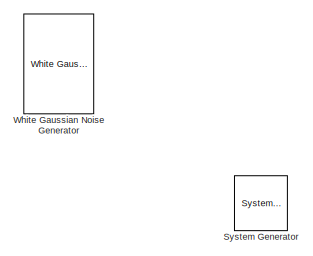
[diagram: root canvas - part 1/3, top left region]
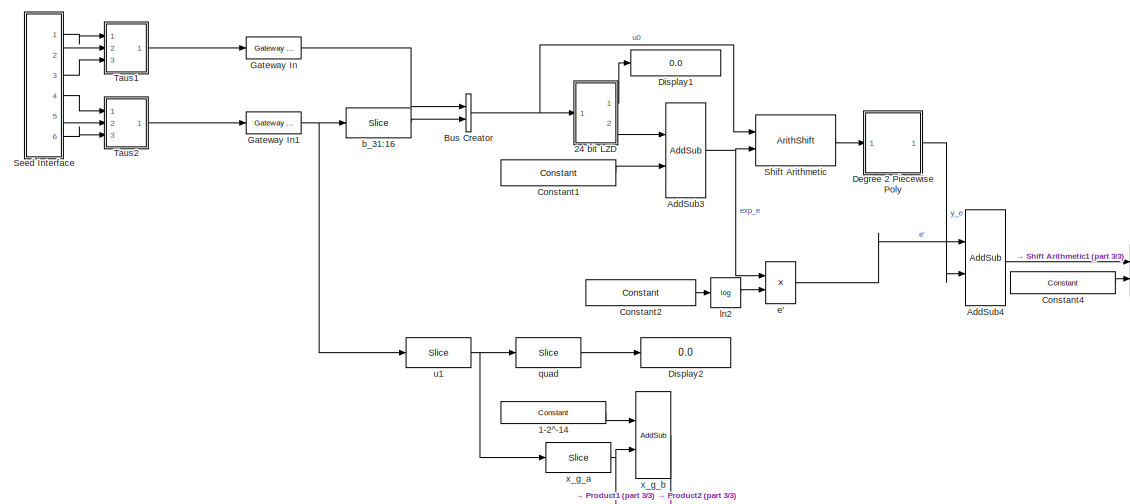
[diagram: root canvas - part 2/3, middle left region]
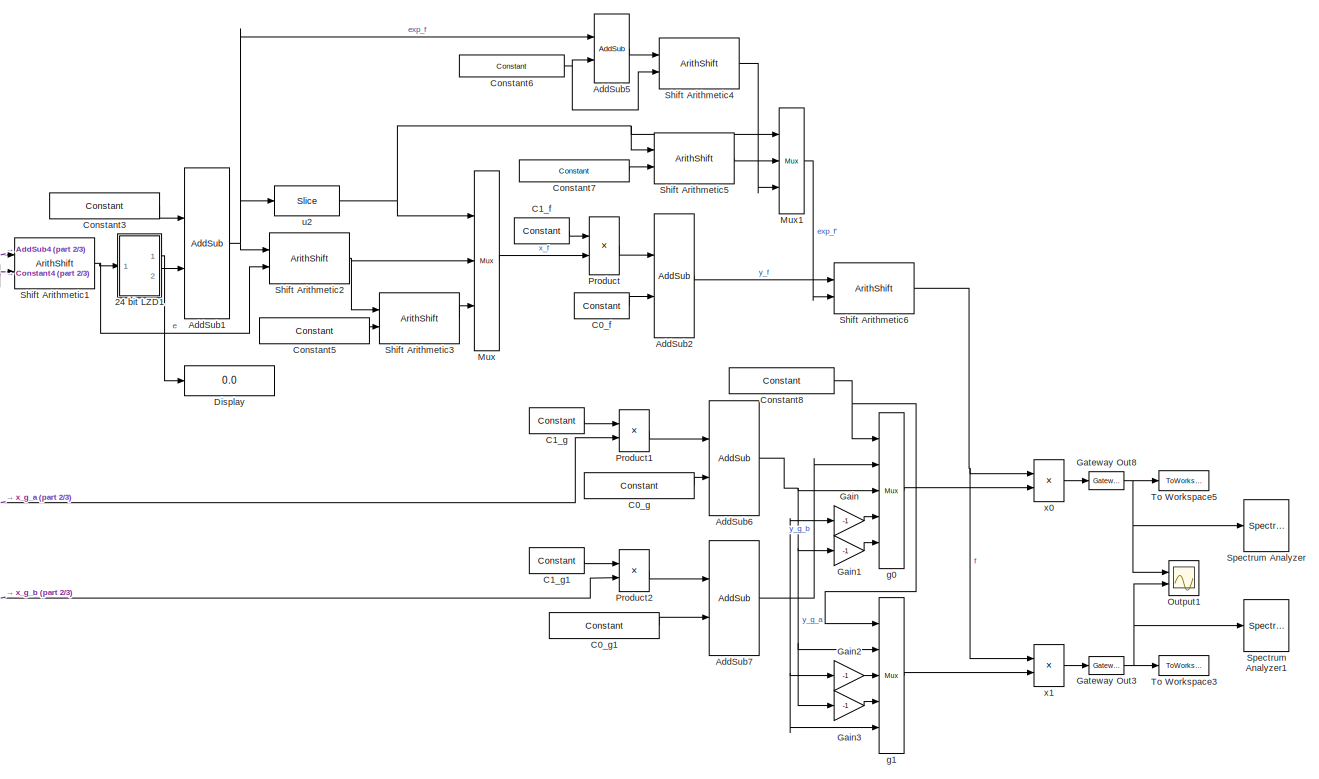
[diagram: root canvas - part 3/3, middle right region]
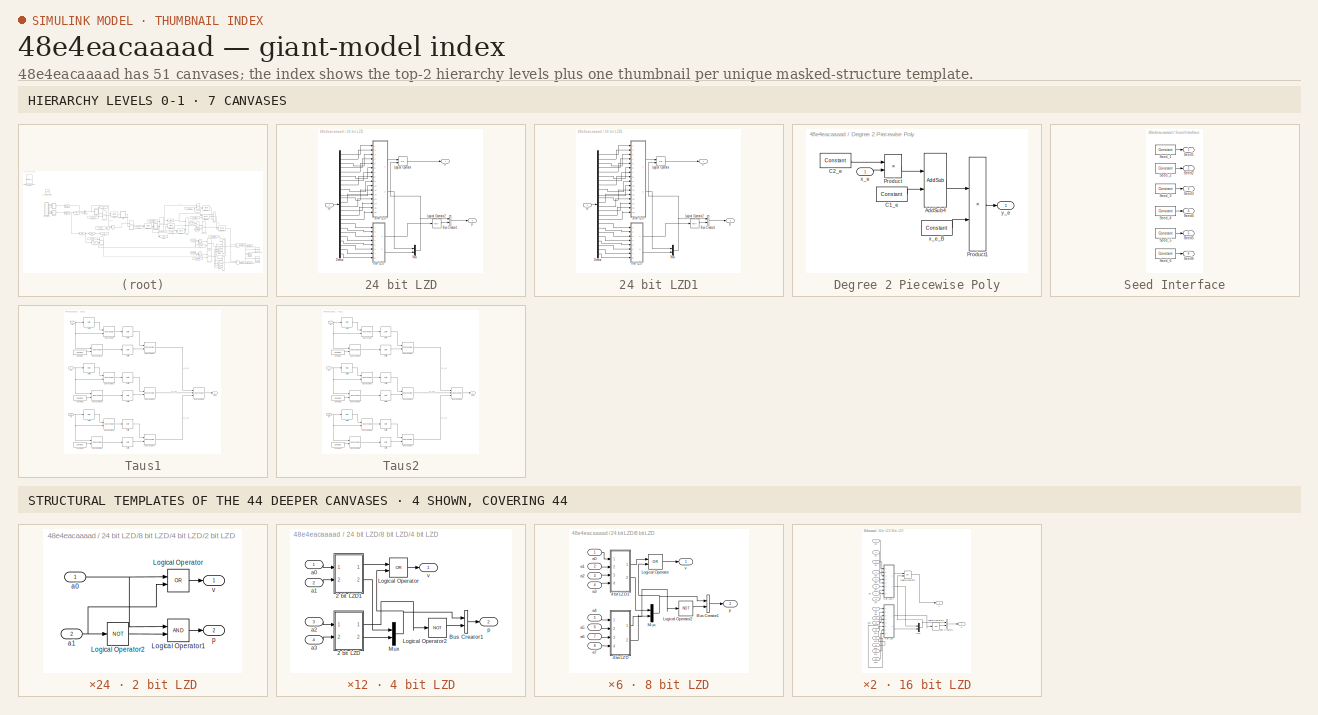
[diagram: thumbnail index - top-2 hierarchy levels (7 canvases) + 4 structural-template representatives of the remaining 44 canvases]
MODEL slx_48e4eacaaaad
KIND model
CONFIG AbsTol = auto
CONFIG FixedStep = auto
CONFIG InitFcn = Init
CONFIG MaxStep = auto
CONFIG MinStep = auto
CONFIG PreLoadFcn = Init
CONFIG RelTol = 1e-3
CONFIG SampleTimeConstraint = Unconstrained
CONFIG Solver = ode45
CONFIG SolverMode = Auto
CONFIG SolverName = ode45
CONFIG StartTime = 0.0
CONFIG StopTime = 10000
BLOCK [Reference]  System Generator  REF=xbsIndex_r4/ System Generator
  AttributesFormatString = System\nGenerator
  Impl_file = Vivado Implementation Defaults
  Ports = []
  SourceBlock = xbsIndex_r4/ System Generator
  SourceType = Xilinx System Generator Block
  Synth_file = Vivado Synthesis Defaults
  Tag = genX
  UserDataPersistent = on
  block_type = sysgen
  block_version = 12.2
  clock_wrapper = Clock Enables
  core_generation = According to Block Masks
  dbl_ovrd = According to Block Masks
  dcm_input_clock_period = 100
  deprecated_control = off
  directory = <path>
  eval_field = 0
  has_advanced_control = 0
  incr_netlist = off
  infoedit = System Generator
  package = fbg676
  part = xc7k325t
  proj_type = Project Navigator
  run_coregen = off
  sg_icon_stat = 53,55,0,0,token,white,0,58c5b5770fe5f7c311f53dbc6e73f0f6,right,,[ ],[ ]
  sg_mask_display = fprintf('','COMMENT: begin icon graphics');\npatch([0 53 53 0 0 ],[0 0 55 55 0 ],[1 1 1 ]);\npatch([2.6375 17.81 28.31 38.81 49.31 28.31 13.1375 2.6375 ],[38.655 38.655 49.155 38.655 49.155 49.155 49.155 38.655 ],[0.933333 0.203922 0.141176 ]);\npatch([13.1375 28.31 17.81 2.6375 13.1375 ],[28.155 28.155 38.655 38.655 28.155 ],[0.698039 0.0313725 0.219608 ]);\npatch([2.6375 17.81 28.31 13.1375 2.6375 ]...<+327ch>
  sggui_pos = 326,310,464,400
  simulink_period = 1
  speed = -3
  synthesis_tool = Vivado
  sysclk_period = 7.14
  testbench = off
  trim_vbits = According to Block Masks
  xilinxfamily = kintex7
BLOCK [Reference] 1-2^-14  REF=xbsIndex_r4/Constant
  Ports = [0, 1]
  SourceBlock = xbsIndex_r4/Constant
  SourceType = Xilinx Constant Block Block
  arith_type = Signed (2's comp)
  bin_pt = LUTPrecisionFrc
  block_type = constant
  block_version = 12.2
  carry = CIN
  const = 1-2^-14
  dbl_ovrd = off
  dsp48_infoedit = The use of this block for DSP48 instructions is deprecated.  Please use the Opmode block.
  equ = P=C
  exp_width = 8
  explicit_period = off
  frac_width = 24
  gui_display_data_type = Fixed-point
  has_advanced_control = 0
  inp1 = P
  inp2 = PCIN>>17
  n_bits = LUTPrecision
  opr = +
  opselect = C
  period = 1
  preci_type = Single
  sg_icon_stat = 105,22,0,1,white,blue,0,bfcc7c88,right,,[ ],[ ]
  sg_mask_display = fprintf('','COMMENT: begin icon graphics');\npatch([0 105 105 0 0 ],[0 0 22 22 0 ],[0.77 0.82 0.91 ]);\nplot([0 105 105 0 0 ],[0 0 22 22 0 ]);\npatch([45.325 49.66 52.66 55.66 58.66 52.66 48.325 45.325 ],[14.33 14.33 17.33 14.33 17.33 17.33 17.33 14.33 ],[1 1 1 ]);\npatch([48.325 52.66 49.66 45.325 48.325 ],[11.33 11.33 14.33 14.33 11.33 ],[0.931 0.946 0.973 ]);\npatch([45.325 49.66 52.66 48.325 45.325...<+336ch>
  sggui_pos = 158,593,414,392
BLOCK [SubSystem] 24 bit LZD
  Ports = [1, 2]
  RequestExecContextInheritance = off
BLOCK [SubSystem] 24 bit LZD/16 bit LZD
  Ports = [16, 2]
  RequestExecContextInheritance = off
BLOCK [SubSystem] 24 bit LZD/16 bit LZD/8 bit LZD
  Ports = [8, 2]
  RequestExecContextInheritance = off
BLOCK [SubSystem] 24 bit LZD/16 bit LZD/8 bit LZD/4 bit LZD
  Ports = [4, 2]
  RequestExecContextInheritance = off
BLOCK [SubSystem] 24 bit LZD/16 bit LZD/8 bit LZD/4 bit LZD/2 bit LZD
  Ports = [2, 2]
  RequestExecContextInheritance = off
BLOCK [Logic] 24 bit LZD/16 bit LZD/8 bit LZD/4 bit LZD/2 bit LZD/Logical Operator
  AllPortsSameDT = off
  IconShape = distinctive
  Operator = OR
  OutDataTypeStr = boolean
  Ports = [2, 1]
BLOCK [Logic] 24 bit LZD/16 bit LZD/8 bit LZD/4 bit LZD/2 bit LZD/Logical Operator1
  AllPortsSameDT = off
  IconShape = distinctive
  OutDataTypeStr = boolean
  Ports = [2, 1]
BLOCK [Logic] 24 bit LZD/16 bit LZD/8 bit LZD/4 bit LZD/2 bit LZD/Logical Operator2
  AllPortsSameDT = off
  IconShape = distinctive
  Operator = NOT
  OutDataTypeStr = boolean
  Ports = [1, 1]
BLOCK [Inport] 24 bit LZD/16 bit LZD/8 bit LZD/4 bit LZD/2 bit LZD/a0
  IconDisplay = Port number
BLOCK [Inport] 24 bit LZD/16 bit LZD/8 bit LZD/4 bit LZD/2 bit LZD/a1
  IconDisplay = Port number
  Port = 2
BLOCK [Outport] 24 bit LZD/16 bit LZD/8 bit LZD/4 bit LZD/2 bit LZD/p
  IconDisplay = Port number
  Port = 2
BLOCK [Outport] 24 bit LZD/16 bit LZD/8 bit LZD/4 bit LZD/2 bit LZD/v
  IconDisplay = Port number
BLOCK [SubSystem] 24 bit LZD/16 bit LZD/8 bit LZD/4 bit LZD/2 bit LZD1
  Ports = [2, 2]
  RequestExecContextInheritance = off
BLOCK [Logic] 24 bit LZD/16 bit LZD/8 bit LZD/4 bit LZD/2 bit LZD1/Logical Operator
  AllPortsSameDT = off
  IconShape = distinctive
  Operator = OR
  OutDataTypeStr = boolean
  Ports = [2, 1]
BLOCK [Logic] 24 bit LZD/16 bit LZD/8 bit LZD/4 bit LZD/2 bit LZD1/Logical Operator1
  AllPortsSameDT = off
  IconShape = distinctive
  OutDataTypeStr = boolean
  Ports = [2, 1]
BLOCK [Logic] 24 bit LZD/16 bit LZD/8 bit LZD/4 bit LZD/2 bit LZD1/Logical Operator2
  AllPortsSameDT = off
  IconShape = distinctive
  Operator = NOT
  OutDataTypeStr = boolean
  Ports = [1, 1]
BLOCK [Inport] 24 bit LZD/16 bit LZD/8 bit LZD/4 bit LZD/2 bit LZD1/a0
  IconDisplay = Port number
BLOCK [Inport] 24 bit LZD/16 bit LZD/8 bit LZD/4 bit LZD/2 bit LZD1/a1
  IconDisplay = Port number
  Port = 2
BLOCK [Outport] 24 bit LZD/16 bit LZD/8 bit LZD/4 bit LZD/2 bit LZD1/p
  IconDisplay = Port number
  Port = 2
BLOCK [Outport] 24 bit LZD/16 bit LZD/8 bit LZD/4 bit LZD/2 bit LZD1/v
  IconDisplay = Port number
BLOCK [BusCreator] 24 bit LZD/16 bit LZD/8 bit LZD/4 bit LZD/Bus Creator1
  DisplayOption = bar
  Inputs = 2
  Ports = [2, 1]
BLOCK [Logic] 24 bit LZD/16 bit LZD/8 bit LZD/4 bit LZD/Logical Operator
  AllPortsSameDT = off
  IconShape = distinctive
  Operator = OR
  OutDataTypeStr = boolean
  Ports = [2, 1]
BLOCK [Logic] 24 bit LZD/16 bit LZD/8 bit LZD/4 bit LZD/Logical Operator2
  AllPortsSameDT = off
  IconShape = distinctive
  Operator = NOT
  OutDataTypeStr = boolean
  Ports = [1, 1]
BLOCK [Mux] 24 bit LZD/16 bit LZD/8 bit LZD/4 bit LZD/Mux
  DisplayOption = bar
  Inputs = 2
  Ports = [2, 1]
BLOCK [Inport] 24 bit LZD/16 bit LZD/8 bit LZD/4 bit LZD/a0
  IconDisplay = Port number
BLOCK [Inport] 24 bit LZD/16 bit LZD/8 bit LZD/4 bit LZD/a1
  IconDisplay = Port number
  Port = 2
BLOCK [Inport] 24 bit LZD/16 bit LZD/8 bit LZD/4 bit LZD/a2
  IconDisplay = Port number
  Port = 3
BLOCK [Inport] 24 bit LZD/16 bit LZD/8 bit LZD/4 bit LZD/a3
  IconDisplay = Port number
  Port = 4
BLOCK [Outport] 24 bit LZD/16 bit LZD/8 bit LZD/4 bit LZD/p
  IconDisplay = Port number
  Port = 2
BLOCK [Outport] 24 bit LZD/16 bit LZD/8 bit LZD/4 bit LZD/v
  IconDisplay = Port number
BLOCK [SubSystem] 24 bit LZD/16 bit LZD/8 bit LZD/4 bit LZD1
  Ports = [4, 2]
  RequestExecContextInheritance = off
BLOCK [SubSystem] 24 bit LZD/16 bit LZD/8 bit LZD/4 bit LZD1/2 bit LZD
  Ports = [2, 2]
  RequestExecContextInheritance = off
BLOCK [Logic] 24 bit LZD/16 bit LZD/8 bit LZD/4 bit LZD1/2 bit LZD/Logical Operator
  AllPortsSameDT = off
  IconShape = distinctive
  Operator = OR
  OutDataTypeStr = boolean
  Ports = [2, 1]
BLOCK [Logic] 24 bit LZD/16 bit LZD/8 bit LZD/4 bit LZD1/2 bit LZD/Logical Operator1
  AllPortsSameDT = off
  IconShape = distinctive
  OutDataTypeStr = boolean
  Ports = [2, 1]
BLOCK [Logic] 24 bit LZD/16 bit LZD/8 bit LZD/4 bit LZD1/2 bit LZD/Logical Operator2
  AllPortsSameDT = off
  IconShape = distinctive
  Operator = NOT
  OutDataTypeStr = boolean
  Ports = [1, 1]
BLOCK [Inport] 24 bit LZD/16 bit LZD/8 bit LZD/4 bit LZD1/2 bit LZD/a0
  IconDisplay = Port number
BLOCK [Inport] 24 bit LZD/16 bit LZD/8 bit LZD/4 bit LZD1/2 bit LZD/a1
  IconDisplay = Port number
  Port = 2
BLOCK [Outport] 24 bit LZD/16 bit LZD/8 bit LZD/4 bit LZD1/2 bit LZD/p
  IconDisplay = Port number
  Port = 2
BLOCK [Outport] 24 bit LZD/16 bit LZD/8 bit LZD/4 bit LZD1/2 bit LZD/v
  IconDisplay = Port number
BLOCK [SubSystem] 24 bit LZD/16 bit LZD/8 bit LZD/4 bit LZD1/2 bit LZD1
  Ports = [2, 2]
  RequestExecContextInheritance = off
BLOCK [Logic] 24 bit LZD/16 bit LZD/8 bit LZD/4 bit LZD1/2 bit LZD1/Logical Operator
  AllPortsSameDT = off
  IconShape = distinctive
  Operator = OR
  OutDataTypeStr = boolean
  Ports = [2, 1]
BLOCK [Logic] 24 bit LZD/16 bit LZD/8 bit LZD/4 bit LZD1/2 bit LZD1/Logical Operator1
  AllPortsSameDT = off
  IconShape = distinctive
  OutDataTypeStr = boolean
  Ports = [2, 1]
BLOCK [Logic] 24 bit LZD/16 bit LZD/8 bit LZD/4 bit LZD1/2 bit LZD1/Logical Operator2
  AllPortsSameDT = off
  IconShape = distinctive
  Operator = NOT
  OutDataTypeStr = boolean
  Ports = [1, 1]
BLOCK [Inport] 24 bit LZD/16 bit LZD/8 bit LZD/4 bit LZD1/2 bit LZD1/a0
  IconDisplay = Port number
BLOCK [Inport] 24 bit LZD/16 bit LZD/8 bit LZD/4 bit LZD1/2 bit LZD1/a1
  IconDisplay = Port number
  Port = 2
BLOCK [Outport] 24 bit LZD/16 bit LZD/8 bit LZD/4 bit LZD1/2 bit LZD1/p
  IconDisplay = Port number
  Port = 2
BLOCK [Outport] 24 bit LZD/16 bit LZD/8 bit LZD/4 bit LZD1/2 bit LZD1/v
  IconDisplay = Port number
BLOCK [BusCreator] 24 bit LZD/16 bit LZD/8 bit LZD/4 bit LZD1/Bus Creator1
  DisplayOption = bar
  Inputs = 2
  Ports = [2, 1]
BLOCK [Logic] 24 bit LZD/16 bit LZD/8 bit LZD/4 bit LZD1/Logical Operator
  AllPortsSameDT = off
  IconShape = distinctive
  Operator = OR
  OutDataTypeStr = boolean
  Ports = [2, 1]
BLOCK [Logic] 24 bit LZD/16 bit LZD/8 bit LZD/4 bit LZD1/Logical Operator2
  AllPortsSameDT = off
  IconShape = distinctive
  Operator = NOT
  OutDataTypeStr = boolean
  Ports = [1, 1]
BLOCK [Mux] 24 bit LZD/16 bit LZD/8 bit LZD/4 bit LZD1/Mux
  DisplayOption = bar
  Inputs = 2
  Ports = [2, 1]
BLOCK [Inport] 24 bit LZD/16 bit LZD/8 bit LZD/4 bit LZD1/a0
  IconDisplay = Port number
BLOCK [Inport] 24 bit LZD/16 bit LZD/8 bit LZD/4 bit LZD1/a1
  IconDisplay = Port number
  Port = 2
BLOCK [Inport] 24 bit LZD/16 bit LZD/8 bit LZD/4 bit LZD1/a2
  IconDisplay = Port number
  Port = 3
BLOCK [Inport] 24 bit LZD/16 bit LZD/8 bit LZD/4 bit LZD1/a3
  IconDisplay = Port number
  Port = 4
BLOCK [Outport] 24 bit LZD/16 bit LZD/8 bit LZD/4 bit LZD1/p
  IconDisplay = Port number
  Port = 2
BLOCK [Outport] 24 bit LZD/16 bit LZD/8 bit LZD/4 bit LZD1/v
  IconDisplay = Port number
BLOCK [BusCreator] 24 bit LZD/16 bit LZD/8 bit LZD/Bus Creator1
  DisplayOption = bar
  Inputs = 2
  Ports = [2, 1]
BLOCK [Logic] 24 bit LZD/16 bit LZD/8 bit LZD/Logical Operator
  AllPortsSameDT = off
  IconShape = distinctive
  Operator = OR
  OutDataTypeStr = boolean
  Ports = [2, 1]
BLOCK [Logic] 24 bit LZD/16 bit LZD/8 bit LZD/Logical Operator2
  AllPortsSameDT = off
  IconShape = distinctive
  Operator = NOT
  OutDataTypeStr = boolean
  Ports = [1, 1]
BLOCK [Mux] 24 bit LZD/16 bit LZD/8 bit LZD/Mux
  DisplayOption = bar
  Inputs = 2
  Ports = [2, 1]
BLOCK [Inport] 24 bit LZD/16 bit LZD/8 bit LZD/a0
  IconDisplay = Port number
BLOCK [Inport] 24 bit LZD/16 bit LZD/8 bit LZD/a1
  IconDisplay = Port number
  Port = 2
BLOCK [Inport] 24 bit LZD/16 bit LZD/8 bit LZD/a2
  IconDisplay = Port number
  Port = 3
BLOCK [Inport] 24 bit LZD/16 bit LZD/8 bit LZD/a3
  IconDisplay = Port number
  Port = 4
BLOCK [Inport] 24 bit LZD/16 bit LZD/8 bit LZD/a4
  IconDisplay = Port number
  Port = 5
BLOCK [Inport] 24 bit LZD/16 bit LZD/8 bit LZD/a5
  IconDisplay = Port number
  Port = 6
BLOCK [Inport] 24 bit LZD/16 bit LZD/8 bit LZD/a6
  IconDisplay = Port number
  Port = 7
BLOCK [Inport] 24 bit LZD/16 bit LZD/8 bit LZD/a7
  IconDisplay = Port number
  Port = 8
BLOCK [Outport] 24 bit LZD/16 bit LZD/8 bit LZD/p
  IconDisplay = Port number
  Port = 2
BLOCK [Outport] 24 bit LZD/16 bit LZD/8 bit LZD/v
  IconDisplay = Port number
BLOCK [SubSystem] 24 bit LZD/16 bit LZD/8 bit LZD1
  Ports = [8, 2]
  RequestExecContextInheritance = off
BLOCK [SubSystem] 24 bit LZD/16 bit LZD/8 bit LZD1/4 bit LZD
  Ports = [4, 2]
  RequestExecContextInheritance = off
BLOCK [SubSystem] 24 bit LZD/16 bit LZD/8 bit LZD1/4 bit LZD/2 bit LZD
  Ports = [2, 2]
  RequestExecContextInheritance = off
BLOCK [Logic] 24 bit LZD/16 bit LZD/8 bit LZD1/4 bit LZD/2 bit LZD/Logical Operator
  AllPortsSameDT = off
  IconShape = distinctive
  Operator = OR
  OutDataTypeStr = boolean
  Ports = [2, 1]
BLOCK [Logic] 24 bit LZD/16 bit LZD/8 bit LZD1/4 bit LZD/2 bit LZD/Logical Operator1
  AllPortsSameDT = off
  IconShape = distinctive
  OutDataTypeStr = boolean
  Ports = [2, 1]
BLOCK [Logic] 24 bit LZD/16 bit LZD/8 bit LZD1/4 bit LZD/2 bit LZD/Logical Operator2
  AllPortsSameDT = off
  IconShape = distinctive
  Operator = NOT
  OutDataTypeStr = boolean
  Ports = [1, 1]
BLOCK [Inport] 24 bit LZD/16 bit LZD/8 bit LZD1/4 bit LZD/2 bit LZD/a0
  IconDisplay = Port number
BLOCK [Inport] 24 bit LZD/16 bit LZD/8 bit LZD1/4 bit LZD/2 bit LZD/a1
  IconDisplay = Port number
  Port = 2
BLOCK [Outport] 24 bit LZD/16 bit LZD/8 bit LZD1/4 bit LZD/2 bit LZD/p
  IconDisplay = Port number
  Port = 2
BLOCK [Outport] 24 bit LZD/16 bit LZD/8 bit LZD1/4 bit LZD/2 bit LZD/v
  IconDisplay = Port number
BLOCK [SubSystem] 24 bit LZD/16 bit LZD/8 bit LZD1/4 bit LZD/2 bit LZD1
  Ports = [2, 2]
  RequestExecContextInheritance = off
BLOCK [Logic] 24 bit LZD/16 bit LZD/8 bit LZD1/4 bit LZD/2 bit LZD1/Logical Operator
  AllPortsSameDT = off
  IconShape = distinctive
  Operator = OR
  OutDataTypeStr = boolean
  Ports = [2, 1]
BLOCK [Logic] 24 bit LZD/16 bit LZD/8 bit LZD1/4 bit LZD/2 bit LZD1/Logical Operator1
  AllPortsSameDT = off
  IconShape = distinctive
  OutDataTypeStr = boolean
  Ports = [2, 1]
BLOCK [Logic] 24 bit LZD/16 bit LZD/8 bit LZD1/4 bit LZD/2 bit LZD1/Logical Operator2
  AllPortsSameDT = off
  IconShape = distinctive
  Operator = NOT
  OutDataTypeStr = boolean
  Ports = [1, 1]
BLOCK [Inport] 24 bit LZD/16 bit LZD/8 bit LZD1/4 bit LZD/2 bit LZD1/a0
  IconDisplay = Port number
BLOCK [Inport] 24 bit LZD/16 bit LZD/8 bit LZD1/4 bit LZD/2 bit LZD1/a1
  IconDisplay = Port number
  Port = 2
BLOCK [Outport] 24 bit LZD/16 bit LZD/8 bit LZD1/4 bit LZD/2 bit LZD1/p
  IconDisplay = Port number
  Port = 2
BLOCK [Outport] 24 bit LZD/16 bit LZD/8 bit LZD1/4 bit LZD/2 bit LZD1/v
  IconDisplay = Port number
BLOCK [BusCreator] 24 bit LZD/16 bit LZD/8 bit LZD1/4 bit LZD/Bus Creator1
  DisplayOption = bar
  Inputs = 2
  Ports = [2, 1]
BLOCK [Logic] 24 bit LZD/16 bit LZD/8 bit LZD1/4 bit LZD/Logical Operator
  AllPortsSameDT = off
  IconShape = distinctive
  Operator = OR
  OutDataTypeStr = boolean
  Ports = [2, 1]
BLOCK [Logic] 24 bit LZD/16 bit LZD/8 bit LZD1/4 bit LZD/Logical Operator2
  AllPortsSameDT = off
  IconShape = distinctive
  Operator = NOT
  OutDataTypeStr = boolean
  Ports = [1, 1]
BLOCK [Mux] 24 bit LZD/16 bit LZD/8 bit LZD1/4 bit LZD/Mux
  DisplayOption = bar
  Inputs = 2
  Ports = [2, 1]
BLOCK [Inport] 24 bit LZD/16 bit LZD/8 bit LZD1/4 bit LZD/a0
  IconDisplay = Port number
BLOCK [Inport] 24 bit LZD/16 bit LZD/8 bit LZD1/4 bit LZD/a1
  IconDisplay = Port number
  Port = 2
BLOCK [Inport] 24 bit LZD/16 bit LZD/8 bit LZD1/4 bit LZD/a2
  IconDisplay = Port number
  Port = 3
BLOCK [Inport] 24 bit LZD/16 bit LZD/8 bit LZD1/4 bit LZD/a3
  IconDisplay = Port number
  Port = 4
BLOCK [Outport] 24 bit LZD/16 bit LZD/8 bit LZD1/4 bit LZD/p
  IconDisplay = Port number
  Port = 2
BLOCK [Outport] 24 bit LZD/16 bit LZD/8 bit LZD1/4 bit LZD/v
  IconDisplay = Port number
BLOCK [SubSystem] 24 bit LZD/16 bit LZD/8 bit LZD1/4 bit LZD1
  Ports = [4, 2]
  RequestExecContextInheritance = off
BLOCK [SubSystem] 24 bit LZD/16 bit LZD/8 bit LZD1/4 bit LZD1/2 bit LZD
  Ports = [2, 2]
  RequestExecContextInheritance = off
BLOCK [Logic] 24 bit LZD/16 bit LZD/8 bit LZD1/4 bit LZD1/2 bit LZD/Logical Operator
  AllPortsSameDT = off
  IconShape = distinctive
  Operator = OR
  OutDataTypeStr = boolean
  Ports = [2, 1]
BLOCK [Logic] 24 bit LZD/16 bit LZD/8 bit LZD1/4 bit LZD1/2 bit LZD/Logical Operator1
  AllPortsSameDT = off
  IconShape = distinctive
  OutDataTypeStr = boolean
  Ports = [2, 1]
BLOCK [Logic] 24 bit LZD/16 bit LZD/8 bit LZD1/4 bit LZD1/2 bit LZD/Logical Operator2
  AllPortsSameDT = off
  IconShape = distinctive
  Operator = NOT
  OutDataTypeStr = boolean
  Ports = [1, 1]
BLOCK [Inport] 24 bit LZD/16 bit LZD/8 bit LZD1/4 bit LZD1/2 bit LZD/a0
  IconDisplay = Port number
BLOCK [Inport] 24 bit LZD/16 bit LZD/8 bit LZD1/4 bit LZD1/2 bit LZD/a1
  IconDisplay = Port number
  Port = 2
BLOCK [Outport] 24 bit LZD/16 bit LZD/8 bit LZD1/4 bit LZD1/2 bit LZD/p
  IconDisplay = Port number
  Port = 2
BLOCK [Outport] 24 bit LZD/16 bit LZD/8 bit LZD1/4 bit LZD1/2 bit LZD/v
  IconDisplay = Port number
BLOCK [SubSystem] 24 bit LZD/16 bit LZD/8 bit LZD1/4 bit LZD1/2 bit LZD1
  Ports = [2, 2]
  RequestExecContextInheritance = off
BLOCK [Logic] 24 bit LZD/16 bit LZD/8 bit LZD1/4 bit LZD1/2 bit LZD1/Logical Operator
  AllPortsSameDT = off
  IconShape = distinctive
  Operator = OR
  OutDataTypeStr = boolean
  Ports = [2, 1]
BLOCK [Logic] 24 bit LZD/16 bit LZD/8 bit LZD1/4 bit LZD1/2 bit LZD1/Logical Operator1
  AllPortsSameDT = off
  IconShape = distinctive
  OutDataTypeStr = boolean
  Ports = [2, 1]
BLOCK [Logic] 24 bit LZD/16 bit LZD/8 bit LZD1/4 bit LZD1/2 bit LZD1/Logical Operator2
  AllPortsSameDT = off
  IconShape = distinctive
  Operator = NOT
  OutDataTypeStr = boolean
  Ports = [1, 1]
BLOCK [Inport] 24 bit LZD/16 bit LZD/8 bit LZD1/4 bit LZD1/2 bit LZD1/a0
  IconDisplay = Port number
BLOCK [Inport] 24 bit LZD/16 bit LZD/8 bit LZD1/4 bit LZD1/2 bit LZD1/a1
  IconDisplay = Port number
  Port = 2
BLOCK [Outport] 24 bit LZD/16 bit LZD/8 bit LZD1/4 bit LZD1/2 bit LZD1/p
  IconDisplay = Port number
  Port = 2
BLOCK [Outport] 24 bit LZD/16 bit LZD/8 bit LZD1/4 bit LZD1/2 bit LZD1/v
  IconDisplay = Port number
BLOCK [BusCreator] 24 bit LZD/16 bit LZD/8 bit LZD1/4 bit LZD1/Bus Creator1
  DisplayOption = bar
  Inputs = 2
  Ports = [2, 1]
BLOCK [Logic] 24 bit LZD/16 bit LZD/8 bit LZD1/4 bit LZD1/Logical Operator
  AllPortsSameDT = off
  IconShape = distinctive
  Operator = OR
  OutDataTypeStr = boolean
  Ports = [2, 1]
BLOCK [Logic] 24 bit LZD/16 bit LZD/8 bit LZD1/4 bit LZD1/Logical Operator2
  AllPortsSameDT = off
  IconShape = distinctive
  Operator = NOT
  OutDataTypeStr = boolean
  Ports = [1, 1]
BLOCK [Mux] 24 bit LZD/16 bit LZD/8 bit LZD1/4 bit LZD1/Mux
  DisplayOption = bar
  Inputs = 2
  Ports = [2, 1]
BLOCK [Inport] 24 bit LZD/16 bit LZD/8 bit LZD1/4 bit LZD1/a0
  IconDisplay = Port number
BLOCK [Inport] 24 bit LZD/16 bit LZD/8 bit LZD1/4 bit LZD1/a1
  IconDisplay = Port number
  Port = 2
BLOCK [Inport] 24 bit LZD/16 bit LZD/8 bit LZD1/4 bit LZD1/a2
  IconDisplay = Port number
  Port = 3
BLOCK [Inport] 24 bit LZD/16 bit LZD/8 bit LZD1/4 bit LZD1/a3
  IconDisplay = Port number
  Port = 4
BLOCK [Outport] 24 bit LZD/16 bit LZD/8 bit LZD1/4 bit LZD1/p
  IconDisplay = Port number
  Port = 2
BLOCK [Outport] 24 bit LZD/16 bit LZD/8 bit LZD1/4 bit LZD1/v
  IconDisplay = Port number
BLOCK [BusCreator] 24 bit LZD/16 bit LZD/8 bit LZD1/Bus Creator1
  DisplayOption = bar
  Inputs = 2
  Ports = [2, 1]
BLOCK [Logic] 24 bit LZD/16 bit LZD/8 bit LZD1/Logical Operator
  AllPortsSameDT = off
  IconShape = distinctive
  Operator = OR
  OutDataTypeStr = boolean
  Ports = [2, 1]
BLOCK [Logic] 24 bit LZD/16 bit LZD/8 bit LZD1/Logical Operator2
  AllPortsSameDT = off
  IconShape = distinctive
  Operator = NOT
  OutDataTypeStr = boolean
  Ports = [1, 1]
BLOCK [Mux] 24 bit LZD/16 bit LZD/8 bit LZD1/Mux
  DisplayOption = bar
  Inputs = 2
  Ports = [2, 1]
BLOCK [Inport] 24 bit LZD/16 bit LZD/8 bit LZD1/a0
  IconDisplay = Port number
BLOCK [Inport] 24 bit LZD/16 bit LZD/8 bit LZD1/a1
  IconDisplay = Port number
  Port = 2
BLOCK [Inport] 24 bit LZD/16 bit LZD/8 bit LZD1/a2
  IconDisplay = Port number
  Port = 3
BLOCK [Inport] 24 bit LZD/16 bit LZD/8 bit LZD1/a3
  IconDisplay = Port number
  Port = 4
BLOCK [Inport] 24 bit LZD/16 bit LZD/8 bit LZD1/a4
  IconDisplay = Port number
  Port = 5
BLOCK [Inport] 24 bit LZD/16 bit LZD/8 bit LZD1/a5
  IconDisplay = Port number
  Port = 6
BLOCK [Inport] 24 bit LZD/16 bit LZD/8 bit LZD1/a6
  IconDisplay = Port number
  Port = 7
BLOCK [Inport] 24 bit LZD/16 bit LZD/8 bit LZD1/a7
  IconDisplay = Port number
  Port = 8
BLOCK [Outport] 24 bit LZD/16 bit LZD/8 bit LZD1/p
  IconDisplay = Port number
  Port = 2
BLOCK [Outport] 24 bit LZD/16 bit LZD/8 bit LZD1/v
  IconDisplay = Port number
BLOCK [BusCreator] 24 bit LZD/16 bit LZD/Bus Creator1
  DisplayOption = bar
  Inputs = 2
  Ports = [2, 1]
BLOCK [Logic] 24 bit LZD/16 bit LZD/Logical Operator
  AllPortsSameDT = off
  IconShape = distinctive
  Operator = OR
  OutDataTypeStr = boolean
  Ports = [2, 1]
BLOCK [Logic] 24 bit LZD/16 bit LZD/Logical Operator2
  AllPortsSameDT = off
  IconShape = distinctive
  Operator = NOT
  OutDataTypeStr = boolean
  Ports = [1, 1]
BLOCK [Mux] 24 bit LZD/16 bit LZD/Mux
  DisplayOption = bar
  Inputs = 2
  Ports = [2, 1]
BLOCK [Inport] 24 bit LZD/16 bit LZD/a0
  IconDisplay = Port number
BLOCK [Inport] 24 bit LZD/16 bit LZD/a1
  IconDisplay = Port number
  Port = 2
BLOCK [Inport] 24 bit LZD/16 bit LZD/a10
  IconDisplay = Port number
  Port = 11
BLOCK [Inport] 24 bit LZD/16 bit LZD/a11
  IconDisplay = Port number
  Port = 12
BLOCK [Inport] 24 bit LZD/16 bit LZD/a12
  IconDisplay = Port number
  Port = 13
BLOCK [Inport] 24 bit LZD/16 bit LZD/a13
  IconDisplay = Port number
  Port = 14
BLOCK [Inport] 24 bit LZD/16 bit LZD/a14
  IconDisplay = Port number
  Port = 15
BLOCK [Inport] 24 bit LZD/16 bit LZD/a15
  IconDisplay = Port number
  Port = 16
BLOCK [Inport] 24 bit LZD/16 bit LZD/a2
  IconDisplay = Port number
  Port = 3
BLOCK [Inport] 24 bit LZD/16 bit LZD/a3
  IconDisplay = Port number
  Port = 4
BLOCK [Inport] 24 bit LZD/16 bit LZD/a4
  IconDisplay = Port number
  Port = 5
BLOCK [Inport] 24 bit LZD/16 bit LZD/a5
  IconDisplay = Port number
  Port = 6
BLOCK [Inport] 24 bit LZD/16 bit LZD/a6
  IconDisplay = Port number
  Port = 7
BLOCK [Inport] 24 bit LZD/16 bit LZD/a7
  IconDisplay = Port number
  Port = 8
BLOCK [Inport] 24 bit LZD/16 bit LZD/a8
  IconDisplay = Port number
  Port = 9
BLOCK [Inport] 24 bit LZD/16 bit LZD/a9
  IconDisplay = Port number
  Port = 10
BLOCK [Outport] 24 bit LZD/16 bit LZD/p
  IconDisplay = Port number
  Port = 2
BLOCK [Outport] 24 bit LZD/16 bit LZD/v
  IconDisplay = Port number
BLOCK [SubSystem] 24 bit LZD/8 bit LZD
  Ports = [8, 2]
  RequestExecContextInheritance = off
BLOCK [SubSystem] 24 bit LZD/8 bit LZD/4 bit LZD
  Ports = [4, 2]
  RequestExecContextInheritance = off
BLOCK [SubSystem] 24 bit LZD/8 bit LZD/4 bit LZD/2 bit LZD
  Ports = [2, 2]
  RequestExecContextInheritance = off
BLOCK [Logic] 24 bit LZD/8 bit LZD/4 bit LZD/2 bit LZD/Logical Operator
  AllPortsSameDT = off
  IconShape = distinctive
  Operator = OR
  OutDataTypeStr = boolean
  Ports = [2, 1]
BLOCK [Logic] 24 bit LZD/8 bit LZD/4 bit LZD/2 bit LZD/Logical Operator1
  AllPortsSameDT = off
  IconShape = distinctive
  OutDataTypeStr = boolean
  Ports = [2, 1]
BLOCK [Logic] 24 bit LZD/8 bit LZD/4 bit LZD/2 bit LZD/Logical Operator2
  AllPortsSameDT = off
  IconShape = distinctive
  Operator = NOT
  OutDataTypeStr = boolean
  Ports = [1, 1]
BLOCK [Inport] 24 bit LZD/8 bit LZD/4 bit LZD/2 bit LZD/a0
  IconDisplay = Port number
BLOCK [Inport] 24 bit LZD/8 bit LZD/4 bit LZD/2 bit LZD/a1
  IconDisplay = Port number
  Port = 2
BLOCK [Outport] 24 bit LZD/8 bit LZD/4 bit LZD/2 bit LZD/p
  IconDisplay = Port number
  Port = 2
BLOCK [Outport] 24 bit LZD/8 bit LZD/4 bit LZD/2 bit LZD/v
  IconDisplay = Port number
BLOCK [SubSystem] 24 bit LZD/8 bit LZD/4 bit LZD/2 bit LZD1
  Ports = [2, 2]
  RequestExecContextInheritance = off
BLOCK [Logic] 24 bit LZD/8 bit LZD/4 bit LZD/2 bit LZD1/Logical Operator
  AllPortsSameDT = off
  IconShape = distinctive
  Operator = OR
  OutDataTypeStr = boolean
  Ports = [2, 1]
BLOCK [Logic] 24 bit LZD/8 bit LZD/4 bit LZD/2 bit LZD1/Logical Operator1
  AllPortsSameDT = off
  IconShape = distinctive
  OutDataTypeStr = boolean
  Ports = [2, 1]
BLOCK [Logic] 24 bit LZD/8 bit LZD/4 bit LZD/2 bit LZD1/Logical Operator2
  AllPortsSameDT = off
  IconShape = distinctive
  Operator = NOT
  OutDataTypeStr = boolean
  Ports = [1, 1]
BLOCK [Inport] 24 bit LZD/8 bit LZD/4 bit LZD/2 bit LZD1/a0
  IconDisplay = Port number
BLOCK [Inport] 24 bit LZD/8 bit LZD/4 bit LZD/2 bit LZD1/a1
  IconDisplay = Port number
  Port = 2
BLOCK [Outport] 24 bit LZD/8 bit LZD/4 bit LZD/2 bit LZD1/p
  IconDisplay = Port number
  Port = 2
BLOCK [Outport] 24 bit LZD/8 bit LZD/4 bit LZD/2 bit LZD1/v
  IconDisplay = Port number
BLOCK [BusCreator] 24 bit LZD/8 bit LZD/4 bit LZD/Bus Creator1
  DisplayOption = bar
  Inputs = 2
  Ports = [2, 1]
BLOCK [Logic] 24 bit LZD/8 bit LZD/4 bit LZD/Logical Operator
  AllPortsSameDT = off
  IconShape = distinctive
  Operator = OR
  OutDataTypeStr = boolean
  Ports = [2, 1]
BLOCK [Logic] 24 bit LZD/8 bit LZD/4 bit LZD/Logical Operator2
  AllPortsSameDT = off
  IconShape = distinctive
  Operator = NOT
  OutDataTypeStr = boolean
  Ports = [1, 1]
BLOCK [Mux] 24 bit LZD/8 bit LZD/4 bit LZD/Mux
  DisplayOption = bar
  Inputs = 2
  Ports = [2, 1]
BLOCK [Inport] 24 bit LZD/8 bit LZD/4 bit LZD/a0
  IconDisplay = Port number
BLOCK [Inport] 24 bit LZD/8 bit LZD/4 bit LZD/a1
  IconDisplay = Port number
  Port = 2
BLOCK [Inport] 24 bit LZD/8 bit LZD/4 bit LZD/a2
  IconDisplay = Port number
  Port = 3
BLOCK [Inport] 24 bit LZD/8 bit LZD/4 bit LZD/a3
  IconDisplay = Port number
  Port = 4
BLOCK [Outport] 24 bit LZD/8 bit LZD/4 bit LZD/p
  IconDisplay = Port number
  Port = 2
BLOCK [Outport] 24 bit LZD/8 bit LZD/4 bit LZD/v
  IconDisplay = Port number
BLOCK [SubSystem] 24 bit LZD/8 bit LZD/4 bit LZD1
  Ports = [4, 2]
  RequestExecContextInheritance = off
BLOCK [SubSystem] 24 bit LZD/8 bit LZD/4 bit LZD1/2 bit LZD
  Ports = [2, 2]
  RequestExecContextInheritance = off
BLOCK [Logic] 24 bit LZD/8 bit LZD/4 bit LZD1/2 bit LZD/Logical Operator
  AllPortsSameDT = off
  IconShape = distinctive
  Operator = OR
  OutDataTypeStr = boolean
  Ports = [2, 1]
BLOCK [Logic] 24 bit LZD/8 bit LZD/4 bit LZD1/2 bit LZD/Logical Operator1
  AllPortsSameDT = off
  IconShape = distinctive
  OutDataTypeStr = boolean
  Ports = [2, 1]
BLOCK [Logic] 24 bit LZD/8 bit LZD/4 bit LZD1/2 bit LZD/Logical Operator2
  AllPortsSameDT = off
  IconShape = distinctive
  Operator = NOT
  OutDataTypeStr = boolean
  Ports = [1, 1]
BLOCK [Inport] 24 bit LZD/8 bit LZD/4 bit LZD1/2 bit LZD/a0
  IconDisplay = Port number
BLOCK [Inport] 24 bit LZD/8 bit LZD/4 bit LZD1/2 bit LZD/a1
  IconDisplay = Port number
  Port = 2
BLOCK [Outport] 24 bit LZD/8 bit LZD/4 bit LZD1/2 bit LZD/p
  IconDisplay = Port number
  Port = 2
BLOCK [Outport] 24 bit LZD/8 bit LZD/4 bit LZD1/2 bit LZD/v
  IconDisplay = Port number
BLOCK [SubSystem] 24 bit LZD/8 bit LZD/4 bit LZD1/2 bit LZD1
  Ports = [2, 2]
  RequestExecContextInheritance = off
BLOCK [Logic] 24 bit LZD/8 bit LZD/4 bit LZD1/2 bit LZD1/Logical Operator
  AllPortsSameDT = off
  IconShape = distinctive
  Operator = OR
  OutDataTypeStr = boolean
  Ports = [2, 1]
BLOCK [Logic] 24 bit LZD/8 bit LZD/4 bit LZD1/2 bit LZD1/Logical Operator1
  AllPortsSameDT = off
  IconShape = distinctive
  OutDataTypeStr = boolean
  Ports = [2, 1]
BLOCK [Logic] 24 bit LZD/8 bit LZD/4 bit LZD1/2 bit LZD1/Logical Operator2
  AllPortsSameDT = off
  IconShape = distinctive
  Operator = NOT
  OutDataTypeStr = boolean
  Ports = [1, 1]
BLOCK [Inport] 24 bit LZD/8 bit LZD/4 bit LZD1/2 bit LZD1/a0
  IconDisplay = Port number
BLOCK [Inport] 24 bit LZD/8 bit LZD/4 bit LZD1/2 bit LZD1/a1
  IconDisplay = Port number
  Port = 2
BLOCK [Outport] 24 bit LZD/8 bit LZD/4 bit LZD1/2 bit LZD1/p
  IconDisplay = Port number
  Port = 2
BLOCK [Outport] 24 bit LZD/8 bit LZD/4 bit LZD1/2 bit LZD1/v
  IconDisplay = Port number
BLOCK [BusCreator] 24 bit LZD/8 bit LZD/4 bit LZD1/Bus Creator1
  DisplayOption = bar
  Inputs = 2
  Ports = [2, 1]
BLOCK [Logic] 24 bit LZD/8 bit LZD/4 bit LZD1/Logical Operator
  AllPortsSameDT = off
  IconShape = distinctive
  Operator = OR
  OutDataTypeStr = boolean
  Ports = [2, 1]
BLOCK [Logic] 24 bit LZD/8 bit LZD/4 bit LZD1/Logical Operator2
  AllPortsSameDT = off
  IconShape = distinctive
  Operator = NOT
  OutDataTypeStr = boolean
  Ports = [1, 1]
BLOCK [Mux] 24 bit LZD/8 bit LZD/4 bit LZD1/Mux
  DisplayOption = bar
  Inputs = 2
  Ports = [2, 1]
BLOCK [Inport] 24 bit LZD/8 bit LZD/4 bit LZD1/a0
  IconDisplay = Port number
BLOCK [Inport] 24 bit LZD/8 bit LZD/4 bit LZD1/a1
  IconDisplay = Port number
  Port = 2
BLOCK [Inport] 24 bit LZD/8 bit LZD/4 bit LZD1/a2
  IconDisplay = Port number
  Port = 3
BLOCK [Inport] 24 bit LZD/8 bit LZD/4 bit LZD1/a3
  IconDisplay = Port number
  Port = 4
BLOCK [Outport] 24 bit LZD/8 bit LZD/4 bit LZD1/p
  IconDisplay = Port number
  Port = 2
BLOCK [Outport] 24 bit LZD/8 bit LZD/4 bit LZD1/v
  IconDisplay = Port number
BLOCK [BusCreator] 24 bit LZD/8 bit LZD/Bus Creator1
  DisplayOption = bar
  Inputs = 2
  Ports = [2, 1]
BLOCK [Logic] 24 bit LZD/8 bit LZD/Logical Operator
  AllPortsSameDT = off
  IconShape = distinctive
  Operator = OR
  OutDataTypeStr = boolean
  Ports = [2, 1]
BLOCK [Logic] 24 bit LZD/8 bit LZD/Logical Operator2
  AllPortsSameDT = off
  IconShape = distinctive
  Operator = NOT
  OutDataTypeStr = boolean
  Ports = [1, 1]
BLOCK [Mux] 24 bit LZD/8 bit LZD/Mux
  DisplayOption = bar
  Inputs = 2
  Ports = [2, 1]
BLOCK [Inport] 24 bit LZD/8 bit LZD/a0
  IconDisplay = Port number
BLOCK [Inport] 24 bit LZD/8 bit LZD/a1
  IconDisplay = Port number
  Port = 2
BLOCK [Inport] 24 bit LZD/8 bit LZD/a2
  IconDisplay = Port number
  Port = 3
BLOCK [Inport] 24 bit LZD/8 bit LZD/a3
  IconDisplay = Port number
  Port = 4
BLOCK [Inport] 24 bit LZD/8 bit LZD/a4
  IconDisplay = Port number
  Port = 5
BLOCK [Inport] 24 bit LZD/8 bit LZD/a5
  IconDisplay = Port number
  Port = 6
BLOCK [Inport] 24 bit LZD/8 bit LZD/a6
  IconDisplay = Port number
  Port = 7
BLOCK [Inport] 24 bit LZD/8 bit LZD/a7
  IconDisplay = Port number
  Port = 8
BLOCK [Outport] 24 bit LZD/8 bit LZD/p
  IconDisplay = Port number
  Port = 2
BLOCK [Outport] 24 bit LZD/8 bit LZD/v
  IconDisplay = Port number
BLOCK [BusCreator] 24 bit LZD/Bus Creator1
  DisplayOption = bar
  Inputs = 2
  Ports = [2, 1]
BLOCK [Demux] 24 bit LZD/Demux
  DisplayOption = bar
  Outputs = 24
  Ports = [1, 24]
BLOCK [Inport] 24 bit LZD/In
  IconDisplay = Port number
BLOCK [Logic] 24 bit LZD/Logical Operator
  AllPortsSameDT = off
  IconShape = distinctive
  Operator = OR
  OutDataTypeStr = boolean
  Ports = [2, 1]
BLOCK [Logic] 24 bit LZD/Logical Operator2
  AllPortsSameDT = off
  IconShape = distinctive
  Operator = NOT
  OutDataTypeStr = boolean
  Ports = [1, 1]
BLOCK [Mux] 24 bit LZD/Mux
  DisplayOption = bar
  Inputs = 2
  Ports = [2, 1]
BLOCK [Outport] 24 bit LZD/p
  IconDisplay = Port number
  Port = 2
BLOCK [Outport] 24 bit LZD/v
  IconDisplay = Port number
BLOCK [SubSystem] 24 bit LZD1
  Ports = [1, 2]
  RequestExecContextInheritance = off
BLOCK [SubSystem] 24 bit LZD1/16 bit LZD
  Ports = [16, 2]
  RequestExecContextInheritance = off
BLOCK [SubSystem] 24 bit LZD1/16 bit LZD/8 bit LZD
  Ports = [8, 2]
  RequestExecContextInheritance = off
BLOCK [SubSystem] 24 bit LZD1/16 bit LZD/8 bit LZD/4 bit LZD
  Ports = [4, 2]
  RequestExecContextInheritance = off
BLOCK [SubSystem] 24 bit LZD1/16 bit LZD/8 bit LZD/4 bit LZD/2 bit LZD
  Ports = [2, 2]
  RequestExecContextInheritance = off
BLOCK [Logic] 24 bit LZD1/16 bit LZD/8 bit LZD/4 bit LZD/2 bit LZD/Logical Operator
  AllPortsSameDT = off
  IconShape = distinctive
  Operator = OR
  OutDataTypeStr = boolean
  Ports = [2, 1]
BLOCK [Logic] 24 bit LZD1/16 bit LZD/8 bit LZD/4 bit LZD/2 bit LZD/Logical Operator1
  AllPortsSameDT = off
  IconShape = distinctive
  OutDataTypeStr = boolean
  Ports = [2, 1]
BLOCK [Logic] 24 bit LZD1/16 bit LZD/8 bit LZD/4 bit LZD/2 bit LZD/Logical Operator2
  AllPortsSameDT = off
  IconShape = distinctive
  Operator = NOT
  OutDataTypeStr = boolean
  Ports = [1, 1]
BLOCK [Inport] 24 bit LZD1/16 bit LZD/8 bit LZD/4 bit LZD/2 bit LZD/a0
  IconDisplay = Port number
BLOCK [Inport] 24 bit LZD1/16 bit LZD/8 bit LZD/4 bit LZD/2 bit LZD/a1
  IconDisplay = Port number
  Port = 2
BLOCK [Outport] 24 bit LZD1/16 bit LZD/8 bit LZD/4 bit LZD/2 bit LZD/p
  IconDisplay = Port number
  Port = 2
BLOCK [Outport] 24 bit LZD1/16 bit LZD/8 bit LZD/4 bit LZD/2 bit LZD/v
  IconDisplay = Port number
BLOCK [SubSystem] 24 bit LZD1/16 bit LZD/8 bit LZD/4 bit LZD/2 bit LZD1
  Ports = [2, 2]
  RequestExecContextInheritance = off
BLOCK [Logic] 24 bit LZD1/16 bit LZD/8 bit LZD/4 bit LZD/2 bit LZD1/Logical Operator
  AllPortsSameDT = off
  IconShape = distinctive
  Operator = OR
  OutDataTypeStr = boolean
  Ports = [2, 1]
BLOCK [Logic] 24 bit LZD1/16 bit LZD/8 bit LZD/4 bit LZD/2 bit LZD1/Logical Operator1
  AllPortsSameDT = off
  IconShape = distinctive
  OutDataTypeStr = boolean
  Ports = [2, 1]
BLOCK [Logic] 24 bit LZD1/16 bit LZD/8 bit LZD/4 bit LZD/2 bit LZD1/Logical Operator2
  AllPortsSameDT = off
  IconShape = distinctive
  Operator = NOT
  OutDataTypeStr = boolean
  Ports = [1, 1]
BLOCK [Inport] 24 bit LZD1/16 bit LZD/8 bit LZD/4 bit LZD/2 bit LZD1/a0
  IconDisplay = Port number
BLOCK [Inport] 24 bit LZD1/16 bit LZD/8 bit LZD/4 bit LZD/2 bit LZD1/a1
  IconDisplay = Port number
  Port = 2
BLOCK [Outport] 24 bit LZD1/16 bit LZD/8 bit LZD/4 bit LZD/2 bit LZD1/p
  IconDisplay = Port number
  Port = 2
BLOCK [Outport] 24 bit LZD1/16 bit LZD/8 bit LZD/4 bit LZD/2 bit LZD1/v
  IconDisplay = Port number
BLOCK [BusCreator] 24 bit LZD1/16 bit LZD/8 bit LZD/4 bit LZD/Bus Creator1
  DisplayOption = bar
  Inputs = 2
  Ports = [2, 1]
BLOCK [Logic] 24 bit LZD1/16 bit LZD/8 bit LZD/4 bit LZD/Logical Operator
  AllPortsSameDT = off
  IconShape = distinctive
  Operator = OR
  OutDataTypeStr = boolean
  Ports = [2, 1]
BLOCK [Logic] 24 bit LZD1/16 bit LZD/8 bit LZD/4 bit LZD/Logical Operator2
  AllPortsSameDT = off
  IconShape = distinctive
  Operator = NOT
  OutDataTypeStr = boolean
  Ports = [1, 1]
BLOCK [Mux] 24 bit LZD1/16 bit LZD/8 bit LZD/4 bit LZD/Mux
  DisplayOption = bar
  Inputs = 2
  Ports = [2, 1]
BLOCK [Inport] 24 bit LZD1/16 bit LZD/8 bit LZD/4 bit LZD/a0
  IconDisplay = Port number
BLOCK [Inport] 24 bit LZD1/16 bit LZD/8 bit LZD/4 bit LZD/a1
  IconDisplay = Port number
  Port = 2
BLOCK [Inport] 24 bit LZD1/16 bit LZD/8 bit LZD/4 bit LZD/a2
  IconDisplay = Port number
  Port = 3
BLOCK [Inport] 24 bit LZD1/16 bit LZD/8 bit LZD/4 bit LZD/a3
  IconDisplay = Port number
  Port = 4
BLOCK [Outport] 24 bit LZD1/16 bit LZD/8 bit LZD/4 bit LZD/p
  IconDisplay = Port number
  Port = 2
BLOCK [Outport] 24 bit LZD1/16 bit LZD/8 bit LZD/4 bit LZD/v
  IconDisplay = Port number
BLOCK [SubSystem] 24 bit LZD1/16 bit LZD/8 bit LZD/4 bit LZD1
  Ports = [4, 2]
  RequestExecContextInheritance = off
BLOCK [SubSystem] 24 bit LZD1/16 bit LZD/8 bit LZD/4 bit LZD1/2 bit LZD
  Ports = [2, 2]
  RequestExecContextInheritance = off
BLOCK [Logic] 24 bit LZD1/16 bit LZD/8 bit LZD/4 bit LZD1/2 bit LZD/Logical Operator
  AllPortsSameDT = off
  IconShape = distinctive
  Operator = OR
  OutDataTypeStr = boolean
  Ports = [2, 1]
BLOCK [Logic] 24 bit LZD1/16 bit LZD/8 bit LZD/4 bit LZD1/2 bit LZD/Logical Operator1
  AllPortsSameDT = off
  IconShape = distinctive
  OutDataTypeStr = boolean
  Ports = [2, 1]
BLOCK [Logic] 24 bit LZD1/16 bit LZD/8 bit LZD/4 bit LZD1/2 bit LZD/Logical Operator2
  AllPortsSameDT = off
  IconShape = distinctive
  Operator = NOT
  OutDataTypeStr = boolean
  Ports = [1, 1]
BLOCK [Inport] 24 bit LZD1/16 bit LZD/8 bit LZD/4 bit LZD1/2 bit LZD/a0
  IconDisplay = Port number
BLOCK [Inport] 24 bit LZD1/16 bit LZD/8 bit LZD/4 bit LZD1/2 bit LZD/a1
  IconDisplay = Port number
  Port = 2
BLOCK [Outport] 24 bit LZD1/16 bit LZD/8 bit LZD/4 bit LZD1/2 bit LZD/p
  IconDisplay = Port number
  Port = 2
BLOCK [Outport] 24 bit LZD1/16 bit LZD/8 bit LZD/4 bit LZD1/2 bit LZD/v
  IconDisplay = Port number
BLOCK [SubSystem] 24 bit LZD1/16 bit LZD/8 bit LZD/4 bit LZD1/2 bit LZD1
  Ports = [2, 2]
  RequestExecContextInheritance = off
BLOCK [Logic] 24 bit LZD1/16 bit LZD/8 bit LZD/4 bit LZD1/2 bit LZD1/Logical Operator
  AllPortsSameDT = off
  IconShape = distinctive
  Operator = OR
  OutDataTypeStr = boolean
  Ports = [2, 1]
BLOCK [Logic] 24 bit LZD1/16 bit LZD/8 bit LZD/4 bit LZD1/2 bit LZD1/Logical Operator1
  AllPortsSameDT = off
  IconShape = distinctive
  OutDataTypeStr = boolean
  Ports = [2, 1]
BLOCK [Logic] 24 bit LZD1/16 bit LZD/8 bit LZD/4 bit LZD1/2 bit LZD1/Logical Operator2
  AllPortsSameDT = off
  IconShape = distinctive
  Operator = NOT
  OutDataTypeStr = boolean
  Ports = [1, 1]
BLOCK [Inport] 24 bit LZD1/16 bit LZD/8 bit LZD/4 bit LZD1/2 bit LZD1/a0
  IconDisplay = Port number
BLOCK [Inport] 24 bit LZD1/16 bit LZD/8 bit LZD/4 bit LZD1/2 bit LZD1/a1
  IconDisplay = Port number
  Port = 2
BLOCK [Outport] 24 bit LZD1/16 bit LZD/8 bit LZD/4 bit LZD1/2 bit LZD1/p
  IconDisplay = Port number
  Port = 2
BLOCK [Outport] 24 bit LZD1/16 bit LZD/8 bit LZD/4 bit LZD1/2 bit LZD1/v
  IconDisplay = Port number
BLOCK [BusCreator] 24 bit LZD1/16 bit LZD/8 bit LZD/4 bit LZD1/Bus Creator1
  DisplayOption = bar
  Inputs = 2
  Ports = [2, 1]
BLOCK [Logic] 24 bit LZD1/16 bit LZD/8 bit LZD/4 bit LZD1/Logical Operator
  AllPortsSameDT = off
  IconShape = distinctive
  Operator = OR
  OutDataTypeStr = boolean
  Ports = [2, 1]
BLOCK [Logic] 24 bit LZD1/16 bit LZD/8 bit LZD/4 bit LZD1/Logical Operator2
  AllPortsSameDT = off
  IconShape = distinctive
  Operator = NOT
  OutDataTypeStr = boolean
  Ports = [1, 1]
BLOCK [Mux] 24 bit LZD1/16 bit LZD/8 bit LZD/4 bit LZD1/Mux
  DisplayOption = bar
  Inputs = 2
  Ports = [2, 1]
BLOCK [Inport] 24 bit LZD1/16 bit LZD/8 bit LZD/4 bit LZD1/a0
  IconDisplay = Port number
BLOCK [Inport] 24 bit LZD1/16 bit LZD/8 bit LZD/4 bit LZD1/a1
  IconDisplay = Port number
  Port = 2
BLOCK [Inport] 24 bit LZD1/16 bit LZD/8 bit LZD/4 bit LZD1/a2
  IconDisplay = Port number
  Port = 3
BLOCK [Inport] 24 bit LZD1/16 bit LZD/8 bit LZD/4 bit LZD1/a3
  IconDisplay = Port number
  Port = 4
BLOCK [Outport] 24 bit LZD1/16 bit LZD/8 bit LZD/4 bit LZD1/p
  IconDisplay = Port number
  Port = 2
BLOCK [Outport] 24 bit LZD1/16 bit LZD/8 bit LZD/4 bit LZD1/v
  IconDisplay = Port number
BLOCK [BusCreator] 24 bit LZD1/16 bit LZD/8 bit LZD/Bus Creator1
  DisplayOption = bar
  Inputs = 2
  Ports = [2, 1]
BLOCK [Logic] 24 bit LZD1/16 bit LZD/8 bit LZD/Logical Operator
  AllPortsSameDT = off
  IconShape = distinctive
  Operator = OR
  OutDataTypeStr = boolean
  Ports = [2, 1]
BLOCK [Logic] 24 bit LZD1/16 bit LZD/8 bit LZD/Logical Operator2
  AllPortsSameDT = off
  IconShape = distinctive
  Operator = NOT
  OutDataTypeStr = boolean
  Ports = [1, 1]
BLOCK [Mux] 24 bit LZD1/16 bit LZD/8 bit LZD/Mux
  DisplayOption = bar
  Inputs = 2
  Ports = [2, 1]
BLOCK [Inport] 24 bit LZD1/16 bit LZD/8 bit LZD/a0
  IconDisplay = Port number
BLOCK [Inport] 24 bit LZD1/16 bit LZD/8 bit LZD/a1
  IconDisplay = Port number
  Port = 2
BLOCK [Inport] 24 bit LZD1/16 bit LZD/8 bit LZD/a2
  IconDisplay = Port number
  Port = 3
BLOCK [Inport] 24 bit LZD1/16 bit LZD/8 bit LZD/a3
  IconDisplay = Port number
  Port = 4
BLOCK [Inport] 24 bit LZD1/16 bit LZD/8 bit LZD/a4
  IconDisplay = Port number
  Port = 5
BLOCK [Inport] 24 bit LZD1/16 bit LZD/8 bit LZD/a5
  IconDisplay = Port number
  Port = 6
BLOCK [Inport] 24 bit LZD1/16 bit LZD/8 bit LZD/a6
  IconDisplay = Port number
  Port = 7
BLOCK [Inport] 24 bit LZD1/16 bit LZD/8 bit LZD/a7
  IconDisplay = Port number
  Port = 8
BLOCK [Outport] 24 bit LZD1/16 bit LZD/8 bit LZD/p
  IconDisplay = Port number
  Port = 2
BLOCK [Outport] 24 bit LZD1/16 bit LZD/8 bit LZD/v
  IconDisplay = Port number
BLOCK [SubSystem] 24 bit LZD1/16 bit LZD/8 bit LZD1
  Ports = [8, 2]
  RequestExecContextInheritance = off
BLOCK [SubSystem] 24 bit LZD1/16 bit LZD/8 bit LZD1/4 bit LZD
  Ports = [4, 2]
  RequestExecContextInheritance = off
BLOCK [SubSystem] 24 bit LZD1/16 bit LZD/8 bit LZD1/4 bit LZD/2 bit LZD
  Ports = [2, 2]
  RequestExecContextInheritance = off
BLOCK [Logic] 24 bit LZD1/16 bit LZD/8 bit LZD1/4 bit LZD/2 bit LZD/Logical Operator
  AllPortsSameDT = off
  IconShape = distinctive
  Operator = OR
  OutDataTypeStr = boolean
  Ports = [2, 1]
BLOCK [Logic] 24 bit LZD1/16 bit LZD/8 bit LZD1/4 bit LZD/2 bit LZD/Logical Operator1
  AllPortsSameDT = off
  IconShape = distinctive
  OutDataTypeStr = boolean
  Ports = [2, 1]
BLOCK [Logic] 24 bit LZD1/16 bit LZD/8 bit LZD1/4 bit LZD/2 bit LZD/Logical Operator2
  AllPortsSameDT = off
  IconShape = distinctive
  Operator = NOT
  OutDataTypeStr = boolean
  Ports = [1, 1]
BLOCK [Inport] 24 bit LZD1/16 bit LZD/8 bit LZD1/4 bit LZD/2 bit LZD/a0
  IconDisplay = Port number
BLOCK [Inport] 24 bit LZD1/16 bit LZD/8 bit LZD1/4 bit LZD/2 bit LZD/a1
  IconDisplay = Port number
  Port = 2
BLOCK [Outport] 24 bit LZD1/16 bit LZD/8 bit LZD1/4 bit LZD/2 bit LZD/p
  IconDisplay = Port number
  Port = 2
BLOCK [Outport] 24 bit LZD1/16 bit LZD/8 bit LZD1/4 bit LZD/2 bit LZD/v
  IconDisplay = Port number
BLOCK [SubSystem] 24 bit LZD1/16 bit LZD/8 bit LZD1/4 bit LZD/2 bit LZD1
  Ports = [2, 2]
  RequestExecContextInheritance = off
BLOCK [Logic] 24 bit LZD1/16 bit LZD/8 bit LZD1/4 bit LZD/2 bit LZD1/Logical Operator
  AllPortsSameDT = off
  IconShape = distinctive
  Operator = OR
  OutDataTypeStr = boolean
  Ports = [2, 1]
BLOCK [Logic] 24 bit LZD1/16 bit LZD/8 bit LZD1/4 bit LZD/2 bit LZD1/Logical Operator1
  AllPortsSameDT = off
  IconShape = distinctive
  OutDataTypeStr = boolean
  Ports = [2, 1]
BLOCK [Logic] 24 bit LZD1/16 bit LZD/8 bit LZD1/4 bit LZD/2 bit LZD1/Logical Operator2
  AllPortsSameDT = off
  IconShape = distinctive
  Operator = NOT
  OutDataTypeStr = boolean
  Ports = [1, 1]
BLOCK [Inport] 24 bit LZD1/16 bit LZD/8 bit LZD1/4 bit LZD/2 bit LZD1/a0
  IconDisplay = Port number
BLOCK [Inport] 24 bit LZD1/16 bit LZD/8 bit LZD1/4 bit LZD/2 bit LZD1/a1
  IconDisplay = Port number
  Port = 2
BLOCK [Outport] 24 bit LZD1/16 bit LZD/8 bit LZD1/4 bit LZD/2 bit LZD1/p
  IconDisplay = Port number
  Port = 2
BLOCK [Outport] 24 bit LZD1/16 bit LZD/8 bit LZD1/4 bit LZD/2 bit LZD1/v
  IconDisplay = Port number
BLOCK [BusCreator] 24 bit LZD1/16 bit LZD/8 bit LZD1/4 bit LZD/Bus Creator1
  DisplayOption = bar
  Inputs = 2
  Ports = [2, 1]
BLOCK [Logic] 24 bit LZD1/16 bit LZD/8 bit LZD1/4 bit LZD/Logical Operator
  AllPortsSameDT = off
  IconShape = distinctive
  Operator = OR
  OutDataTypeStr = boolean
  Ports = [2, 1]
BLOCK [Logic] 24 bit LZD1/16 bit LZD/8 bit LZD1/4 bit LZD/Logical Operator2
  AllPortsSameDT = off
  IconShape = distinctive
  Operator = NOT
  OutDataTypeStr = boolean
  Ports = [1, 1]
BLOCK [Mux] 24 bit LZD1/16 bit LZD/8 bit LZD1/4 bit LZD/Mux
  DisplayOption = bar
  Inputs = 2
  Ports = [2, 1]
BLOCK [Inport] 24 bit LZD1/16 bit LZD/8 bit LZD1/4 bit LZD/a0
  IconDisplay = Port number
BLOCK [Inport] 24 bit LZD1/16 bit LZD/8 bit LZD1/4 bit LZD/a1
  IconDisplay = Port number
  Port = 2
BLOCK [Inport] 24 bit LZD1/16 bit LZD/8 bit LZD1/4 bit LZD/a2
  IconDisplay = Port number
  Port = 3
BLOCK [Inport] 24 bit LZD1/16 bit LZD/8 bit LZD1/4 bit LZD/a3
  IconDisplay = Port number
  Port = 4
BLOCK [Outport] 24 bit LZD1/16 bit LZD/8 bit LZD1/4 bit LZD/p
  IconDisplay = Port number
  Port = 2
BLOCK [Outport] 24 bit LZD1/16 bit LZD/8 bit LZD1/4 bit LZD/v
  IconDisplay = Port number
BLOCK [SubSystem] 24 bit LZD1/16 bit LZD/8 bit LZD1/4 bit LZD1
  Ports = [4, 2]
  RequestExecContextInheritance = off
BLOCK [SubSystem] 24 bit LZD1/16 bit LZD/8 bit LZD1/4 bit LZD1/2 bit LZD
  Ports = [2, 2]
  RequestExecContextInheritance = off
BLOCK [Logic] 24 bit LZD1/16 bit LZD/8 bit LZD1/4 bit LZD1/2 bit LZD/Logical Operator
  AllPortsSameDT = off
  IconShape = distinctive
  Operator = OR
  OutDataTypeStr = boolean
  Ports = [2, 1]
BLOCK [Logic] 24 bit LZD1/16 bit LZD/8 bit LZD1/4 bit LZD1/2 bit LZD/Logical Operator1
  AllPortsSameDT = off
  IconShape = distinctive
  OutDataTypeStr = boolean
  Ports = [2, 1]
BLOCK [Logic] 24 bit LZD1/16 bit LZD/8 bit LZD1/4 bit LZD1/2 bit LZD/Logical Operator2
  AllPortsSameDT = off
  IconShape = distinctive
  Operator = NOT
  OutDataTypeStr = boolean
  Ports = [1, 1]
BLOCK [Inport] 24 bit LZD1/16 bit LZD/8 bit LZD1/4 bit LZD1/2 bit LZD/a0
  IconDisplay = Port number
BLOCK [Inport] 24 bit LZD1/16 bit LZD/8 bit LZD1/4 bit LZD1/2 bit LZD/a1
  IconDisplay = Port number
  Port = 2
BLOCK [Outport] 24 bit LZD1/16 bit LZD/8 bit LZD1/4 bit LZD1/2 bit LZD/p
  IconDisplay = Port number
  Port = 2
BLOCK [Outport] 24 bit LZD1/16 bit LZD/8 bit LZD1/4 bit LZD1/2 bit LZD/v
  IconDisplay = Port number
BLOCK [SubSystem] 24 bit LZD1/16 bit LZD/8 bit LZD1/4 bit LZD1/2 bit LZD1
  Ports = [2, 2]
  RequestExecContextInheritance = off
BLOCK [Logic] 24 bit LZD1/16 bit LZD/8 bit LZD1/4 bit LZD1/2 bit LZD1/Logical Operator
  AllPortsSameDT = off
  IconShape = distinctive
  Operator = OR
  OutDataTypeStr = boolean
  Ports = [2, 1]
BLOCK [Logic] 24 bit LZD1/16 bit LZD/8 bit LZD1/4 bit LZD1/2 bit LZD1/Logical Operator1
  AllPortsSameDT = off
  IconShape = distinctive
  OutDataTypeStr = boolean
  Ports = [2, 1]
BLOCK [Logic] 24 bit LZD1/16 bit LZD/8 bit LZD1/4 bit LZD1/2 bit LZD1/Logical Operator2
  AllPortsSameDT = off
  IconShape = distinctive
  Operator = NOT
  OutDataTypeStr = boolean
  Ports = [1, 1]
BLOCK [Inport] 24 bit LZD1/16 bit LZD/8 bit LZD1/4 bit LZD1/2 bit LZD1/a0
  IconDisplay = Port number
BLOCK [Inport] 24 bit LZD1/16 bit LZD/8 bit LZD1/4 bit LZD1/2 bit LZD1/a1
  IconDisplay = Port number
  Port = 2
BLOCK [Outport] 24 bit LZD1/16 bit LZD/8 bit LZD1/4 bit LZD1/2 bit LZD1/p
  IconDisplay = Port number
  Port = 2
BLOCK [Outport] 24 bit LZD1/16 bit LZD/8 bit LZD1/4 bit LZD1/2 bit LZD1/v
  IconDisplay = Port number
BLOCK [BusCreator] 24 bit LZD1/16 bit LZD/8 bit LZD1/4 bit LZD1/Bus Creator1
  DisplayOption = bar
  Inputs = 2
  Ports = [2, 1]
BLOCK [Logic] 24 bit LZD1/16 bit LZD/8 bit LZD1/4 bit LZD1/Logical Operator
  AllPortsSameDT = off
  IconShape = distinctive
  Operator = OR
  OutDataTypeStr = boolean
  Ports = [2, 1]
BLOCK [Logic] 24 bit LZD1/16 bit LZD/8 bit LZD1/4 bit LZD1/Logical Operator2
  AllPortsSameDT = off
  IconShape = distinctive
  Operator = NOT
  OutDataTypeStr = boolean
  Ports = [1, 1]
BLOCK [Mux] 24 bit LZD1/16 bit LZD/8 bit LZD1/4 bit LZD1/Mux
  DisplayOption = bar
  Inputs = 2
  Ports = [2, 1]
BLOCK [Inport] 24 bit LZD1/16 bit LZD/8 bit LZD1/4 bit LZD1/a0
  IconDisplay = Port number
BLOCK [Inport] 24 bit LZD1/16 bit LZD/8 bit LZD1/4 bit LZD1/a1
  IconDisplay = Port number
  Port = 2
BLOCK [Inport] 24 bit LZD1/16 bit LZD/8 bit LZD1/4 bit LZD1/a2
  IconDisplay = Port number
  Port = 3
BLOCK [Inport] 24 bit LZD1/16 bit LZD/8 bit LZD1/4 bit LZD1/a3
  IconDisplay = Port number
  Port = 4
BLOCK [Outport] 24 bit LZD1/16 bit LZD/8 bit LZD1/4 bit LZD1/p
  IconDisplay = Port number
  Port = 2
BLOCK [Outport] 24 bit LZD1/16 bit LZD/8 bit LZD1/4 bit LZD1/v
  IconDisplay = Port number
BLOCK [BusCreator] 24 bit LZD1/16 bit LZD/8 bit LZD1/Bus Creator1
  DisplayOption = bar
  Inputs = 2
  Ports = [2, 1]
BLOCK [Logic] 24 bit LZD1/16 bit LZD/8 bit LZD1/Logical Operator
  AllPortsSameDT = off
  IconShape = distinctive
  Operator = OR
  OutDataTypeStr = boolean
  Ports = [2, 1]
BLOCK [Logic] 24 bit LZD1/16 bit LZD/8 bit LZD1/Logical Operator2
  AllPortsSameDT = off
  IconShape = distinctive
  Operator = NOT
  OutDataTypeStr = boolean
  Ports = [1, 1]
BLOCK [Mux] 24 bit LZD1/16 bit LZD/8 bit LZD1/Mux
  DisplayOption = bar
  Inputs = 2
  Ports = [2, 1]
BLOCK [Inport] 24 bit LZD1/16 bit LZD/8 bit LZD1/a0
  IconDisplay = Port number
BLOCK [Inport] 24 bit LZD1/16 bit LZD/8 bit LZD1/a1
  IconDisplay = Port number
  Port = 2
BLOCK [Inport] 24 bit LZD1/16 bit LZD/8 bit LZD1/a2
  IconDisplay = Port number
  Port = 3
BLOCK [Inport] 24 bit LZD1/16 bit LZD/8 bit LZD1/a3
  IconDisplay = Port number
  Port = 4
BLOCK [Inport] 24 bit LZD1/16 bit LZD/8 bit LZD1/a4
  IconDisplay = Port number
  Port = 5
BLOCK [Inport] 24 bit LZD1/16 bit LZD/8 bit LZD1/a5
  IconDisplay = Port number
  Port = 6
BLOCK [Inport] 24 bit LZD1/16 bit LZD/8 bit LZD1/a6
  IconDisplay = Port number
  Port = 7
BLOCK [Inport] 24 bit LZD1/16 bit LZD/8 bit LZD1/a7
  IconDisplay = Port number
  Port = 8
BLOCK [Outport] 24 bit LZD1/16 bit LZD/8 bit LZD1/p
  IconDisplay = Port number
  Port = 2
BLOCK [Outport] 24 bit LZD1/16 bit LZD/8 bit LZD1/v
  IconDisplay = Port number
BLOCK [BusCreator] 24 bit LZD1/16 bit LZD/Bus Creator1
  DisplayOption = bar
  Inputs = 2
  Ports = [2, 1]
BLOCK [Logic] 24 bit LZD1/16 bit LZD/Logical Operator
  AllPortsSameDT = off
  IconShape = distinctive
  Operator = OR
  OutDataTypeStr = boolean
  Ports = [2, 1]
BLOCK [Logic] 24 bit LZD1/16 bit LZD/Logical Operator2
  AllPortsSameDT = off
  IconShape = distinctive
  Operator = NOT
  OutDataTypeStr = boolean
  Ports = [1, 1]
BLOCK [Mux] 24 bit LZD1/16 bit LZD/Mux
  DisplayOption = bar
  Inputs = 2
  Ports = [2, 1]
BLOCK [Inport] 24 bit LZD1/16 bit LZD/a0
  IconDisplay = Port number
BLOCK [Inport] 24 bit LZD1/16 bit LZD/a1
  IconDisplay = Port number
  Port = 2
BLOCK [Inport] 24 bit LZD1/16 bit LZD/a10
  IconDisplay = Port number
  Port = 11
BLOCK [Inport] 24 bit LZD1/16 bit LZD/a11
  IconDisplay = Port number
  Port = 12
BLOCK [Inport] 24 bit LZD1/16 bit LZD/a12
  IconDisplay = Port number
  Port = 13
BLOCK [Inport] 24 bit LZD1/16 bit LZD/a13
  IconDisplay = Port number
  Port = 14
BLOCK [Inport] 24 bit LZD1/16 bit LZD/a14
  IconDisplay = Port number
  Port = 15
BLOCK [Inport] 24 bit LZD1/16 bit LZD/a15
  IconDisplay = Port number
  Port = 16
BLOCK [Inport] 24 bit LZD1/16 bit LZD/a2
  IconDisplay = Port number
  Port = 3
BLOCK [Inport] 24 bit LZD1/16 bit LZD/a3
  IconDisplay = Port number
  Port = 4
BLOCK [Inport] 24 bit LZD1/16 bit LZD/a4
  IconDisplay = Port number
  Port = 5
BLOCK [Inport] 24 bit LZD1/16 bit LZD/a5
  IconDisplay = Port number
  Port = 6
BLOCK [Inport] 24 bit LZD1/16 bit LZD/a6
  IconDisplay = Port number
  Port = 7
BLOCK [Inport] 24 bit LZD1/16 bit LZD/a7
  IconDisplay = Port number
  Port = 8
BLOCK [Inport] 24 bit LZD1/16 bit LZD/a8
  IconDisplay = Port number
  Port = 9
BLOCK [Inport] 24 bit LZD1/16 bit LZD/a9
  IconDisplay = Port number
  Port = 10
BLOCK [Outport] 24 bit LZD1/16 bit LZD/p
  IconDisplay = Port number
  Port = 2
BLOCK [Outport] 24 bit LZD1/16 bit LZD/v
  IconDisplay = Port number
BLOCK [SubSystem] 24 bit LZD1/8 bit LZD
  Ports = [8, 2]
  RequestExecContextInheritance = off
BLOCK [SubSystem] 24 bit LZD1/8 bit LZD/4 bit LZD
  Ports = [4, 2]
  RequestExecContextInheritance = off
BLOCK [SubSystem] 24 bit LZD1/8 bit LZD/4 bit LZD/2 bit LZD
  Ports = [2, 2]
  RequestExecContextInheritance = off
BLOCK [Logic] 24 bit LZD1/8 bit LZD/4 bit LZD/2 bit LZD/Logical Operator
  AllPortsSameDT = off
  IconShape = distinctive
  Operator = OR
  OutDataTypeStr = boolean
  Ports = [2, 1]
BLOCK [Logic] 24 bit LZD1/8 bit LZD/4 bit LZD/2 bit LZD/Logical Operator1
  AllPortsSameDT = off
  IconShape = distinctive
  OutDataTypeStr = boolean
  Ports = [2, 1]
BLOCK [Logic] 24 bit LZD1/8 bit LZD/4 bit LZD/2 bit LZD/Logical Operator2
  AllPortsSameDT = off
  IconShape = distinctive
  Operator = NOT
  OutDataTypeStr = boolean
  Ports = [1, 1]
BLOCK [Inport] 24 bit LZD1/8 bit LZD/4 bit LZD/2 bit LZD/a0
  IconDisplay = Port number
BLOCK [Inport] 24 bit LZD1/8 bit LZD/4 bit LZD/2 bit LZD/a1
  IconDisplay = Port number
  Port = 2
BLOCK [Outport] 24 bit LZD1/8 bit LZD/4 bit LZD/2 bit LZD/p
  IconDisplay = Port number
  Port = 2
BLOCK [Outport] 24 bit LZD1/8 bit LZD/4 bit LZD/2 bit LZD/v
  IconDisplay = Port number
BLOCK [SubSystem] 24 bit LZD1/8 bit LZD/4 bit LZD/2 bit LZD1
  Ports = [2, 2]
  RequestExecContextInheritance = off
BLOCK [Logic] 24 bit LZD1/8 bit LZD/4 bit LZD/2 bit LZD1/Logical Operator
  AllPortsSameDT = off
  IconShape = distinctive
  Operator = OR
  OutDataTypeStr = boolean
  Ports = [2, 1]
BLOCK [Logic] 24 bit LZD1/8 bit LZD/4 bit LZD/2 bit LZD1/Logical Operator1
  AllPortsSameDT = off
  IconShape = distinctive
  OutDataTypeStr = boolean
  Ports = [2, 1]
BLOCK [Logic] 24 bit LZD1/8 bit LZD/4 bit LZD/2 bit LZD1/Logical Operator2
  AllPortsSameDT = off
  IconShape = distinctive
  Operator = NOT
  OutDataTypeStr = boolean
  Ports = [1, 1]
BLOCK [Inport] 24 bit LZD1/8 bit LZD/4 bit LZD/2 bit LZD1/a0
  IconDisplay = Port number
BLOCK [Inport] 24 bit LZD1/8 bit LZD/4 bit LZD/2 bit LZD1/a1
  IconDisplay = Port number
  Port = 2
BLOCK [Outport] 24 bit LZD1/8 bit LZD/4 bit LZD/2 bit LZD1/p
  IconDisplay = Port number
  Port = 2
BLOCK [Outport] 24 bit LZD1/8 bit LZD/4 bit LZD/2 bit LZD1/v
  IconDisplay = Port number
BLOCK [BusCreator] 24 bit LZD1/8 bit LZD/4 bit LZD/Bus Creator1
  DisplayOption = bar
  Inputs = 2
  Ports = [2, 1]
BLOCK [Logic] 24 bit LZD1/8 bit LZD/4 bit LZD/Logical Operator
  AllPortsSameDT = off
  IconShape = distinctive
  Operator = OR
  OutDataTypeStr = boolean
  Ports = [2, 1]
BLOCK [Logic] 24 bit LZD1/8 bit LZD/4 bit LZD/Logical Operator2
  AllPortsSameDT = off
  IconShape = distinctive
  Operator = NOT
  OutDataTypeStr = boolean
  Ports = [1, 1]
BLOCK [Mux] 24 bit LZD1/8 bit LZD/4 bit LZD/Mux
  DisplayOption = bar
  Inputs = 2
  Ports = [2, 1]
BLOCK [Inport] 24 bit LZD1/8 bit LZD/4 bit LZD/a0
  IconDisplay = Port number
BLOCK [Inport] 24 bit LZD1/8 bit LZD/4 bit LZD/a1
  IconDisplay = Port number
  Port = 2
BLOCK [Inport] 24 bit LZD1/8 bit LZD/4 bit LZD/a2
  IconDisplay = Port number
  Port = 3
BLOCK [Inport] 24 bit LZD1/8 bit LZD/4 bit LZD/a3
  IconDisplay = Port number
  Port = 4
BLOCK [Outport] 24 bit LZD1/8 bit LZD/4 bit LZD/p
  IconDisplay = Port number
  Port = 2
BLOCK [Outport] 24 bit LZD1/8 bit LZD/4 bit LZD/v
  IconDisplay = Port number
BLOCK [SubSystem] 24 bit LZD1/8 bit LZD/4 bit LZD1
  Ports = [4, 2]
  RequestExecContextInheritance = off
BLOCK [SubSystem] 24 bit LZD1/8 bit LZD/4 bit LZD1/2 bit LZD
  Ports = [2, 2]
  RequestExecContextInheritance = off
BLOCK [Logic] 24 bit LZD1/8 bit LZD/4 bit LZD1/2 bit LZD/Logical Operator
  AllPortsSameDT = off
  IconShape = distinctive
  Operator = OR
  OutDataTypeStr = boolean
  Ports = [2, 1]
BLOCK [Logic] 24 bit LZD1/8 bit LZD/4 bit LZD1/2 bit LZD/Logical Operator1
  AllPortsSameDT = off
  IconShape = distinctive
  OutDataTypeStr = boolean
  Ports = [2, 1]
BLOCK [Logic] 24 bit LZD1/8 bit LZD/4 bit LZD1/2 bit LZD/Logical Operator2
  AllPortsSameDT = off
  IconShape = distinctive
  Operator = NOT
  OutDataTypeStr = boolean
  Ports = [1, 1]
BLOCK [Inport] 24 bit LZD1/8 bit LZD/4 bit LZD1/2 bit LZD/a0
  IconDisplay = Port number
BLOCK [Inport] 24 bit LZD1/8 bit LZD/4 bit LZD1/2 bit LZD/a1
  IconDisplay = Port number
  Port = 2
BLOCK [Outport] 24 bit LZD1/8 bit LZD/4 bit LZD1/2 bit LZD/p
  IconDisplay = Port number
  Port = 2
BLOCK [Outport] 24 bit LZD1/8 bit LZD/4 bit LZD1/2 bit LZD/v
  IconDisplay = Port number
BLOCK [SubSystem] 24 bit LZD1/8 bit LZD/4 bit LZD1/2 bit LZD1
  Ports = [2, 2]
  RequestExecContextInheritance = off
BLOCK [Logic] 24 bit LZD1/8 bit LZD/4 bit LZD1/2 bit LZD1/Logical Operator
  AllPortsSameDT = off
  IconShape = distinctive
  Operator = OR
  OutDataTypeStr = boolean
  Ports = [2, 1]
BLOCK [Logic] 24 bit LZD1/8 bit LZD/4 bit LZD1/2 bit LZD1/Logical Operator1
  AllPortsSameDT = off
  IconShape = distinctive
  OutDataTypeStr = boolean
  Ports = [2, 1]
BLOCK [Logic] 24 bit LZD1/8 bit LZD/4 bit LZD1/2 bit LZD1/Logical Operator2
  AllPortsSameDT = off
  IconShape = distinctive
  Operator = NOT
  OutDataTypeStr = boolean
  Ports = [1, 1]
BLOCK [Inport] 24 bit LZD1/8 bit LZD/4 bit LZD1/2 bit LZD1/a0
  IconDisplay = Port number
BLOCK [Inport] 24 bit LZD1/8 bit LZD/4 bit LZD1/2 bit LZD1/a1
  IconDisplay = Port number
  Port = 2
BLOCK [Outport] 24 bit LZD1/8 bit LZD/4 bit LZD1/2 bit LZD1/p
  IconDisplay = Port number
  Port = 2
BLOCK [Outport] 24 bit LZD1/8 bit LZD/4 bit LZD1/2 bit LZD1/v
  IconDisplay = Port number
BLOCK [BusCreator] 24 bit LZD1/8 bit LZD/4 bit LZD1/Bus Creator1
  DisplayOption = bar
  Inputs = 2
  Ports = [2, 1]
BLOCK [Logic] 24 bit LZD1/8 bit LZD/4 bit LZD1/Logical Operator
  AllPortsSameDT = off
  IconShape = distinctive
  Operator = OR
  OutDataTypeStr = boolean
  Ports = [2, 1]
BLOCK [Logic] 24 bit LZD1/8 bit LZD/4 bit LZD1/Logical Operator2
  AllPortsSameDT = off
  IconShape = distinctive
  Operator = NOT
  OutDataTypeStr = boolean
  Ports = [1, 1]
BLOCK [Mux] 24 bit LZD1/8 bit LZD/4 bit LZD1/Mux
  DisplayOption = bar
  Inputs = 2
  Ports = [2, 1]
BLOCK [Inport] 24 bit LZD1/8 bit LZD/4 bit LZD1/a0
  IconDisplay = Port number
BLOCK [Inport] 24 bit LZD1/8 bit LZD/4 bit LZD1/a1
  IconDisplay = Port number
  Port = 2
BLOCK [Inport] 24 bit LZD1/8 bit LZD/4 bit LZD1/a2
  IconDisplay = Port number
  Port = 3
BLOCK [Inport] 24 bit LZD1/8 bit LZD/4 bit LZD1/a3
  IconDisplay = Port number
  Port = 4
BLOCK [Outport] 24 bit LZD1/8 bit LZD/4 bit LZD1/p
  IconDisplay = Port number
  Port = 2
BLOCK [Outport] 24 bit LZD1/8 bit LZD/4 bit LZD1/v
  IconDisplay = Port number
BLOCK [BusCreator] 24 bit LZD1/8 bit LZD/Bus Creator1
  DisplayOption = bar
  Inputs = 2
  Ports = [2, 1]
BLOCK [Logic] 24 bit LZD1/8 bit LZD/Logical Operator
  AllPortsSameDT = off
  IconShape = distinctive
  Operator = OR
  OutDataTypeStr = boolean
  Ports = [2, 1]
BLOCK [Logic] 24 bit LZD1/8 bit LZD/Logical Operator2
  AllPortsSameDT = off
  IconShape = distinctive
  Operator = NOT
  OutDataTypeStr = boolean
  Ports = [1, 1]
BLOCK [Mux] 24 bit LZD1/8 bit LZD/Mux
  DisplayOption = bar
  Inputs = 2
  Ports = [2, 1]
BLOCK [Inport] 24 bit LZD1/8 bit LZD/a0
  IconDisplay = Port number
BLOCK [Inport] 24 bit LZD1/8 bit LZD/a1
  IconDisplay = Port number
  Port = 2
BLOCK [Inport] 24 bit LZD1/8 bit LZD/a2
  IconDisplay = Port number
  Port = 3
BLOCK [Inport] 24 bit LZD1/8 bit LZD/a3
  IconDisplay = Port number
  Port = 4
BLOCK [Inport] 24 bit LZD1/8 bit LZD/a4
  IconDisplay = Port number
  Port = 5
BLOCK [Inport] 24 bit LZD1/8 bit LZD/a5
  IconDisplay = Port number
  Port = 6
BLOCK [Inport] 24 bit LZD1/8 bit LZD/a6
  IconDisplay = Port number
  Port = 7
BLOCK [Inport] 24 bit LZD1/8 bit LZD/a7
  IconDisplay = Port number
  Port = 8
BLOCK [Outport] 24 bit LZD1/8 bit LZD/p
  IconDisplay = Port number
  Port = 2
BLOCK [Outport] 24 bit LZD1/8 bit LZD/v
  IconDisplay = Port number
BLOCK [BusCreator] 24 bit LZD1/Bus Creator1
  DisplayOption = bar
  Inputs = 2
  Ports = [2, 1]
BLOCK [Demux] 24 bit LZD1/Demux
  DisplayOption = bar
  Outputs = 24
  Ports = [1, 24]
BLOCK [Inport] 24 bit LZD1/In
  IconDisplay = Port number
BLOCK [Logic] 24 bit LZD1/Logical Operator
  AllPortsSameDT = off
  IconShape = distinctive
  Operator = OR
  OutDataTypeStr = boolean
  Ports = [2, 1]
BLOCK [Logic] 24 bit LZD1/Logical Operator2
  AllPortsSameDT = off
  IconShape = distinctive
  Operator = NOT
  OutDataTypeStr = boolean
  Ports = [1, 1]
BLOCK [Mux] 24 bit LZD1/Mux
  DisplayOption = bar
  Inputs = 2
  Ports = [2, 1]
BLOCK [Outport] 24 bit LZD1/p
  IconDisplay = Port number
  Port = 2
BLOCK [Outport] 24 bit LZD1/v
  IconDisplay = Port number
BLOCK [Reference] AddSub1  REF=xbsIndex_r4/AddSub
  Ports = [2, 1]
  SourceBlock = xbsIndex_r4/AddSub
  SourceType = Xilinx Adder/Subtracter Block
  arith_type = Signed  (2's comp)
  bin_pt = nBitsIntDDSOutputFrc
  block_type = addsub
  block_version = 12.2
  dbl_ovrd = off
  en = off
  has_advanced_control = 0
  hw_selection = Fabric
  latency = 0
  mode = Subtraction
  n_bits = nBitsIntDDSOutput
  overflow = Wrap
  pipelined = off
  precision = User Defined
  quantization = Truncate
  sg_icon_stat = 45,151,2,1,white,blue,0,32e1f85f,right,,[ ],[ ]
  sg_mask_display = fprintf('','COMMENT: begin icon graphics');\npatch([0 45 45 0 0 ],[0 0 151 151 0 ],[0.77 0.82 0.91 ]);\nplot([0 45 45 0 0 ],[0 0 151 151 0 ]);\npatch([8.65 17.32 23.32 29.32 35.32 23.32 14.65 8.65 ],[81.66 81.66 87.66 81.66 87.66 87.66 87.66 81.66 ],[1 1 1 ]);\npatch([14.65 23.32 17.32 8.65 14.65 ],[75.66 75.66 81.66 81.66 75.66 ],[0.931 0.946 0.973 ]);\npatch([8.65 17.32 23.32 14.65 8.65 ],[69.66 69.6...<+421ch>
  sggui_pos = -1,-1,-1,-1
  use_behavioral_HDL = off
  use_carryin = off
  use_carryout = off
  xl_area = [0,0,0,0,0,0,0]
  xl_use_area = off
BLOCK [Reference] AddSub2  REF=xbsIndex_r4/AddSub
  Ports = [2, 1]
  SourceBlock = xbsIndex_r4/AddSub
  SourceType = Xilinx Adder/Subtracter Block
  arith_type = Signed  (2's comp)
  bin_pt = nBitsIntDDSOutputFrc
  block_type = addsub
  block_version = 12.2
  dbl_ovrd = off
  en = off
  has_advanced_control = 0
  hw_selection = Fabric
  latency = 0
  mode = Addition
  n_bits = nBitsIntDDSOutput
  overflow = Wrap
  pipelined = off
  precision = User Defined
  quantization = Truncate
  sg_icon_stat = 40,124,2,1,white,blue,0,e139daf6,right,,[ ],[ ]
  sg_mask_display = fprintf('','COMMENT: begin icon graphics');\npatch([0 40 40 0 0 ],[0 0 124 124 0 ],[0.77 0.82 0.91 ]);\nplot([0 40 40 0 0 ],[0 0 124 124 0 ]);\npatch([8.875 16.1 21.1 26.1 31.1 21.1 13.875 8.875 ],[67.55 67.55 72.55 67.55 72.55 72.55 72.55 67.55 ],[1 1 1 ]);\npatch([13.875 21.1 16.1 8.875 13.875 ],[62.55 62.55 67.55 67.55 62.55 ],[0.931 0.946 0.973 ]);\npatch([8.875 16.1 21.1 13.875 8.875 ],[57.55 57.5...<+420ch>
  sggui_pos = -1,-1,-1,-1
  use_behavioral_HDL = off
  use_carryin = off
  use_carryout = off
  xl_area = [0,0,0,0,0,0,0]
  xl_use_area = off
BLOCK [Reference] AddSub3  REF=xbsIndex_r4/AddSub
  Ports = [2, 1]
  SourceBlock = xbsIndex_r4/AddSub
  SourceType = Xilinx Adder/Subtracter Block
  arith_type = Signed  (2's comp)
  bin_pt = nBitsIntDDSOutputFrc
  block_type = addsub
  block_version = 12.2
  dbl_ovrd = off
  en = off
  has_advanced_control = 0
  hw_selection = Fabric
  latency = 0
  mode = Addition
  n_bits = nBitsIntDDSOutput
  overflow = Wrap
  pipelined = off
  precision = User Defined
  quantization = Truncate
  sg_icon_stat = 40,95,2,1,white,blue,0,e139daf6,right,,[ ],[ ]
  sg_mask_display = fprintf('','COMMENT: begin icon graphics');\npatch([0 40 40 0 0 ],[0 0 95 95 0 ],[0.77 0.82 0.91 ]);\nplot([0 40 40 0 0 ],[0 0 95 95 0 ]);\npatch([8.875 16.1 21.1 26.1 31.1 21.1 13.875 8.875 ],[52.55 52.55 57.55 52.55 57.55 57.55 57.55 52.55 ],[1 1 1 ]);\npatch([13.875 21.1 16.1 8.875 13.875 ],[47.55 47.55 52.55 52.55 47.55 ],[0.931 0.946 0.973 ]);\npatch([8.875 16.1 21.1 13.875 8.875 ],[42.55 42.55 47...<+416ch>
  sggui_pos = -1,-1,-1,-1
  use_behavioral_HDL = off
  use_carryin = off
  use_carryout = off
  xl_area = [0,0,0,0,0,0,0]
  xl_use_area = off
BLOCK [Reference] AddSub4  REF=xbsIndex_r4/AddSub
  Ports = [2, 1]
  SourceBlock = xbsIndex_r4/AddSub
  SourceType = Xilinx Adder/Subtracter Block
  arith_type = Signed  (2's comp)
  bin_pt = nBitsIntDDSOutputFrc
  block_type = addsub
  block_version = 12.2
  dbl_ovrd = off
  en = off
  has_advanced_control = 0
  hw_selection = Fabric
  latency = 0
  mode = Subtraction
  n_bits = nBitsIntDDSOutput
  overflow = Wrap
  pipelined = off
  precision = User Defined
  quantization = Truncate
  sg_icon_stat = 40,96,2,1,white,blue,0,32e1f85f,right,,[ ],[ ]
  sg_mask_display = fprintf('','COMMENT: begin icon graphics');\npatch([0 40 40 0 0 ],[0 0 96 96 0 ],[0.77 0.82 0.91 ]);\nplot([0 40 40 0 0 ],[0 0 96 96 0 ]);\npatch([8.875 16.1 21.1 26.1 31.1 21.1 13.875 8.875 ],[53.55 53.55 58.55 53.55 58.55 58.55 58.55 53.55 ],[1 1 1 ]);\npatch([13.875 21.1 16.1 8.875 13.875 ],[48.55 48.55 53.55 53.55 48.55 ],[0.931 0.946 0.973 ]);\npatch([8.875 16.1 21.1 13.875 8.875 ],[43.55 43.55 48...<+416ch>
  sggui_pos = -1,-1,-1,-1
  use_behavioral_HDL = off
  use_carryin = off
  use_carryout = off
  xl_area = [0,0,0,0,0,0,0]
  xl_use_area = off
BLOCK [Reference] AddSub5  REF=xbsIndex_r4/AddSub
  Ports = [2, 1]
  SourceBlock = xbsIndex_r4/AddSub
  SourceType = Xilinx Adder/Subtracter Block
  arith_type = Signed  (2's comp)
  bin_pt = nBitsIntDDSOutputFrc
  block_type = addsub
  block_version = 12.2
  dbl_ovrd = off
  en = off
  has_advanced_control = 0
  hw_selection = Fabric
  latency = 0
  mode = Addition
  n_bits = nBitsIntDDSOutput
  overflow = Wrap
  pipelined = off
  precision = User Defined
  quantization = Truncate
  sg_icon_stat = 35,69,2,1,white,blue,0,e139daf6,right,,[ ],[ ]
  sg_mask_display = fprintf('','COMMENT: begin icon graphics');\npatch([0 35 35 0 0 ],[0 0 69 69 0 ],[0.77 0.82 0.91 ]);\nplot([0 35 35 0 0 ],[0 0 69 69 0 ]);\npatch([5.875 13.1 18.1 23.1 28.1 18.1 10.875 5.875 ],[39.55 39.55 44.55 39.55 44.55 44.55 44.55 39.55 ],[1 1 1 ]);\npatch([10.875 18.1 13.1 5.875 10.875 ],[34.55 34.55 39.55 39.55 34.55 ],[0.931 0.946 0.973 ]);\npatch([5.875 13.1 18.1 10.875 5.875 ],[29.55 29.55 34...<+416ch>
  sggui_pos = -1,-1,-1,-1
  use_behavioral_HDL = off
  use_carryin = off
  use_carryout = off
  xl_area = [0,0,0,0,0,0,0]
  xl_use_area = off
BLOCK [Reference] AddSub6  REF=xbsIndex_r4/AddSub
  Ports = [2, 1]
  SourceBlock = xbsIndex_r4/AddSub
  SourceType = Xilinx Adder/Subtracter Block
  arith_type = Signed  (2's comp)
  bin_pt = nBitsIntDDSOutputFrc
  block_type = addsub
  block_version = 12.2
  dbl_ovrd = off
  en = off
  has_advanced_control = 0
  hw_selection = Fabric
  latency = 0
  mode = Addition
  n_bits = nBitsIntDDSOutput
  overflow = Wrap
  pipelined = off
  precision = User Defined
  quantization = Truncate
  sg_icon_stat = 50,115,2,1,white,blue,0,e139daf6,right,,[ ],[ ]
  sg_mask_display = fprintf('','COMMENT: begin icon graphics');\npatch([0 50 50 0 0 ],[0 0 115 115 0 ],[0.77 0.82 0.91 ]);\nplot([0 50 50 0 0 ],[0 0 115 115 0 ]);\npatch([9.425 19.54 26.54 33.54 40.54 26.54 16.425 9.425 ],[64.77 64.77 71.77 64.77 71.77 71.77 71.77 64.77 ],[1 1 1 ]);\npatch([16.425 26.54 19.54 9.425 16.425 ],[57.77 57.77 64.77 64.77 57.77 ],[0.931 0.946 0.973 ]);\npatch([9.425 19.54 26.54 16.425 9.425 ],[5...<+433ch>
  sggui_pos = -1,-1,-1,-1
  use_behavioral_HDL = off
  use_carryin = off
  use_carryout = off
  xl_area = [0,0,0,0,0,0,0]
  xl_use_area = off
BLOCK [Reference] AddSub7  REF=xbsIndex_r4/AddSub
  Ports = [2, 1]
  SourceBlock = xbsIndex_r4/AddSub
  SourceType = Xilinx Adder/Subtracter Block
  arith_type = Signed  (2's comp)
  bin_pt = nBitsIntDDSOutputFrc
  block_type = addsub
  block_version = 12.2
  dbl_ovrd = off
  en = off
  has_advanced_control = 0
  hw_selection = Fabric
  latency = 0
  mode = Addition
  n_bits = nBitsIntDDSOutput
  overflow = Wrap
  pipelined = off
  precision = User Defined
  quantization = Truncate
  sg_icon_stat = 50,115,2,1,white,blue,0,e139daf6,right,,[ ],[ ]
  sg_mask_display = fprintf('','COMMENT: begin icon graphics');\npatch([0 50 50 0 0 ],[0 0 115 115 0 ],[0.77 0.82 0.91 ]);\nplot([0 50 50 0 0 ],[0 0 115 115 0 ]);\npatch([9.425 19.54 26.54 33.54 40.54 26.54 16.425 9.425 ],[64.77 64.77 71.77 64.77 71.77 71.77 71.77 64.77 ],[1 1 1 ]);\npatch([16.425 26.54 19.54 9.425 16.425 ],[57.77 57.77 64.77 64.77 57.77 ],[0.931 0.946 0.973 ]);\npatch([9.425 19.54 26.54 16.425 9.425 ],[5...<+433ch>
  sggui_pos = -1,-1,-1,-1
  use_behavioral_HDL = off
  use_carryin = off
  use_carryout = off
  xl_area = [0,0,0,0,0,0,0]
  xl_use_area = off
BLOCK [BusCreator] Bus Creator
  DisplayOption = bar
  Inputs = 2
  Ports = [2, 1]
BLOCK [Reference] C0_f  REF=xbsIndex_r4/Constant
  Ports = [0, 1]
  SourceBlock = xbsIndex_r4/Constant
  SourceType = Xilinx Constant Block Block
  arith_type = Signed (2's comp)
  bin_pt = LUTPrecisionFrc
  block_type = constant
  block_version = 12.2
  carry = CIN
  const = 0
  dbl_ovrd = off
  dsp48_infoedit = The use of this block for DSP48 instructions is deprecated.  Please use the Opmode block.
  equ = P=C
  exp_width = 8
  explicit_period = off
  frac_width = 24
  gui_display_data_type = Fixed-point
  has_advanced_control = 0
  inp1 = P
  inp2 = PCIN>>17
  n_bits = LUTPrecision
  opr = +
  opselect = C
  period = 1
  preci_type = Single
  sg_icon_stat = 55,26,0,1,white,blue,0,bf4ddd8b,right,,[ ],[ ]
  sg_mask_display = fprintf('','COMMENT: begin icon graphics');\npatch([0 55 55 0 0 ],[0 0 26 26 0 ],[0.77 0.82 0.91 ]);\nplot([0 55 55 0 0 ],[0 0 26 26 0 ]);\npatch([20.325 24.66 27.66 30.66 33.66 27.66 23.325 20.325 ],[16.33 16.33 19.33 16.33 19.33 19.33 19.33 16.33 ],[1 1 1 ]);\npatch([23.325 27.66 24.66 20.325 23.325 ],[13.33 13.33 16.33 16.33 13.33 ],[0.931 0.946 0.973 ]);\npatch([20.325 24.66 27.66 23.325 20.325 ],[...<+323ch>  <repeated x7 — deduplicated; at blocks: C0_f, C1_f, C1_g, C1_g1, C1_e, C2_e, x_e_B>
  sggui_pos = 158,593,414,392
BLOCK [Reference] C0_g  REF=xbsIndex_r4/Constant
  Ports = [0, 1]
  SourceBlock = xbsIndex_r4/Constant
  SourceType = Xilinx Constant Block Block
  arith_type = Signed (2's comp)
  bin_pt = LUTPrecisionFrc
  block_type = constant
  block_version = 12.2
  carry = CIN
  const = 1
  dbl_ovrd = off
  dsp48_infoedit = The use of this block for DSP48 instructions is deprecated.  Please use the Opmode block.
  equ = P=C
  exp_width = 8
  explicit_period = off
  frac_width = 24
  gui_display_data_type = Fixed-point
  has_advanced_control = 0
  inp1 = P
  inp2 = PCIN>>17
  n_bits = LUTPrecision
  opr = +
  opselect = C
  period = 1
  preci_type = Single
  sg_icon_stat = 110,26,0,1,white,blue,0,170720a6,right,,[ ],[ ]
  sg_mask_display = fprintf('','COMMENT: begin icon graphics');\npatch([0 110 110 0 0 ],[0 0 26 26 0 ],[0.77 0.82 0.91 ]);\nplot([0 110 110 0 0 ],[0 0 26 26 0 ]);\npatch([48.325 52.66 55.66 58.66 61.66 55.66 51.325 48.325 ],[16.33 16.33 19.33 16.33 19.33 19.33 19.33 16.33 ],[1 1 1 ]);\npatch([51.325 55.66 52.66 48.325 51.325 ],[13.33 13.33 16.33 16.33 13.33 ],[0.931 0.946 0.973 ]);\npatch([48.325 52.66 55.66 51.325 48.325...<+343ch>  <repeated x5 — deduplicated; at blocks: C0_g, C0_g1, Constant2, Constant3, Constant5>
  sggui_pos = 158,593,414,392
BLOCK [Reference] C0_g1  REF=xbsIndex_r4/Constant
  Ports = [0, 1]
  SourceBlock = xbsIndex_r4/Constant
  SourceType = Xilinx Constant Block Block
  arith_type = Signed (2's comp)
  bin_pt = LUTPrecisionFrc
  block_type = constant
  block_version = 12.2
  carry = CIN
  const = 1
  dbl_ovrd = off
  dsp48_infoedit = The use of this block for DSP48 instructions is deprecated.  Please use the Opmode block.
  equ = P=C
  exp_width = 8
  explicit_period = off
  frac_width = 24
  gui_display_data_type = Fixed-point
  has_advanced_control = 0
  inp1 = P
  inp2 = PCIN>>17
  n_bits = LUTPrecision
  opr = +
  opselect = C
  period = 1
  preci_type = Single
  sg_icon_stat = 110,26,0,1,white,blue,0,170720a6,right,,[ ],[ ]
  sggui_pos = 158,593,414,392
BLOCK [Reference] C1_f  REF=xbsIndex_r4/Constant
  Ports = [0, 1]
  SourceBlock = xbsIndex_r4/Constant
  SourceType = Xilinx Constant Block Block
  arith_type = Signed (2's comp)
  bin_pt = LUTPrecisionFrc
  block_type = constant
  block_version = 12.2
  carry = CIN
  const = 0
  dbl_ovrd = off
  dsp48_infoedit = The use of this block for DSP48 instructions is deprecated.  Please use the Opmode block.
  equ = P=C
  exp_width = 8
  explicit_period = off
  frac_width = 24
  gui_display_data_type = Fixed-point
  has_advanced_control = 0
  inp1 = P
  inp2 = PCIN>>17
  n_bits = LUTPrecision
  opr = +
  opselect = C
  period = 1
  preci_type = Single
  sg_icon_stat = 55,26,0,1,white,blue,0,bf4ddd8b,right,,[ ],[ ]
  sggui_pos = 158,593,414,392
BLOCK [Reference] C1_g  REF=xbsIndex_r4/Constant
  Ports = [0, 1]
  SourceBlock = xbsIndex_r4/Constant
  SourceType = Xilinx Constant Block Block
  arith_type = Signed (2's comp)
  bin_pt = LUTPrecisionFrc
  block_type = constant
  block_version = 12.2
  carry = CIN
  const = 0
  dbl_ovrd = off
  dsp48_infoedit = The use of this block for DSP48 instructions is deprecated.  Please use the Opmode block.
  equ = P=C
  exp_width = 8
  explicit_period = off
  frac_width = 24
  gui_display_data_type = Fixed-point
  has_advanced_control = 0
  inp1 = P
  inp2 = PCIN>>17
  n_bits = LUTPrecision
  opr = +
  opselect = C
  period = 1
  preci_type = Single
  sg_icon_stat = 55,26,0,1,white,blue,0,bf4ddd8b,right,,[ ],[ ]
  sggui_pos = 158,593,414,392
BLOCK [Reference] C1_g1  REF=xbsIndex_r4/Constant
  Ports = [0, 1]
  SourceBlock = xbsIndex_r4/Constant
  SourceType = Xilinx Constant Block Block
  arith_type = Signed (2's comp)
  bin_pt = LUTPrecisionFrc
  block_type = constant
  block_version = 12.2
  carry = CIN
  const = 0
  dbl_ovrd = off
  dsp48_infoedit = The use of this block for DSP48 instructions is deprecated.  Please use the Opmode block.
  equ = P=C
  exp_width = 8
  explicit_period = off
  frac_width = 24
  gui_display_data_type = Fixed-point
  has_advanced_control = 0
  inp1 = P
  inp2 = PCIN>>17
  n_bits = LUTPrecision
  opr = +
  opselect = C
  period = 1
  preci_type = Single
  sg_icon_stat = 55,26,0,1,white,blue,0,bf4ddd8b,right,,[ ],[ ]
  sggui_pos = 158,593,414,392
BLOCK [Reference] Constant1  REF=xbsIndex_r4/Constant
  Ports = [0, 1]
  SourceBlock = xbsIndex_r4/Constant
  SourceType = Xilinx Constant Block Block
  arith_type = Signed (2's comp)
  bin_pt = LUTPrecisionFrc
  block_type = constant
  block_version = 12.2
  carry = CIN
  const = 1
  dbl_ovrd = off
  dsp48_infoedit = The use of this block for DSP48 instructions is deprecated.  Please use the Opmode block.
  equ = P=C
  exp_width = 8
  explicit_period = off
  frac_width = 24
  gui_display_data_type = Fixed-point
  has_advanced_control = 0
  inp1 = P
  inp2 = PCIN>>17
  n_bits = LUTPrecision
  opr = +
  opselect = C
  period = 1
  preci_type = Single
  sg_icon_stat = 115,26,0,1,white,blue,0,170720a6,right,,[ ],[ ]
  sg_mask_display = fprintf('','COMMENT: begin icon graphics');\npatch([0 115 115 0 0 ],[0 0 26 26 0 ],[0.77 0.82 0.91 ]);\nplot([0 115 115 0 0 ],[0 0 26 26 0 ]);\npatch([50.325 54.66 57.66 60.66 63.66 57.66 53.325 50.325 ],[16.33 16.33 19.33 16.33 19.33 19.33 19.33 16.33 ],[1 1 1 ]);\npatch([53.325 57.66 54.66 50.325 53.325 ],[13.33 13.33 16.33 16.33 13.33 ],[0.931 0.946 0.973 ]);\npatch([50.325 54.66 57.66 53.325 50.325...<+343ch>
  sggui_pos = 158,593,414,392
BLOCK [Reference] Constant2  REF=xbsIndex_r4/Constant
  Ports = [0, 1]
  SourceBlock = xbsIndex_r4/Constant
  SourceType = Xilinx Constant Block Block
  arith_type = Signed (2's comp)
  bin_pt = LUTPrecisionFrc
  block_type = constant
  block_version = 12.2
  carry = CIN
  const = 2
  dbl_ovrd = off
  dsp48_infoedit = The use of this block for DSP48 instructions is deprecated.  Please use the Opmode block.
  equ = P=C
  exp_width = 8
  explicit_period = off
  frac_width = 24
  gui_display_data_type = Fixed-point
  has_advanced_control = 0
  inp1 = P
  inp2 = PCIN>>17
  n_bits = LUTPrecision
  opr = +
  opselect = C
  period = 1
  preci_type = Single
  sg_icon_stat = 110,26,0,1,white,blue,0,170720a6,right,,[ ],[ ]
  sggui_pos = 158,593,414,392
BLOCK [Reference] Constant3  REF=xbsIndex_r4/Constant
  Ports = [0, 1]
  SourceBlock = xbsIndex_r4/Constant
  SourceType = Xilinx Constant Block Block
  arith_type = Signed (2's comp)
  bin_pt = LUTPrecisionFrc
  block_type = constant
  block_version = 12.2
  carry = CIN
  const = 5
  dbl_ovrd = off
  dsp48_infoedit = The use of this block for DSP48 instructions is deprecated.  Please use the Opmode block.
  equ = P=C
  exp_width = 8
  explicit_period = off
  frac_width = 24
  gui_display_data_type = Fixed-point
  has_advanced_control = 0
  inp1 = P
  inp2 = PCIN>>17
  n_bits = LUTPrecision
  opr = +
  opselect = C
  period = 1
  preci_type = Single
  sg_icon_stat = 110,26,0,1,white,blue,0,170720a6,right,,[ ],[ ]
  sggui_pos = 158,593,414,392
BLOCK [Reference] Constant4  REF=xbsIndex_r4/Constant
  Ports = [0, 1]
  SourceBlock = xbsIndex_r4/Constant
  SourceType = Xilinx Constant Block Block
  arith_type = Signed (2's comp)
  bin_pt = LUTPrecisionFrc
  block_type = constant
  block_version = 12.2
  carry = CIN
  const = 1
  dbl_ovrd = off
  dsp48_infoedit = The use of this block for DSP48 instructions is deprecated.  Please use the Opmode block.
  equ = P=C
  exp_width = 8
  explicit_period = off
  frac_width = 24
  gui_display_data_type = Fixed-point
  has_advanced_control = 0
  inp1 = P
  inp2 = PCIN>>17
  n_bits = LUTPrecision
  opr = +
  opselect = C
  period = 1
  preci_type = Single
  sg_icon_stat = 105,22,0,1,white,blue,0,170720a6,right,,[ ],[ ]
  sg_mask_display = fprintf('','COMMENT: begin icon graphics');\npatch([0 105 105 0 0 ],[0 0 22 22 0 ],[0.77 0.82 0.91 ]);\nplot([0 105 105 0 0 ],[0 0 22 22 0 ]);\npatch([45.325 49.66 52.66 55.66 58.66 52.66 48.325 45.325 ],[14.33 14.33 17.33 14.33 17.33 17.33 17.33 14.33 ],[1 1 1 ]);\npatch([48.325 52.66 49.66 45.325 48.325 ],[11.33 11.33 14.33 14.33 11.33 ],[0.931 0.946 0.973 ]);\npatch([45.325 49.66 52.66 48.325 45.325...<+337ch>
  sggui_pos = 158,593,414,392
BLOCK [Reference] Constant5  REF=xbsIndex_r4/Constant
  Ports = [0, 1]
  SourceBlock = xbsIndex_r4/Constant
  SourceType = Xilinx Constant Block Block
  arith_type = Signed (2's comp)
  bin_pt = LUTPrecisionFrc
  block_type = constant
  block_version = 12.2
  carry = CIN
  const = 1
  dbl_ovrd = off
  dsp48_infoedit = The use of this block for DSP48 instructions is deprecated.  Please use the Opmode block.
  equ = P=C
  exp_width = 8
  explicit_period = off
  frac_width = 24
  gui_display_data_type = Fixed-point
  has_advanced_control = 0
  inp1 = P
  inp2 = PCIN>>17
  n_bits = LUTPrecision
  opr = +
  opselect = C
  period = 1
  preci_type = Single
  sg_icon_stat = 110,26,0,1,white,blue,0,170720a6,right,,[ ],[ ]
  sggui_pos = 158,593,414,392
BLOCK [Reference] Constant6  REF=xbsIndex_r4/Constant
  Ports = [0, 1]
  SourceBlock = xbsIndex_r4/Constant
  SourceType = Xilinx Constant Block Block
  arith_type = Signed (2's comp)
  bin_pt = LUTPrecisionFrc
  block_type = constant
  block_version = 12.2
  carry = CIN
  const = 1
  dbl_ovrd = off
  dsp48_infoedit = The use of this block for DSP48 instructions is deprecated.  Please use the Opmode block.
  equ = P=C
  exp_width = 8
  explicit_period = off
  frac_width = 24
  gui_display_data_type = Fixed-point
  has_advanced_control = 0
  inp1 = P
  inp2 = PCIN>>17
  n_bits = LUTPrecision
  opr = +
  opselect = C
  period = 1
  preci_type = Single
  sg_icon_stat = 105,22,0,1,white,blue,0,170720a6,right,,[ ],[ ]
  sg_mask_display = fprintf('','COMMENT: begin icon graphics');\npatch([0 105 105 0 0 ],[0 0 22 22 0 ],[0.77 0.82 0.91 ]);\nplot([0 105 105 0 0 ],[0 0 22 22 0 ]);\npatch([45.325 49.66 52.66 55.66 58.66 52.66 48.325 45.325 ],[14.33 14.33 17.33 14.33 17.33 17.33 17.33 14.33 ],[1 1 1 ]);\npatch([48.325 52.66 49.66 45.325 48.325 ],[11.33 11.33 14.33 14.33 11.33 ],[0.931 0.946 0.973 ]);\npatch([45.325 49.66 52.66 48.325 45.325...<+337ch>
  sggui_pos = 158,593,414,392
BLOCK [Reference] Constant7  REF=xbsIndex_r4/Constant
  Ports = [0, 1]
  SourceBlock = xbsIndex_r4/Constant
  SourceType = Xilinx Constant Block Block
  arith_type = Signed (2's comp)
  bin_pt = LUTPrecisionFrc
  block_type = constant
  block_version = 12.2
  carry = CIN
  const = 1
  dbl_ovrd = off
  dsp48_infoedit = The use of this block for DSP48 instructions is deprecated.  Please use the Opmode block.
  equ = P=C
  exp_width = 8
  explicit_period = off
  frac_width = 24
  gui_display_data_type = Fixed-point
  has_advanced_control = 0
  inp1 = P
  inp2 = PCIN>>17
  n_bits = LUTPrecision
  opr = +
  opselect = C
  period = 1
  preci_type = Single
  sg_icon_stat = 110,22,0,1,white,blue,0,170720a6,right,,[ ],[ ]
  sg_mask_display = fprintf('','COMMENT: begin icon graphics');\npatch([0 110 110 0 0 ],[0 0 22 22 0 ],[0.77 0.82 0.91 ]);\nplot([0 110 110 0 0 ],[0 0 22 22 0 ]);\npatch([48.325 52.66 55.66 58.66 61.66 55.66 51.325 48.325 ],[14.33 14.33 17.33 14.33 17.33 17.33 17.33 14.33 ],[1 1 1 ]);\npatch([51.325 55.66 52.66 48.325 51.325 ],[11.33 11.33 14.33 14.33 11.33 ],[0.931 0.946 0.973 ]);\npatch([48.325 52.66 55.66 51.325 48.325...<+337ch>
  sggui_pos = 158,593,414,392
BLOCK [Reference] Constant8  REF=xbsIndex_r4/Constant
  Ports = [0, 1]
  SourceBlock = xbsIndex_r4/Constant
  SourceType = Xilinx Constant Block Block
  arith_type = Signed (2's comp)
  bin_pt = LUTPrecisionFrc
  block_type = constant
  block_version = 12.2
  carry = CIN
  const = 1
  dbl_ovrd = off
  dsp48_infoedit = The use of this block for DSP48 instructions is deprecated.  Please use the Opmode block.
  equ = P=C
  exp_width = 8
  explicit_period = off
  frac_width = 24
  gui_display_data_type = Fixed-point
  has_advanced_control = 0
  inp1 = P
  inp2 = PCIN>>17
  n_bits = LUTPrecision
  opr = +
  opselect = C
  period = 1
  preci_type = Single
  sg_icon_stat = 105,26,0,1,white,blue,0,170720a6,right,,[ ],[ ]
  sg_mask_display = fprintf('','COMMENT: begin icon graphics');\npatch([0 105 105 0 0 ],[0 0 26 26 0 ],[0.77 0.82 0.91 ]);\nplot([0 105 105 0 0 ],[0 0 26 26 0 ]);\npatch([45.325 49.66 52.66 55.66 58.66 52.66 48.325 45.325 ],[16.33 16.33 19.33 16.33 19.33 19.33 19.33 16.33 ],[1 1 1 ]);\npatch([48.325 52.66 49.66 45.325 48.325 ],[13.33 13.33 16.33 16.33 13.33 ],[0.931 0.946 0.973 ]);\npatch([45.325 49.66 52.66 48.325 45.325...<+343ch>
  sggui_pos = 158,593,414,392
BLOCK [SubSystem] Degree 2 Piecewise Poly
  Ports = [1, 1]
  RequestExecContextInheritance = off
BLOCK [Reference] Degree 2 Piecewise Poly/AddSub4  REF=xbsIndex_r4/AddSub
  Ports = [2, 1]
  SourceBlock = xbsIndex_r4/AddSub
  SourceType = Xilinx Adder/Subtracter Block
  arith_type = Signed  (2's comp)
  bin_pt = nBitsIntDDSOutputFrc
  block_type = addsub
  block_version = 12.2
  dbl_ovrd = off
  en = off
  has_advanced_control = 0
  hw_selection = Fabric
  latency = 0
  mode = Addition
  n_bits = nBitsIntDDSOutput
  overflow = Wrap
  pipelined = off
  precision = User Defined
  quantization = Truncate
  sg_icon_stat = 40,96,2,1,white,blue,0,e139daf6,right,,[ ],[ ]
  sg_mask_display = fprintf('','COMMENT: begin icon graphics');\npatch([0 40 40 0 0 ],[0 0 96 96 0 ],[0.77 0.82 0.91 ]);\nplot([0 40 40 0 0 ],[0 0 96 96 0 ]);\npatch([8.875 16.1 21.1 26.1 31.1 21.1 13.875 8.875 ],[53.55 53.55 58.55 53.55 58.55 58.55 58.55 53.55 ],[1 1 1 ]);\npatch([13.875 21.1 16.1 8.875 13.875 ],[48.55 48.55 53.55 53.55 48.55 ],[0.931 0.946 0.973 ]);\npatch([8.875 16.1 21.1 13.875 8.875 ],[43.55 43.55 48...<+416ch>
  sggui_pos = -1,-1,-1,-1
  use_behavioral_HDL = off
  use_carryin = off
  use_carryout = off
  xl_area = [0,0,0,0,0,0,0]
  xl_use_area = off
BLOCK [Reference] Degree 2 Piecewise Poly/C1_e  REF=xbsIndex_r4/Constant
  Ports = [0, 1]
  SourceBlock = xbsIndex_r4/Constant
  SourceType = Xilinx Constant Block Block
  arith_type = Signed (2's comp)
  bin_pt = LUTPrecisionFrc
  block_type = constant
  block_version = 12.2
  carry = CIN
  const = 0
  dbl_ovrd = off
  dsp48_infoedit = The use of this block for DSP48 instructions is deprecated.  Please use the Opmode block.
  equ = P=C
  exp_width = 8
  explicit_period = off
  frac_width = 24
  gui_display_data_type = Fixed-point
  has_advanced_control = 0
  inp1 = P
  inp2 = PCIN>>17
  n_bits = LUTPrecision
  opr = +
  opselect = C
  period = 1
  preci_type = Single
  sg_icon_stat = 55,26,0,1,white,blue,0,bf4ddd8b,right,,[ ],[ ]
  sggui_pos = 158,593,414,392
BLOCK [Reference] Degree 2 Piecewise Poly/C2_e  REF=xbsIndex_r4/Constant
  Ports = [0, 1]
  SourceBlock = xbsIndex_r4/Constant
  SourceType = Xilinx Constant Block Block
  arith_type = Signed (2's comp)
  bin_pt = LUTPrecisionFrc
  block_type = constant
  block_version = 12.2
  carry = CIN
  const = 0
  dbl_ovrd = off
  dsp48_infoedit = The use of this block for DSP48 instructions is deprecated.  Please use the Opmode block.
  equ = P=C
  exp_width = 8
  explicit_period = off
  frac_width = 24
  gui_display_data_type = Fixed-point
  has_advanced_control = 0
  inp1 = P
  inp2 = PCIN>>17
  n_bits = LUTPrecision
  opr = +
  opselect = C
  period = 1
  preci_type = Single
  sg_icon_stat = 55,26,0,1,white,blue,0,bf4ddd8b,right,,[ ],[ ]
  sggui_pos = 158,593,414,392
BLOCK [Product] Degree 2 Piecewise Poly/Product
  InputSameDT = off
  OutDataTypeStr = Inherit: Inherit via internal rule
  Ports = [2, 1]
  RndMeth = Floor
  SaturateOnIntegerOverflow = off
BLOCK [Product] Degree 2 Piecewise Poly/Product1
  InputSameDT = off
  OutDataTypeStr = Inherit: Inherit via internal rule
  Ports = [2, 1]
  RndMeth = Floor
  SaturateOnIntegerOverflow = off
BLOCK [Inport] Degree 2 Piecewise Poly/x_e
  IconDisplay = Port number
BLOCK [Reference] Degree 2 Piecewise Poly/x_e_B  REF=xbsIndex_r4/Constant
  Ports = [0, 1]
  SourceBlock = xbsIndex_r4/Constant
  SourceType = Xilinx Constant Block Block
  arith_type = Signed (2's comp)
  bin_pt = LUTPrecisionFrc
  block_type = constant
  block_version = 12.2
  carry = CIN
  const = 0
  dbl_ovrd = off
  dsp48_infoedit = The use of this block for DSP48 instructions is deprecated.  Please use the Opmode block.
  equ = P=C
  exp_width = 8
  explicit_period = off
  frac_width = 24
  gui_display_data_type = Fixed-point
  has_advanced_control = 0
  inp1 = P
  inp2 = PCIN>>17
  n_bits = LUTPrecision
  opr = +
  opselect = C
  period = 1
  preci_type = Single
  sg_icon_stat = 55,26,0,1,white,blue,0,bf4ddd8b,right,,[ ],[ ]
  sggui_pos = 158,593,414,392
BLOCK [Outport] Degree 2 Piecewise Poly/y_e
  IconDisplay = Port number
BLOCK [Display] Display
  Decimation = 1
  Format = binary (Stored Integer)
  Ports = [1]
BLOCK [Display] Display1
  Decimation = 1
  Format = binary (Stored Integer)
  Ports = [1]
BLOCK [Display] Display2
  Decimation = 1
  Format = binary (Stored Integer)
  Ports = [1]
BLOCK [Gain] Gain
  Gain = -1
  OutDataTypeStr = Inherit: Inherit via internal rule
  ParamDataTypeStr = Inherit: Inherit via internal rule
  SaturateOnIntegerOverflow = off
BLOCK [Gain] Gain1
  Gain = -1
  OutDataTypeStr = Inherit: Inherit via internal rule
  ParamDataTypeStr = Inherit: Inherit via internal rule
  SaturateOnIntegerOverflow = off
BLOCK [Gain] Gain2
  Gain = -1
  OutDataTypeStr = Inherit: Inherit via internal rule
  ParamDataTypeStr = Inherit: Inherit via internal rule
  SaturateOnIntegerOverflow = off
BLOCK [Gain] Gain3
  Gain = -1
  OutDataTypeStr = Inherit: Inherit via internal rule
  ParamDataTypeStr = Inherit: Inherit via internal rule
  SaturateOnIntegerOverflow = off
BLOCK [Reference] Gateway In  REF=xbsIndex_r4/Gateway In
  ADCChannel = '1'
  LOCs = {}
  Ports = [1, 1]
  SourceBlock = xbsIndex_r4/Gateway In
  SourceType = Xilinx Gateway In Block
  UseAsADC = off
  address_offset = hex2dec('00')
  arith_type = Signed  (2's comp)
  automatic_assignment = on
  bin_pt = 0
  block_type = gatewayin
  block_version = VER_STRING_GOES_HERE
  columns = 1
  dbl_ovrd = off
  exp_width = 8
  frac_width = 24
  gui_display_data_type = Fixed-point
  has_advanced_control = 0
  hdl_port = on
  infoedit = Gateway in block.  Converts inputs of type Simulink integer, single, double and fixed-point to  Xilinx fixed-point or floating-point data type.<br><br>Hardware notes:  In hardware these blocks become top level input ports.
  inherit_from_input = off
  interface = None
  intf_description = ''
  intf_name = ''
  io_standard = {}
  locs_specified = off
  n_bits = 32
  overflow = Saturate
  period = 1
  preci_type = Single
  quantization = Round  (unbiased: +/- Inf)
  rows = 1
  sg_icon_stat = 55,22,1,1,white,yellow,1,00d3666e,right,,[ ],[ ]
  sg_mask_display = fprintf('','COMMENT: begin icon graphics');\npatch([0 55 55 0 0 ],[0 0 22 22 0 ],[0.95 0.93 0.65 ]);\nplot([0 55 55 0 0 ],[0 0 22 22 0 ]);\npatch([20.325 24.66 27.66 30.66 33.66 27.66 23.325 20.325 ],[14.33 14.33 17.33 14.33 17.33 17.33 17.33 14.33 ],[1 1 1 ]);\npatch([23.325 27.66 24.66 20.325 23.325 ],[11.33 11.33 14.33 14.33 11.33 ],[0.985 0.979 0.895 ]);\npatch([20.325 24.66 27.66 23.325 20.325 ],[...<+395ch>
  sggui_pos = -1,-1,-1,-1
  timing_constraint = None
  xl_area = [0, 0, 0, 0, 0, 0, 0]
  xl_use_area = off
BLOCK [Reference] Gateway In1  REF=xbsIndex_r4/Gateway In
  ADCChannel = '1'
  LOCs = {}
  Ports = [1, 1]
  SourceBlock = xbsIndex_r4/Gateway In
  SourceType = Xilinx Gateway In Block
  UseAsADC = off
  address_offset = hex2dec('00')
  arith_type = Signed  (2's comp)
  automatic_assignment = on
  bin_pt = 0
  block_type = gatewayin
  block_version = VER_STRING_GOES_HERE
  columns = 1
  dbl_ovrd = off
  exp_width = 8
  frac_width = 24
  gui_display_data_type = Fixed-point
  has_advanced_control = 0
  hdl_port = on
  infoedit = Gateway in block.  Converts inputs of type Simulink integer, single, double and fixed-point to  Xilinx fixed-point or floating-point data type.<br><br>Hardware notes:  In hardware these blocks become top level input ports.
  inherit_from_input = off
  interface = None
  intf_description = ''
  intf_name = ''
  io_standard = {}
  locs_specified = off
  n_bits = 32
  overflow = Saturate
  period = 1
  preci_type = Single
  quantization = Round  (unbiased: +/- Inf)
  rows = 1
  sg_icon_stat = 55,22,1,1,white,yellow,1,00d3666e,right,,[ ],[ ]
  sg_mask_display = fprintf('','COMMENT: begin icon graphics');\npatch([0 55 55 0 0 ],[0 0 22 22 0 ],[0.95 0.93 0.65 ]);\nplot([0 55 55 0 0 ],[0 0 22 22 0 ]);\npatch([20.325 24.66 27.66 30.66 33.66 27.66 23.325 20.325 ],[14.33 14.33 17.33 14.33 17.33 17.33 17.33 14.33 ],[1 1 1 ]);\npatch([23.325 27.66 24.66 20.325 23.325 ],[11.33 11.33 14.33 14.33 11.33 ],[0.985 0.979 0.895 ]);\npatch([20.325 24.66 27.66 23.325 20.325 ],[...<+395ch>
  sggui_pos = -1,-1,-1,-1
  timing_constraint = None
  xl_area = [0, 0, 0, 0, 0, 0, 0]
  xl_use_area = off
BLOCK [Reference] Gateway Out3  REF=xbsIndex_r4/Gateway Out
  DACChannel = '1'
  LOCs = {}
  Ports = [1, 1]
  SourceBlock = xbsIndex_r4/Gateway Out
  SourceType = Xilinx Gateway Out Block
  UseAsDAC = off
  address_offset = hex2dec('00')
  automatic_assignment = on
  block_type = gatewayout
  block_version = VER_STRING_GOES_HERE
  columns = 1
  has_advanced_control = 0
  hdl_port = on
  infoedit = Gateway out block.  Converts Xilinx fixed point inputs into ouputs of type Simulink integer, double, or fixed point.<P><P>Hardware notes:  In hardware these blocks become top level output ports or are discarded, depending on how they are configured.
  inherit_from_input = off
  interface = None
  intf_description = ''
  intf_name = ''
  io_standard = {}
  locs_specified = off
  rows = 1
  sg_icon_stat = 35,18,1,1,white,yellow,1,cc31b7ac,right,,[ ],[ ]
  sg_mask_display = fprintf('','COMMENT: begin icon graphics');\npatch([0 35 35 0 0 ],[0 0 18 18 0 ],[0.95 0.93 0.65 ]);\nplot([0 35 35 0 0 ],[0 0 18 18 0 ]);\npatch([12.55 15.44 17.44 19.44 21.44 17.44 14.55 12.55 ],[11.22 11.22 13.22 11.22 13.22 13.22 13.22 11.22 ],[1 1 1 ]);\npatch([14.55 17.44 15.44 12.55 14.55 ],[9.22 9.22 11.22 11.22 9.22 ],[0.985 0.979 0.895 ]);\npatch([12.55 15.44 17.44 14.55 12.55 ],[7.22 7.22 9....<+379ch>
  sggui_pos = -1,-1,-1,-1
  timing_constraint = None
  xl_area = [0, 0, 0, 0, 0, 0, 0]
  xl_use_area = off
BLOCK [Reference] Gateway Out8  REF=xbsIndex_r4/Gateway Out
  DACChannel = '1'
  LOCs = {}
  Ports = [1, 1]
  SourceBlock = xbsIndex_r4/Gateway Out
  SourceType = Xilinx Gateway Out Block
  UseAsDAC = off
  address_offset = hex2dec('00')
  automatic_assignment = on
  block_type = gatewayout
  block_version = VER_STRING_GOES_HERE
  columns = 1
  has_advanced_control = 0
  hdl_port = on
  infoedit = Gateway out block.  Converts Xilinx fixed point inputs into ouputs of type Simulink integer, double, or fixed point.<P><P>Hardware notes:  In hardware these blocks become top level output ports or are discarded, depending on how they are configured.
  inherit_from_input = off
  interface = None
  intf_description = ''
  intf_name = ''
  io_standard = {}
  locs_specified = off
  rows = 1
  sg_icon_stat = 35,18,1,1,white,yellow,1,cc31b7ac,right,,[ ],[ ]
  sg_mask_display = fprintf('','COMMENT: begin icon graphics');\npatch([0 35 35 0 0 ],[0 0 18 18 0 ],[0.95 0.93 0.65 ]);\nplot([0 35 35 0 0 ],[0 0 18 18 0 ]);\npatch([12.55 15.44 17.44 19.44 21.44 17.44 14.55 12.55 ],[11.22 11.22 13.22 11.22 13.22 13.22 13.22 11.22 ],[1 1 1 ]);\npatch([14.55 17.44 15.44 12.55 14.55 ],[9.22 9.22 11.22 11.22 9.22 ],[0.985 0.979 0.895 ]);\npatch([12.55 15.44 17.44 14.55 12.55 ],[7.22 7.22 9....<+379ch>
  sggui_pos = -1,-1,-1,-1
  timing_constraint = None
  xl_area = [0, 0, 0, 0, 0, 0, 0]
  xl_use_area = off
BLOCK [Reference] Mux  REF=xbsIndex_r4/Mux
  Ports = [3, 1]
  SourceBlock = xbsIndex_r4/Mux
  SourceType = Xilinx Bus Multiplexer Block
  arith_type = Unsigned
  bin_pt = 14
  block_type = mux
  dbl_ovrd = off
  en = off
  has_advanced_control = 0
  inputs = 2
  latency = 0
  n_bits = 16
  overflow = Wrap
  precision = Full
  quantization = Truncate
  sg_icon_stat = 25,180,3,1,white,blue,3,eb98d690,right,,[ ],[ ]
  sg_mask_display = fprintf('','COMMENT: begin icon graphics');\npatch([0 25 25 0 0 ],[0 25.7143 154.286 180 0 ],[0.77 0.82 0.91 ]);\nplot([0 25 25 0 0 ],[0 25.7143 154.286 180 0 ]);\npatch([5.325 9.66 12.66 15.66 18.66 12.66 8.325 5.325 ],[93.33 93.33 96.33 93.33 96.33 96.33 96.33 93.33 ],[1 1 1 ]);\npatch([8.325 12.66 9.66 5.325 8.325 ],[90.33 90.33 93.33 93.33 90.33 ],[0.931 0.946 0.973 ]);\npatch([5.325 9.66 12.66 8.3...<+468ch>
  sggui_pos = -1,-1,-1,-1
  xl_area = [0,0,0,0,0,0,0]
  xl_use_area = off
BLOCK [Reference] Mux1  REF=xbsIndex_r4/Mux
  Ports = [3, 1]
  SourceBlock = xbsIndex_r4/Mux
  SourceType = Xilinx Bus Multiplexer Block
  arith_type = Unsigned
  bin_pt = 14
  block_type = mux
  dbl_ovrd = off
  en = off
  has_advanced_control = 0
  inputs = 2
  latency = 0
  n_bits = 16
  overflow = Wrap
  precision = Full
  quantization = Truncate
  sg_icon_stat = 25,106,3,1,white,blue,3,eb98d690,right,,[ ],[ ]
  sg_mask_display = fprintf('','COMMENT: begin icon graphics');\npatch([0 25 25 0 0 ],[0 15.1429 90.8571 106 0 ],[0.77 0.82 0.91 ]);\nplot([0 25 25 0 0 ],[0 15.1429 90.8571 106 0 ]);\npatch([5.325 9.66 12.66 15.66 18.66 12.66 8.325 5.325 ],[56.33 56.33 59.33 56.33 59.33 59.33 59.33 56.33 ],[1 1 1 ]);\npatch([8.325 12.66 9.66 5.325 8.325 ],[53.33 53.33 56.33 56.33 53.33 ],[0.931 0.946 0.973 ]);\npatch([5.325 9.66 12.66 8.3...<+468ch>
  sggui_pos = -1,-1,-1,-1
  xl_area = [0,0,0,0,0,0,0]
  xl_use_area = off
BLOCK [Scope] Output1
  DataFormat = StructureWithTime
  Floating = off
  NumInputPorts = 2
  Ports = [2]
  SampleTime = 0
  SaveName = ScopeData1
  TimeRange = 5000
  YMax = 200000~200000
  YMin = -200000~-200000
BLOCK [Product] Product
  InputSameDT = off
  OutDataTypeStr = Inherit: Inherit via internal rule
  Ports = [2, 1]
  RndMeth = Floor
  SaturateOnIntegerOverflow = off
BLOCK [Product] Product1
  InputSameDT = off
  OutDataTypeStr = Inherit: Inherit via internal rule
  Ports = [2, 1]
  RndMeth = Floor
  SaturateOnIntegerOverflow = off
BLOCK [Product] Product2
  InputSameDT = off
  OutDataTypeStr = Inherit: Inherit via internal rule
  Ports = [2, 1]
  RndMeth = Floor
  SaturateOnIntegerOverflow = off
BLOCK [SubSystem] Seed Interface
  Ports = [0, 6]
  RequestExecContextInheritance = off
BLOCK [Outport] Seed Interface/Seed1
  IconDisplay = Port number
BLOCK [Outport] Seed Interface/Seed2
  IconDisplay = Port number
  Port = 2
BLOCK [Outport] Seed Interface/Seed3
  IconDisplay = Port number
  Port = 3
BLOCK [Outport] Seed Interface/Seed4
  IconDisplay = Port number
  Port = 4
BLOCK [Outport] Seed Interface/Seed5
  IconDisplay = Port number
  Port = 5
BLOCK [Outport] Seed Interface/Seed6
  IconDisplay = Port number
  Port = 6
BLOCK [Reference] Seed Interface/Seed_1  REF=xbsIndex_r4/Constant
  Ports = [0, 1]
  SourceBlock = xbsIndex_r4/Constant
  SourceType = Xilinx Constant Block Block
  arith_type = Signed (2's comp)
  bin_pt = LUTPrecisionFrc
  block_type = constant
  block_version = 12.2
  carry = CIN
  const = seed(1)
  dbl_ovrd = off
  dsp48_infoedit = The use of this block for DSP48 instructions is deprecated.  Please use the Opmode block.
  equ = P=C
  exp_width = 8
  explicit_period = off
  frac_width = 24
  gui_display_data_type = Fixed-point
  has_advanced_control = 0
  inp1 = P
  inp2 = PCIN>>17
  n_bits = LUTPrecision
  opr = +
  opselect = C
  period = 1
  preci_type = Single
  sg_icon_stat = 55,26,0,1,white,blue,0,170720a6,right,,[ ],[ ]
  sg_mask_display = fprintf('','COMMENT: begin icon graphics');\npatch([0 55 55 0 0 ],[0 0 26 26 0 ],[0.77 0.82 0.91 ]);\nplot([0 55 55 0 0 ],[0 0 26 26 0 ]);\npatch([20.325 24.66 27.66 30.66 33.66 27.66 23.325 20.325 ],[16.33 16.33 19.33 16.33 19.33 19.33 19.33 16.33 ],[1 1 1 ]);\npatch([23.325 27.66 24.66 20.325 23.325 ],[13.33 13.33 16.33 16.33 13.33 ],[0.931 0.946 0.973 ]);\npatch([20.325 24.66 27.66 23.325 20.325 ],[...<+339ch>  <repeated x6 — deduplicated; at blocks: Seed_1, Seed_2, Seed_3, Seed_4, Seed_5, Seed_6>
  sggui_pos = 158,593,414,423
BLOCK [Reference] Seed Interface/Seed_2  REF=xbsIndex_r4/Constant
  Ports = [0, 1]
  SourceBlock = xbsIndex_r4/Constant
  SourceType = Xilinx Constant Block Block
  arith_type = Signed (2's comp)
  bin_pt = LUTPrecisionFrc
  block_type = constant
  block_version = 12.2
  carry = CIN
  const = seed(2)
  dbl_ovrd = off
  dsp48_infoedit = The use of this block for DSP48 instructions is deprecated.  Please use the Opmode block.
  equ = P=C
  exp_width = 8
  explicit_period = off
  frac_width = 24
  gui_display_data_type = Fixed-point
  has_advanced_control = 0
  inp1 = P
  inp2 = PCIN>>17
  n_bits = LUTPrecision
  opr = +
  opselect = C
  period = 1
  preci_type = Single
  sg_icon_stat = 55,26,0,1,white,blue,0,170720a6,right,,[ ],[ ]
  sggui_pos = 158,593,414,392
BLOCK [Reference] Seed Interface/Seed_3  REF=xbsIndex_r4/Constant
  Ports = [0, 1]
  SourceBlock = xbsIndex_r4/Constant
  SourceType = Xilinx Constant Block Block
  arith_type = Signed (2's comp)
  bin_pt = LUTPrecisionFrc
  block_type = constant
  block_version = 12.2
  carry = CIN
  const = seed(3)
  dbl_ovrd = off
  dsp48_infoedit = The use of this block for DSP48 instructions is deprecated.  Please use the Opmode block.
  equ = P=C
  exp_width = 8
  explicit_period = off
  frac_width = 24
  gui_display_data_type = Fixed-point
  has_advanced_control = 0
  inp1 = P
  inp2 = PCIN>>17
  n_bits = LUTPrecision
  opr = +
  opselect = C
  period = 1
  preci_type = Single
  sg_icon_stat = 55,26,0,1,white,blue,0,170720a6,right,,[ ],[ ]
  sggui_pos = 158,593,414,392
BLOCK [Reference] Seed Interface/Seed_4  REF=xbsIndex_r4/Constant
  Ports = [0, 1]
  SourceBlock = xbsIndex_r4/Constant
  SourceType = Xilinx Constant Block Block
  arith_type = Signed (2's comp)
  bin_pt = LUTPrecisionFrc
  block_type = constant
  block_version = 12.2
  carry = CIN
  const = seed(4)
  dbl_ovrd = off
  dsp48_infoedit = The use of this block for DSP48 instructions is deprecated.  Please use the Opmode block.
  equ = P=C
  exp_width = 8
  explicit_period = off
  frac_width = 24
  gui_display_data_type = Fixed-point
  has_advanced_control = 0
  inp1 = P
  inp2 = PCIN>>17
  n_bits = LUTPrecision
  opr = +
  opselect = C
  period = 1
  preci_type = Single
  sg_icon_stat = 55,26,0,1,white,blue,0,170720a6,right,,[ ],[ ]
  sggui_pos = 158,593,414,392
BLOCK [Reference] Seed Interface/Seed_5  REF=xbsIndex_r4/Constant
  Ports = [0, 1]
  SourceBlock = xbsIndex_r4/Constant
  SourceType = Xilinx Constant Block Block
  arith_type = Signed (2's comp)
  bin_pt = LUTPrecisionFrc
  block_type = constant
  block_version = 12.2
  carry = CIN
  const = seed(5)
  dbl_ovrd = off
  dsp48_infoedit = The use of this block for DSP48 instructions is deprecated.  Please use the Opmode block.
  equ = P=C
  exp_width = 8
  explicit_period = off
  frac_width = 24
  gui_display_data_type = Fixed-point
  has_advanced_control = 0
  inp1 = P
  inp2 = PCIN>>17
  n_bits = LUTPrecision
  opr = +
  opselect = C
  period = 1
  preci_type = Single
  sg_icon_stat = 55,26,0,1,white,blue,0,170720a6,right,,[ ],[ ]
  sggui_pos = 158,593,414,392
BLOCK [Reference] Seed Interface/Seed_6  REF=xbsIndex_r4/Constant
  Ports = [0, 1]
  SourceBlock = xbsIndex_r4/Constant
  SourceType = Xilinx Constant Block Block
  arith_type = Signed (2's comp)
  bin_pt = LUTPrecisionFrc
  block_type = constant
  block_version = 12.2
  carry = CIN
  const = seed(6)
  dbl_ovrd = off
  dsp48_infoedit = The use of this block for DSP48 instructions is deprecated.  Please use the Opmode block.
  equ = P=C
  exp_width = 8
  explicit_period = off
  frac_width = 24
  gui_display_data_type = Fixed-point
  has_advanced_control = 0
  inp1 = P
  inp2 = PCIN>>17
  n_bits = LUTPrecision
  opr = +
  opselect = C
  period = 1
  preci_type = Single
  sg_icon_stat = 55,26,0,1,white,blue,0,170720a6,right,,[ ],[ ]
  sggui_pos = 158,593,414,392
BLOCK [ArithShift] Shift Arithmetic
  BitShiftDirection = Left
  BitShiftNumber = 8
  BitShiftNumberSource = Input port
  CheckOORBitShift = on
  DiagnosticForOORShift = Warning
  InputPortMap = u0,p1
  Ports = [2, 1]
BLOCK [ArithShift] Shift Arithmetic1
  BitShiftDirection = Left
  BitShiftNumber = 8
  BitShiftNumberSource = Input port
  CheckOORBitShift = on
  DiagnosticForOORShift = Warning
  InputPortMap = u0,p1
  Ports = [2, 1]
BLOCK [ArithShift] Shift Arithmetic2
  BitShiftDirection = Right
  BitShiftNumber = 8
  BitShiftNumberSource = Input port
  CheckOORBitShift = on
  DiagnosticForOORShift = Warning
  InputPortMap = u0,p1
  Ports = [2, 1]
BLOCK [ArithShift] Shift Arithmetic3
  BitShiftDirection = Right
  BitShiftNumber = 8
  BitShiftNumberSource = Input port
  CheckOORBitShift = on
  DiagnosticForOORShift = Warning
  InputPortMap = u0,p1
  Ports = [2, 1]
BLOCK [ArithShift] Shift Arithmetic4
  BitShiftDirection = Right
  BitShiftNumber = 8
  BitShiftNumberSource = Input port
  CheckOORBitShift = on
  DiagnosticForOORShift = Warning
  InputPortMap = u0,p1
  Ports = [2, 1]
BLOCK [ArithShift] Shift Arithmetic5
  BitShiftDirection = Right
  BitShiftNumber = 8
  BitShiftNumberSource = Input port
  CheckOORBitShift = on
  DiagnosticForOORShift = Warning
  InputPortMap = u0,p1
  Ports = [2, 1]
BLOCK [ArithShift] Shift Arithmetic6
  BitShiftDirection = Left
  BitShiftNumber = 8
  BitShiftNumberSource = Input port
  CheckOORBitShift = on
  DiagnosticForOORShift = Warning
  InputPortMap = u0,p1
  Ports = [2, 1]
BLOCK [SpectrumAnalyzer] Spectrum Analyzer
  Ports = [1]
  ScopeSpecificationString = spbscopes.SpectrumAnalyzerBlockCfg('CurrentConfiguration', extmgr.ConfigurationSet(extmgr.Configuration('Core','General UI',true),extmgr.Configuration('Core','Source UI',true),extmgr.Configuration('Sources','WiredSimulink',true),extmgr.Configuration('Visuals','Spectrum',true,'AxesProperties',struct('Color',[0 0 0],'XColor',[0.686274509803922 0.686274509803922 0.686274509803922],'YColor',[0.6862745...<+6079ch>
BLOCK [SpectrumAnalyzer] Spectrum Analyzer1
  Ports = [1]
  ScopeSpecificationString = spbscopes.SpectrumAnalyzerBlockCfg('CurrentConfiguration', extmgr.ConfigurationSet(extmgr.Configuration('Core','General UI',true),extmgr.Configuration('Core','Source UI',true),extmgr.Configuration('Sources','WiredSimulink',true),extmgr.Configuration('Visuals','Spectrum',true,'AxesProperties',struct('Color',[0 0 0],'XColor',[0.686274509803922 0.686274509803922 0.686274509803922],'YColor',[0.6862745...<+6079ch>
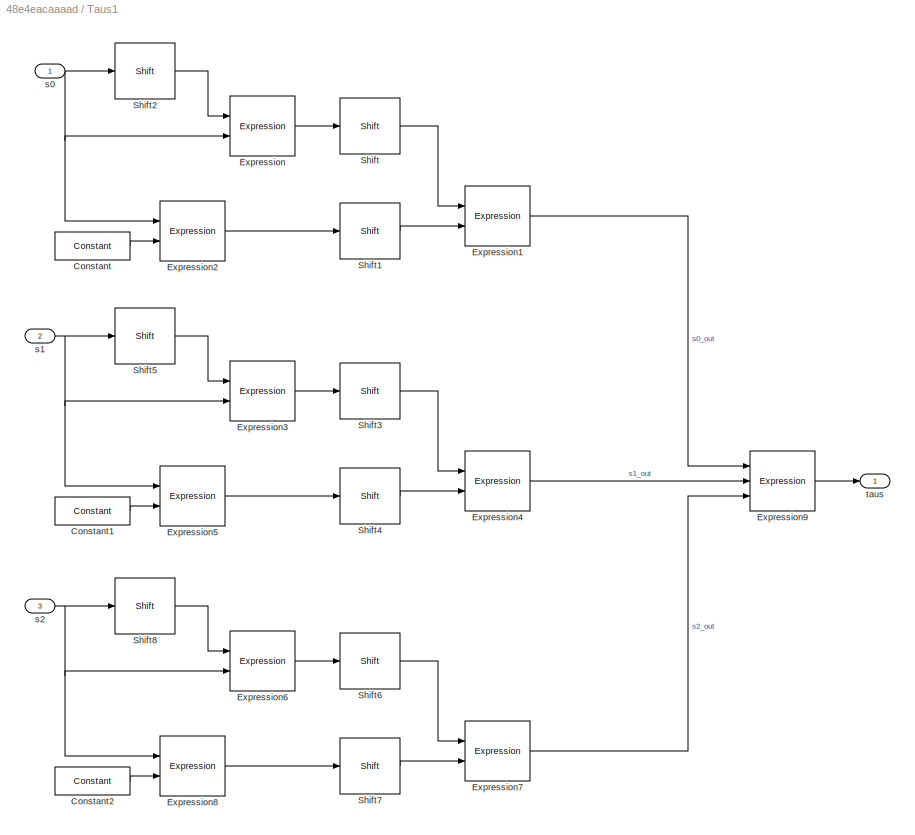
BLOCK [SubSystem] Taus1
  Ports = [3, 1]
  RequestExecContextInheritance = off
BLOCK [Reference] Taus1/Constant  REF=xbsIndex_r4/Constant
  Ports = [0, 1]
  SourceBlock = xbsIndex_r4/Constant
  SourceType = Xilinx Constant Block Block
  arith_type = Floating-point
  bin_pt = 14
  block_type = constant
  carry = CIN
  const = hex2dec('fffffffe')
  dbl_ovrd = off
  dsp48_infoedit = The use of this block for DSP48 instructions is deprecated.  Please use the Opmode block.
  equ = P=C
  exp_width = 8
  explicit_period = off
  frac_width = 24
  gui_display_data_type = Floating-point
  has_advanced_control = 0
  inp1 = P
  inp2 = PCIN>>17
  n_bits = 16
  opr = +
  opselect = C
  period = 1
  preci_type = Double
  sg_icon_stat = 75,28,0,1,white,blue,0,6b095b07,right,,[ ],[ ]
  sg_mask_display = fprintf('','COMMENT: begin icon graphics');\npatch([0 75 75 0 0 ],[0 0 28 28 0 ],[0.77 0.82 0.91 ]);\nplot([0 75 75 0 0 ],[0 0 28 28 0 ]);\npatch([28.1 33.88 37.88 41.88 45.88 37.88 32.1 28.1 ],[18.44 18.44 22.44 18.44 22.44 22.44 22.44 18.44 ],[1 1 1 ]);\npatch([32.1 37.88 33.88 28.1 32.1 ],[14.44 14.44 18.44 18.44 14.44 ],[0.931 0.946 0.973 ]);\npatch([28.1 33.88 37.88 32.1 28.1 ],[10.44 10.44 14.44 ...<+308ch>  <repeated x6 — deduplicated; at blocks: Constant, Constant1, Constant2>
  sggui_pos = -1,-1,-1,-1
BLOCK [Reference] Taus1/Constant1  REF=xbsIndex_r4/Constant
  Ports = [0, 1]
  SourceBlock = xbsIndex_r4/Constant
  SourceType = Xilinx Constant Block Block
  arith_type = Floating-point
  bin_pt = 14
  block_type = constant
  carry = CIN
  const = hex2dec('fffffff8')
  dbl_ovrd = off
  dsp48_infoedit = The use of this block for DSP48 instructions is deprecated.  Please use the Opmode block.
  equ = P=C
  exp_width = 8
  explicit_period = off
  frac_width = 24
  gui_display_data_type = Floating-point
  has_advanced_control = 0
  inp1 = P
  inp2 = PCIN>>17
  n_bits = 16
  opr = +
  opselect = C
  period = 1
  preci_type = Double
  sg_icon_stat = 75,28,0,1,white,blue,0,81b59430,right,,[ ],[ ]
  sggui_pos = -1,-1,-1,-1
BLOCK [Reference] Taus1/Constant2  REF=xbsIndex_r4/Constant
  Ports = [0, 1]
  SourceBlock = xbsIndex_r4/Constant
  SourceType = Xilinx Constant Block Block
  arith_type = Floating-point
  bin_pt = 14
  block_type = constant
  carry = CIN
  const = hex2dec('fffffff0')
  dbl_ovrd = off
  dsp48_infoedit = The use of this block for DSP48 instructions is deprecated.  Please use the Opmode block.
  equ = P=C
  exp_width = 8
  explicit_period = off
  frac_width = 24
  gui_display_data_type = Floating-point
  has_advanced_control = 0
  inp1 = P
  inp2 = PCIN>>17
  n_bits = 16
  opr = +
  opselect = C
  period = 1
  preci_type = Double
  sg_icon_stat = 75,28,0,1,white,blue,0,31da63c4,right,,[ ],[ ]
  sggui_pos = -1,-1,-1,-1
BLOCK [Reference] Taus1/Expression  REF=xbsIndex_r4/Expression
  Ports = [2, 1]
  SourceBlock = xbsIndex_r4/Expression
  SourceType = Xilinx Bitwise Expression Evaluator Block
  align_bp = on
  arith_type = Unsigned
  bin_pt = 0
  block_type = expr
  dbl_ovrd = off
  en = off
  expression = a ^ b
  has_advanced_control = 0
  latency = 0
  n_bits = 16
  precision = Full
  sg_icon_stat = 65,60,2,1,white,blue,0,0ec7a852,right,,[ ],[ ]
  sg_mask_display = fprintf('','COMMENT: begin icon graphics');\npatch([0 65 65 0 0 ],[0 0 60 60 0 ],[0.77 0.82 0.91 ]);\nplot([0 65 65 0 0 ],[0 0 60 60 0 ]);\npatch([14.2 25.76 33.76 41.76 49.76 33.76 22.2 14.2 ],[38.88 38.88 46.88 38.88 46.88 46.88 46.88 38.88 ],[1 1 1 ]);\npatch([22.2 33.76 25.76 14.2 22.2 ],[30.88 30.88 38.88 38.88 30.88 ],[0.931 0.946 0.973 ]);\npatch([14.2 25.76 33.76 22.2 14.2 ],[22.88 22.88 30.88 ...<+415ch>  <repeated x12 — deduplicated; at blocks: Expression, Expression1, Expression3, Expression4, Expression6, Expression7>
  sggui_pos = 201,17,336,236
  xl_area = [0,0,0,0,0,0,0]
  xl_use_area = off
BLOCK [Reference] Taus1/Expression1  REF=xbsIndex_r4/Expression
  Ports = [2, 1]
  SourceBlock = xbsIndex_r4/Expression
  SourceType = Xilinx Bitwise Expression Evaluator Block
  align_bp = on
  arith_type = Unsigned
  bin_pt = 0
  block_type = expr
  dbl_ovrd = off
  en = off
  expression = a ^ b
  has_advanced_control = 0
  latency = 0
  n_bits = 16
  precision = Full
  sg_icon_stat = 65,60,2,1,white,blue,0,0ec7a852,right,,[ ],[ ]
  sggui_pos = 201,17,336,236
  xl_area = [0,0,0,0,0,0,0]
  xl_use_area = off
BLOCK [Reference] Taus1/Expression2  REF=xbsIndex_r4/Expression
  Ports = [2, 1]
  SourceBlock = xbsIndex_r4/Expression
  SourceType = Xilinx Bitwise Expression Evaluator Block
  align_bp = on
  arith_type = Unsigned
  bin_pt = 0
  block_type = expr
  dbl_ovrd = off
  en = off
  expression = a & b
  has_advanced_control = 0
  latency = 0
  n_bits = 16
  precision = Full
  sg_icon_stat = 65,60,2,1,white,blue,0,87655dbc,right,,[ ],[ ]
  sg_mask_display = fprintf('','COMMENT: begin icon graphics');\npatch([0 65 65 0 0 ],[0 0 60 60 0 ],[0.77 0.82 0.91 ]);\nplot([0 65 65 0 0 ],[0 0 60 60 0 ]);\npatch([14.2 25.76 33.76 41.76 49.76 33.76 22.2 14.2 ],[38.88 38.88 46.88 38.88 46.88 46.88 46.88 38.88 ],[1 1 1 ]);\npatch([22.2 33.76 25.76 14.2 22.2 ],[30.88 30.88 38.88 38.88 30.88 ],[0.931 0.946 0.973 ]);\npatch([14.2 25.76 33.76 22.2 14.2 ],[22.88 22.88 30.88 ...<+409ch>  <repeated x6 — deduplicated; at blocks: Expression2, Expression5, Expression8>
  sggui_pos = 201,17,336,236
  xl_area = [0,0,0,0,0,0,0]
  xl_use_area = off
BLOCK [Reference] Taus1/Expression3  REF=xbsIndex_r4/Expression
  Ports = [2, 1]
  SourceBlock = xbsIndex_r4/Expression
  SourceType = Xilinx Bitwise Expression Evaluator Block
  align_bp = on
  arith_type = Unsigned
  bin_pt = 0
  block_type = expr
  dbl_ovrd = off
  en = off
  expression = a ^ b
  has_advanced_control = 0
  latency = 0
  n_bits = 16
  precision = Full
  sg_icon_stat = 65,60,2,1,white,blue,0,0ec7a852,right,,[ ],[ ]
  sggui_pos = 201,17,336,236
  xl_area = [0,0,0,0,0,0,0]
  xl_use_area = off
BLOCK [Reference] Taus1/Expression4  REF=xbsIndex_r4/Expression
  Ports = [2, 1]
  SourceBlock = xbsIndex_r4/Expression
  SourceType = Xilinx Bitwise Expression Evaluator Block
  align_bp = on
  arith_type = Unsigned
  bin_pt = 0
  block_type = expr
  dbl_ovrd = off
  en = off
  expression = a ^ b
  has_advanced_control = 0
  latency = 0
  n_bits = 16
  precision = Full
  sg_icon_stat = 65,60,2,1,white,blue,0,0ec7a852,right,,[ ],[ ]
  sggui_pos = 201,17,336,236
  xl_area = [0,0,0,0,0,0,0]
  xl_use_area = off
BLOCK [Reference] Taus1/Expression5  REF=xbsIndex_r4/Expression
  Ports = [2, 1]
  SourceBlock = xbsIndex_r4/Expression
  SourceType = Xilinx Bitwise Expression Evaluator Block
  align_bp = on
  arith_type = Unsigned
  bin_pt = 0
  block_type = expr
  dbl_ovrd = off
  en = off
  expression = a & b
  has_advanced_control = 0
  latency = 0
  n_bits = 16
  precision = Full
  sg_icon_stat = 65,60,2,1,white,blue,0,87655dbc,right,,[ ],[ ]
  sggui_pos = 201,17,336,236
  xl_area = [0,0,0,0,0,0,0]
  xl_use_area = off
BLOCK [Reference] Taus1/Expression6  REF=xbsIndex_r4/Expression
  Ports = [2, 1]
  SourceBlock = xbsIndex_r4/Expression
  SourceType = Xilinx Bitwise Expression Evaluator Block
  align_bp = on
  arith_type = Unsigned
  bin_pt = 0
  block_type = expr
  dbl_ovrd = off
  en = off
  expression = a ^ b
  has_advanced_control = 0
  latency = 0
  n_bits = 16
  precision = Full
  sg_icon_stat = 65,60,2,1,white,blue,0,0ec7a852,right,,[ ],[ ]
  sggui_pos = 201,17,336,236
  xl_area = [0,0,0,0,0,0,0]
  xl_use_area = off
BLOCK [Reference] Taus1/Expression7  REF=xbsIndex_r4/Expression
  Ports = [2, 1]
  SourceBlock = xbsIndex_r4/Expression
  SourceType = Xilinx Bitwise Expression Evaluator Block
  align_bp = on
  arith_type = Unsigned
  bin_pt = 0
  block_type = expr
  dbl_ovrd = off
  en = off
  expression = a ^ b
  has_advanced_control = 0
  latency = 0
  n_bits = 16
  precision = Full
  sg_icon_stat = 65,60,2,1,white,blue,0,0ec7a852,right,,[ ],[ ]
  sggui_pos = 201,17,336,236
  xl_area = [0,0,0,0,0,0,0]
  xl_use_area = off
BLOCK [Reference] Taus1/Expression8  REF=xbsIndex_r4/Expression
  Ports = [2, 1]
  SourceBlock = xbsIndex_r4/Expression
  SourceType = Xilinx Bitwise Expression Evaluator Block
  align_bp = on
  arith_type = Unsigned
  bin_pt = 0
  block_type = expr
  dbl_ovrd = off
  en = off
  expression = a & b
  has_advanced_control = 0
  latency = 0
  n_bits = 16
  precision = Full
  sg_icon_stat = 65,60,2,1,white,blue,0,87655dbc,right,,[ ],[ ]
  sggui_pos = 201,17,336,236
  xl_area = [0,0,0,0,0,0,0]
  xl_use_area = off
BLOCK [Reference] Taus1/Expression9  REF=xbsIndex_r4/Expression
  Ports = [3, 1]
  SourceBlock = xbsIndex_r4/Expression
  SourceType = Xilinx Bitwise Expression Evaluator Block
  align_bp = on
  arith_type = Unsigned
  bin_pt = 0
  block_type = expr
  dbl_ovrd = off
  en = off
  expression = a ^ b ^ c
  has_advanced_control = 0
  latency = 0
  n_bits = 16
  precision = Full
  sg_icon_stat = 65,60,3,1,white,blue,0,0816a7cb,right,,[ ],[ ]
  sg_mask_display = fprintf('','COMMENT: begin icon graphics');\npatch([0 65 65 0 0 ],[0 0 60 60 0 ],[0.77 0.82 0.91 ]);\nplot([0 65 65 0 0 ],[0 0 60 60 0 ]);\npatch([14.2 25.76 33.76 41.76 49.76 33.76 22.2 14.2 ],[38.88 38.88 46.88 38.88 46.88 46.88 46.88 38.88 ],[1 1 1 ]);\npatch([22.2 33.76 25.76 14.2 22.2 ],[30.88 30.88 38.88 38.88 30.88 ],[0.931 0.946 0.973 ]);\npatch([14.2 25.76 33.76 22.2 14.2 ],[22.88 22.88 30.88 ...<+467ch>
  sggui_pos = 201,17,336,236
  xl_area = [0,0,0,0,0,0,0]
  xl_use_area = off
BLOCK [Reference] Taus1/Shift  REF=xbsIndex_r4/Shift
  Ports = [1, 1]
  SourceBlock = xbsIndex_r4/Shift
  SourceType = Xilinx Binary Shift Operator Block
  arith_type = Signed  (2's comp)
  bin_pt = 14
  block_type = shift
  dbl_ovrd = off
  en = off
  has_advanced_control = 0
  infoedit = Hardware notes: In hardware this block costs nothing if full output precision is used.
  latency = 0
  n_bits = 16
  overflow = Wrap
  precision = Full
  quantization = Truncate
  sg_icon_stat = 60,56,1,1,white,blue,0,5a61e306,right,,[ ],[ ]
  sg_mask_display = fprintf('','COMMENT: begin icon graphics');\npatch([0 60 60 0 0 ],[0 0 56 56 0 ],[0.77 0.82 0.91 ]);\nplot([0 60 60 0 0 ],[0 0 56 56 0 ]);\npatch([12.2 23.76 31.76 39.76 47.76 31.76 20.2 12.2 ],[36.88 36.88 44.88 36.88 44.88 44.88 44.88 36.88 ],[1 1 1 ]);\npatch([20.2 31.76 23.76 12.2 20.2 ],[28.88 28.88 36.88 36.88 28.88 ],[0.931 0.946 0.973 ]);\npatch([12.2 23.76 31.76 20.2 12.2 ],[20.88 20.88 28.88 ...<+314ch>  <repeated x12 — deduplicated; at blocks: Shift, Shift1, Shift2, Shift3, Shift6, Shift7>
  sggui_pos = -1,-1,-1,-1
  shift_bits = 19
  shift_dir = Right
  xl_area = [0,0,0,0,0,0,0]
  xl_use_area = off
BLOCK [Reference] Taus1/Shift1  REF=xbsIndex_r4/Shift
  Ports = [1, 1]
  SourceBlock = xbsIndex_r4/Shift
  SourceType = Xilinx Binary Shift Operator Block
  arith_type = Signed  (2's comp)
  bin_pt = 14
  block_type = shift
  dbl_ovrd = off
  en = off
  has_advanced_control = 0
  infoedit = Hardware notes: In hardware this block costs nothing if full output precision is used.
  latency = 0
  n_bits = 16
  overflow = Wrap
  precision = Full
  quantization = Truncate
  sg_icon_stat = 60,56,1,1,white,blue,0,11708c59,right,,[ ],[ ]
  sggui_pos = -1,-1,-1,-1
  shift_bits = 12
  shift_dir = Left
  xl_area = [0,0,0,0,0,0,0]
  xl_use_area = off
BLOCK [Reference] Taus1/Shift2  REF=xbsIndex_r4/Shift
  Ports = [1, 1]
  SourceBlock = xbsIndex_r4/Shift
  SourceType = Xilinx Binary Shift Operator Block
  arith_type = Signed  (2's comp)
  bin_pt = 14
  block_type = shift
  dbl_ovrd = off
  en = off
  has_advanced_control = 0
  infoedit = Hardware notes: In hardware this block costs nothing if full output precision is used.
  latency = 0
  n_bits = 16
  overflow = Wrap
  precision = Full
  quantization = Truncate
  sg_icon_stat = 60,56,1,1,white,blue,0,80610d22,right,,[ ],[ ]
  sggui_pos = 1102,254,336,369
  shift_bits = 13
  shift_dir = Left
  xl_area = [0,0,0,0,0,0,0]
  xl_use_area = off
BLOCK [Reference] Taus1/Shift3  REF=xbsIndex_r4/Shift
  Ports = [1, 1]
  SourceBlock = xbsIndex_r4/Shift
  SourceType = Xilinx Binary Shift Operator Block
  arith_type = Signed  (2's comp)
  bin_pt = 14
  block_type = shift
  dbl_ovrd = off
  en = off
  has_advanced_control = 0
  infoedit = Hardware notes: In hardware this block costs nothing if full output precision is used.
  latency = 0
  n_bits = 16
  overflow = Wrap
  precision = Full
  quantization = Truncate
  sg_icon_stat = 60,56,1,1,white,blue,0,e240ddd0,right,,[ ],[ ]
  sggui_pos = -1,-1,-1,-1
  shift_bits = 25
  shift_dir = Right
  xl_area = [0,0,0,0,0,0,0]
  xl_use_area = off
BLOCK [Reference] Taus1/Shift4  REF=xbsIndex_r4/Shift
  Ports = [1, 1]
  SourceBlock = xbsIndex_r4/Shift
  SourceType = Xilinx Binary Shift Operator Block
  arith_type = Signed  (2's comp)
  bin_pt = 14
  block_type = shift
  dbl_ovrd = off
  en = off
  has_advanced_control = 0
  infoedit = Hardware notes: In hardware this block costs nothing if full output precision is used.
  latency = 0
  n_bits = 16
  overflow = Wrap
  precision = Full
  quantization = Truncate
  sg_icon_stat = 60,56,1,1,white,blue,0,bc7e136a,right,,[ ],[ ]
  sg_mask_display = fprintf('','COMMENT: begin icon graphics');\npatch([0 60 60 0 0 ],[0 0 56 56 0 ],[0.77 0.82 0.91 ]);\nplot([0 60 60 0 0 ],[0 0 56 56 0 ]);\npatch([12.2 23.76 31.76 39.76 47.76 31.76 20.2 12.2 ],[36.88 36.88 44.88 36.88 44.88 44.88 44.88 36.88 ],[1 1 1 ]);\npatch([20.2 31.76 23.76 12.2 20.2 ],[28.88 28.88 36.88 36.88 28.88 ],[0.931 0.946 0.973 ]);\npatch([12.2 23.76 31.76 20.2 12.2 ],[20.88 20.88 28.88 ...<+313ch>  <repeated x6 — deduplicated; at blocks: Shift4, Shift5, Shift8>
  sggui_pos = -1,-1,-1,-1
  shift_bits = 4
  shift_dir = Left
  xl_area = [0,0,0,0,0,0,0]
  xl_use_area = off
BLOCK [Reference] Taus1/Shift5  REF=xbsIndex_r4/Shift
  Ports = [1, 1]
  SourceBlock = xbsIndex_r4/Shift
  SourceType = Xilinx Binary Shift Operator Block
  arith_type = Signed  (2's comp)
  bin_pt = 14
  block_type = shift
  dbl_ovrd = off
  en = off
  has_advanced_control = 0
  infoedit = Hardware notes: In hardware this block costs nothing if full output precision is used.
  latency = 0
  n_bits = 16
  overflow = Wrap
  precision = Full
  quantization = Truncate
  sg_icon_stat = 60,56,1,1,white,blue,0,282f02ea,right,,[ ],[ ]
  sggui_pos = 1102,254,336,369
  shift_bits = 2
  shift_dir = Left
  xl_area = [0,0,0,0,0,0,0]
  xl_use_area = off
BLOCK [Reference] Taus1/Shift6  REF=xbsIndex_r4/Shift
  Ports = [1, 1]
  SourceBlock = xbsIndex_r4/Shift
  SourceType = Xilinx Binary Shift Operator Block
  arith_type = Signed  (2's comp)
  bin_pt = 14
  block_type = shift
  dbl_ovrd = off
  en = off
  has_advanced_control = 0
  infoedit = Hardware notes: In hardware this block costs nothing if full output precision is used.
  latency = 0
  n_bits = 16
  overflow = Wrap
  precision = Full
  quantization = Truncate
  sg_icon_stat = 60,56,1,1,white,blue,0,5d31f610,right,,[ ],[ ]
  sggui_pos = -1,-1,-1,-1
  shift_bits = 11
  shift_dir = Right
  xl_area = [0,0,0,0,0,0,0]
  xl_use_area = off
BLOCK [Reference] Taus1/Shift7  REF=xbsIndex_r4/Shift
  Ports = [1, 1]
  SourceBlock = xbsIndex_r4/Shift
  SourceType = Xilinx Binary Shift Operator Block
  arith_type = Signed  (2's comp)
  bin_pt = 14
  block_type = shift
  dbl_ovrd = off
  en = off
  has_advanced_control = 0
  infoedit = Hardware notes: In hardware this block costs nothing if full output precision is used.
  latency = 0
  n_bits = 16
  overflow = Wrap
  precision = Full
  quantization = Truncate
  sg_icon_stat = 60,56,1,1,white,blue,0,1f0c89f5,right,,[ ],[ ]
  sggui_pos = -1,-1,-1,-1
  shift_bits = 17
  shift_dir = Left
  xl_area = [0,0,0,0,0,0,0]
  xl_use_area = off
BLOCK [Reference] Taus1/Shift8  REF=xbsIndex_r4/Shift
  Ports = [1, 1]
  SourceBlock = xbsIndex_r4/Shift
  SourceType = Xilinx Binary Shift Operator Block
  arith_type = Signed  (2's comp)
  bin_pt = 14
  block_type = shift
  dbl_ovrd = off
  en = off
  has_advanced_control = 0
  infoedit = Hardware notes: In hardware this block costs nothing if full output precision is used.
  latency = 0
  n_bits = 16
  overflow = Wrap
  precision = Full
  quantization = Truncate
  sg_icon_stat = 60,56,1,1,white,blue,0,2cc77cbe,right,,[ ],[ ]
  sggui_pos = 1102,254,336,369
  shift_bits = 3
  shift_dir = Left
  xl_area = [0,0,0,0,0,0,0]
  xl_use_area = off
BLOCK [Inport] Taus1/s0
  IconDisplay = Port number
BLOCK [Inport] Taus1/s1
  IconDisplay = Port number
  Port = 2
BLOCK [Inport] Taus1/s2
  IconDisplay = Port number
  Port = 3
BLOCK [Outport] Taus1/taus
  IconDisplay = Port number
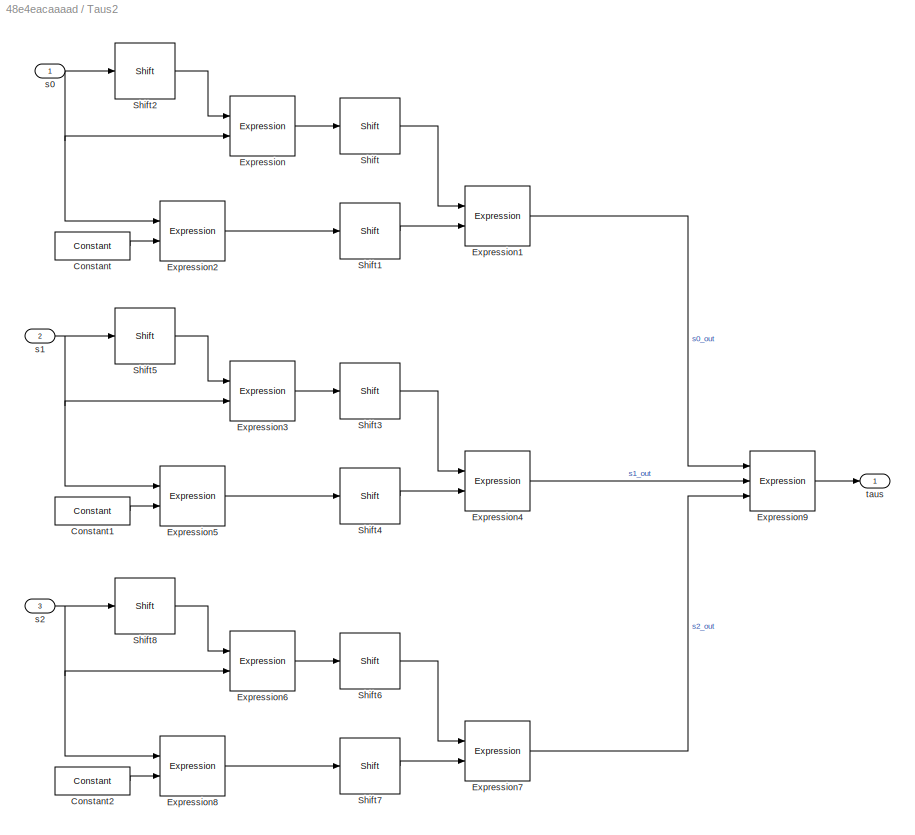
BLOCK [SubSystem] Taus2
  Ports = [3, 1]
  RequestExecContextInheritance = off
BLOCK [Reference] Taus2/Constant  REF=xbsIndex_r4/Constant
  Ports = [0, 1]
  SourceBlock = xbsIndex_r4/Constant
  SourceType = Xilinx Constant Block Block
  arith_type = Floating-point
  bin_pt = 14
  block_type = constant
  carry = CIN
  const = hex2dec('fffffffe')
  dbl_ovrd = off
  dsp48_infoedit = The use of this block for DSP48 instructions is deprecated.  Please use the Opmode block.
  equ = P=C
  exp_width = 8
  explicit_period = off
  frac_width = 24
  gui_display_data_type = Floating-point
  has_advanced_control = 0
  inp1 = P
  inp2 = PCIN>>17
  n_bits = 16
  opr = +
  opselect = C
  period = 1
  preci_type = Double
  sg_icon_stat = 75,28,0,1,white,blue,0,6b095b07,right,,[ ],[ ]
  sggui_pos = -1,-1,-1,-1
BLOCK [Reference] Taus2/Constant1  REF=xbsIndex_r4/Constant
  Ports = [0, 1]
  SourceBlock = xbsIndex_r4/Constant
  SourceType = Xilinx Constant Block Block
  arith_type = Floating-point
  bin_pt = 14
  block_type = constant
  carry = CIN
  const = hex2dec('fffffff8')
  dbl_ovrd = off
  dsp48_infoedit = The use of this block for DSP48 instructions is deprecated.  Please use the Opmode block.
  equ = P=C
  exp_width = 8
  explicit_period = off
  frac_width = 24
  gui_display_data_type = Floating-point
  has_advanced_control = 0
  inp1 = P
  inp2 = PCIN>>17
  n_bits = 16
  opr = +
  opselect = C
  period = 1
  preci_type = Double
  sg_icon_stat = 75,28,0,1,white,blue,0,81b59430,right,,[ ],[ ]
  sggui_pos = -1,-1,-1,-1
BLOCK [Reference] Taus2/Constant2  REF=xbsIndex_r4/Constant
  Ports = [0, 1]
  SourceBlock = xbsIndex_r4/Constant
  SourceType = Xilinx Constant Block Block
  arith_type = Floating-point
  bin_pt = 14
  block_type = constant
  carry = CIN
  const = hex2dec('fffffff0')
  dbl_ovrd = off
  dsp48_infoedit = The use of this block for DSP48 instructions is deprecated.  Please use the Opmode block.
  equ = P=C
  exp_width = 8
  explicit_period = off
  frac_width = 24
  gui_display_data_type = Floating-point
  has_advanced_control = 0
  inp1 = P
  inp2 = PCIN>>17
  n_bits = 16
  opr = +
  opselect = C
  period = 1
  preci_type = Double
  sg_icon_stat = 75,28,0,1,white,blue,0,31da63c4,right,,[ ],[ ]
  sggui_pos = -1,-1,-1,-1
BLOCK [Reference] Taus2/Expression  REF=xbsIndex_r4/Expression
  Ports = [2, 1]
  SourceBlock = xbsIndex_r4/Expression
  SourceType = Xilinx Bitwise Expression Evaluator Block
  align_bp = on
  arith_type = Unsigned
  bin_pt = 0
  block_type = expr
  dbl_ovrd = off
  en = off
  expression = a ^ b
  has_advanced_control = 0
  latency = 0
  n_bits = 16
  precision = Full
  sg_icon_stat = 65,60,2,1,white,blue,0,0ec7a852,right,,[ ],[ ]
  sggui_pos = 201,17,336,236
  xl_area = [0,0,0,0,0,0,0]
  xl_use_area = off
BLOCK [Reference] Taus2/Expression1  REF=xbsIndex_r4/Expression
  Ports = [2, 1]
  SourceBlock = xbsIndex_r4/Expression
  SourceType = Xilinx Bitwise Expression Evaluator Block
  align_bp = on
  arith_type = Unsigned
  bin_pt = 0
  block_type = expr
  dbl_ovrd = off
  en = off
  expression = a ^ b
  has_advanced_control = 0
  latency = 0
  n_bits = 16
  precision = Full
  sg_icon_stat = 65,60,2,1,white,blue,0,0ec7a852,right,,[ ],[ ]
  sggui_pos = 201,17,336,236
  xl_area = [0,0,0,0,0,0,0]
  xl_use_area = off
BLOCK [Reference] Taus2/Expression2  REF=xbsIndex_r4/Expression
  Ports = [2, 1]
  SourceBlock = xbsIndex_r4/Expression
  SourceType = Xilinx Bitwise Expression Evaluator Block
  align_bp = on
  arith_type = Unsigned
  bin_pt = 0
  block_type = expr
  dbl_ovrd = off
  en = off
  expression = a & b
  has_advanced_control = 0
  latency = 0
  n_bits = 16
  precision = Full
  sg_icon_stat = 65,60,2,1,white,blue,0,87655dbc,right,,[ ],[ ]
  sggui_pos = 201,17,336,236
  xl_area = [0,0,0,0,0,0,0]
  xl_use_area = off
BLOCK [Reference] Taus2/Expression3  REF=xbsIndex_r4/Expression
  Ports = [2, 1]
  SourceBlock = xbsIndex_r4/Expression
  SourceType = Xilinx Bitwise Expression Evaluator Block
  align_bp = on
  arith_type = Unsigned
  bin_pt = 0
  block_type = expr
  dbl_ovrd = off
  en = off
  expression = a ^ b
  has_advanced_control = 0
  latency = 0
  n_bits = 16
  precision = Full
  sg_icon_stat = 65,60,2,1,white,blue,0,0ec7a852,right,,[ ],[ ]
  sggui_pos = 201,17,336,236
  xl_area = [0,0,0,0,0,0,0]
  xl_use_area = off
BLOCK [Reference] Taus2/Expression4  REF=xbsIndex_r4/Expression
  Ports = [2, 1]
  SourceBlock = xbsIndex_r4/Expression
  SourceType = Xilinx Bitwise Expression Evaluator Block
  align_bp = on
  arith_type = Unsigned
  bin_pt = 0
  block_type = expr
  dbl_ovrd = off
  en = off
  expression = a ^ b
  has_advanced_control = 0
  latency = 0
  n_bits = 16
  precision = Full
  sg_icon_stat = 65,60,2,1,white,blue,0,0ec7a852,right,,[ ],[ ]
  sggui_pos = 201,17,336,236
  xl_area = [0,0,0,0,0,0,0]
  xl_use_area = off
BLOCK [Reference] Taus2/Expression5  REF=xbsIndex_r4/Expression
  Ports = [2, 1]
  SourceBlock = xbsIndex_r4/Expression
  SourceType = Xilinx Bitwise Expression Evaluator Block
  align_bp = on
  arith_type = Unsigned
  bin_pt = 0
  block_type = expr
  dbl_ovrd = off
  en = off
  expression = a & b
  has_advanced_control = 0
  latency = 0
  n_bits = 16
  precision = Full
  sg_icon_stat = 65,60,2,1,white,blue,0,87655dbc,right,,[ ],[ ]
  sggui_pos = 201,17,336,236
  xl_area = [0,0,0,0,0,0,0]
  xl_use_area = off
BLOCK [Reference] Taus2/Expression6  REF=xbsIndex_r4/Expression
  Ports = [2, 1]
  SourceBlock = xbsIndex_r4/Expression
  SourceType = Xilinx Bitwise Expression Evaluator Block
  align_bp = on
  arith_type = Unsigned
  bin_pt = 0
  block_type = expr
  dbl_ovrd = off
  en = off
  expression = a ^ b
  has_advanced_control = 0
  latency = 0
  n_bits = 16
  precision = Full
  sg_icon_stat = 65,60,2,1,white,blue,0,0ec7a852,right,,[ ],[ ]
  sggui_pos = 201,17,336,236
  xl_area = [0,0,0,0,0,0,0]
  xl_use_area = off
BLOCK [Reference] Taus2/Expression7  REF=xbsIndex_r4/Expression
  Ports = [2, 1]
  SourceBlock = xbsIndex_r4/Expression
  SourceType = Xilinx Bitwise Expression Evaluator Block
  align_bp = on
  arith_type = Unsigned
  bin_pt = 0
  block_type = expr
  dbl_ovrd = off
  en = off
  expression = a ^ b
  has_advanced_control = 0
  latency = 0
  n_bits = 16
  precision = Full
  sg_icon_stat = 65,60,2,1,white,blue,0,0ec7a852,right,,[ ],[ ]
  sggui_pos = 201,17,336,236
  xl_area = [0,0,0,0,0,0,0]
  xl_use_area = off
BLOCK [Reference] Taus2/Expression8  REF=xbsIndex_r4/Expression
  Ports = [2, 1]
  SourceBlock = xbsIndex_r4/Expression
  SourceType = Xilinx Bitwise Expression Evaluator Block
  align_bp = on
  arith_type = Unsigned
  bin_pt = 0
  block_type = expr
  dbl_ovrd = off
  en = off
  expression = a & b
  has_advanced_control = 0
  latency = 0
  n_bits = 16
  precision = Full
  sg_icon_stat = 65,60,2,1,white,blue,0,87655dbc,right,,[ ],[ ]
  sggui_pos = 201,17,336,236
  xl_area = [0,0,0,0,0,0,0]
  xl_use_area = off
BLOCK [Reference] Taus2/Expression9  REF=xbsIndex_r4/Expression
  Ports = [3, 1]
  SourceBlock = xbsIndex_r4/Expression
  SourceType = Xilinx Bitwise Expression Evaluator Block
  align_bp = on
  arith_type = Unsigned
  bin_pt = 0
  block_type = expr
  dbl_ovrd = off
  en = off
  expression = a ^ b ^ c
  has_advanced_control = 0
  latency = 0
  n_bits = 16
  precision = Full
  sg_icon_stat = 65,60,3,1,white,blue,0,0816a7cb,right,,[ ],[ ]
  sg_mask_display = fprintf('','COMMENT: begin icon graphics');\npatch([0 65 65 0 0 ],[0 0 60 60 0 ],[0.77 0.82 0.91 ]);\nplot([0 65 65 0 0 ],[0 0 60 60 0 ]);\npatch([14.2 25.76 33.76 41.76 49.76 33.76 22.2 14.2 ],[38.88 38.88 46.88 38.88 46.88 46.88 46.88 38.88 ],[1 1 1 ]);\npatch([22.2 33.76 25.76 14.2 22.2 ],[30.88 30.88 38.88 38.88 30.88 ],[0.931 0.946 0.973 ]);\npatch([14.2 25.76 33.76 22.2 14.2 ],[22.88 22.88 30.88 ...<+467ch>
  sggui_pos = 201,17,336,236
  xl_area = [0,0,0,0,0,0,0]
  xl_use_area = off
BLOCK [Reference] Taus2/Shift  REF=xbsIndex_r4/Shift
  Ports = [1, 1]
  SourceBlock = xbsIndex_r4/Shift
  SourceType = Xilinx Binary Shift Operator Block
  arith_type = Signed  (2's comp)
  bin_pt = 14
  block_type = shift
  dbl_ovrd = off
  en = off
  has_advanced_control = 0
  infoedit = Hardware notes: In hardware this block costs nothing if full output precision is used.
  latency = 0
  n_bits = 16
  overflow = Wrap
  precision = Full
  quantization = Truncate
  sg_icon_stat = 60,56,1,1,white,blue,0,5a61e306,right,,[ ],[ ]
  sggui_pos = -1,-1,-1,-1
  shift_bits = 19
  shift_dir = Right
  xl_area = [0,0,0,0,0,0,0]
  xl_use_area = off
BLOCK [Reference] Taus2/Shift1  REF=xbsIndex_r4/Shift
  Ports = [1, 1]
  SourceBlock = xbsIndex_r4/Shift
  SourceType = Xilinx Binary Shift Operator Block
  arith_type = Signed  (2's comp)
  bin_pt = 14
  block_type = shift
  dbl_ovrd = off
  en = off
  has_advanced_control = 0
  infoedit = Hardware notes: In hardware this block costs nothing if full output precision is used.
  latency = 0
  n_bits = 16
  overflow = Wrap
  precision = Full
  quantization = Truncate
  sg_icon_stat = 60,56,1,1,white,blue,0,11708c59,right,,[ ],[ ]
  sggui_pos = -1,-1,-1,-1
  shift_bits = 12
  shift_dir = Left
  xl_area = [0,0,0,0,0,0,0]
  xl_use_area = off
BLOCK [Reference] Taus2/Shift2  REF=xbsIndex_r4/Shift
  Ports = [1, 1]
  SourceBlock = xbsIndex_r4/Shift
  SourceType = Xilinx Binary Shift Operator Block
  arith_type = Signed  (2's comp)
  bin_pt = 14
  block_type = shift
  dbl_ovrd = off
  en = off
  has_advanced_control = 0
  infoedit = Hardware notes: In hardware this block costs nothing if full output precision is used.
  latency = 0
  n_bits = 16
  overflow = Wrap
  precision = Full
  quantization = Truncate
  sg_icon_stat = 60,56,1,1,white,blue,0,80610d22,right,,[ ],[ ]
  sggui_pos = 1102,254,336,369
  shift_bits = 13
  shift_dir = Left
  xl_area = [0,0,0,0,0,0,0]
  xl_use_area = off
BLOCK [Reference] Taus2/Shift3  REF=xbsIndex_r4/Shift
  Ports = [1, 1]
  SourceBlock = xbsIndex_r4/Shift
  SourceType = Xilinx Binary Shift Operator Block
  arith_type = Signed  (2's comp)
  bin_pt = 14
  block_type = shift
  dbl_ovrd = off
  en = off
  has_advanced_control = 0
  infoedit = Hardware notes: In hardware this block costs nothing if full output precision is used.
  latency = 0
  n_bits = 16
  overflow = Wrap
  precision = Full
  quantization = Truncate
  sg_icon_stat = 60,56,1,1,white,blue,0,e240ddd0,right,,[ ],[ ]
  sggui_pos = -1,-1,-1,-1
  shift_bits = 25
  shift_dir = Right
  xl_area = [0,0,0,0,0,0,0]
  xl_use_area = off
BLOCK [Reference] Taus2/Shift4  REF=xbsIndex_r4/Shift
  Ports = [1, 1]
  SourceBlock = xbsIndex_r4/Shift
  SourceType = Xilinx Binary Shift Operator Block
  arith_type = Signed  (2's comp)
  bin_pt = 14
  block_type = shift
  dbl_ovrd = off
  en = off
  has_advanced_control = 0
  infoedit = Hardware notes: In hardware this block costs nothing if full output precision is used.
  latency = 0
  n_bits = 16
  overflow = Wrap
  precision = Full
  quantization = Truncate
  sg_icon_stat = 60,56,1,1,white,blue,0,bc7e136a,right,,[ ],[ ]
  sggui_pos = -1,-1,-1,-1
  shift_bits = 4
  shift_dir = Left
  xl_area = [0,0,0,0,0,0,0]
  xl_use_area = off
BLOCK [Reference] Taus2/Shift5  REF=xbsIndex_r4/Shift
  Ports = [1, 1]
  SourceBlock = xbsIndex_r4/Shift
  SourceType = Xilinx Binary Shift Operator Block
  arith_type = Signed  (2's comp)
  bin_pt = 14
  block_type = shift
  dbl_ovrd = off
  en = off
  has_advanced_control = 0
  infoedit = Hardware notes: In hardware this block costs nothing if full output precision is used.
  latency = 0
  n_bits = 16
  overflow = Wrap
  precision = Full
  quantization = Truncate
  sg_icon_stat = 60,56,1,1,white,blue,0,282f02ea,right,,[ ],[ ]
  sggui_pos = 1102,254,336,369
  shift_bits = 2
  shift_dir = Left
  xl_area = [0,0,0,0,0,0,0]
  xl_use_area = off
BLOCK [Reference] Taus2/Shift6  REF=xbsIndex_r4/Shift
  Ports = [1, 1]
  SourceBlock = xbsIndex_r4/Shift
  SourceType = Xilinx Binary Shift Operator Block
  arith_type = Signed  (2's comp)
  bin_pt = 14
  block_type = shift
  dbl_ovrd = off
  en = off
  has_advanced_control = 0
  infoedit = Hardware notes: In hardware this block costs nothing if full output precision is used.
  latency = 0
  n_bits = 16
  overflow = Wrap
  precision = Full
  quantization = Truncate
  sg_icon_stat = 60,56,1,1,white,blue,0,5d31f610,right,,[ ],[ ]
  sggui_pos = -1,-1,-1,-1
  shift_bits = 11
  shift_dir = Right
  xl_area = [0,0,0,0,0,0,0]
  xl_use_area = off
BLOCK [Reference] Taus2/Shift7  REF=xbsIndex_r4/Shift
  Ports = [1, 1]
  SourceBlock = xbsIndex_r4/Shift
  SourceType = Xilinx Binary Shift Operator Block
  arith_type = Signed  (2's comp)
  bin_pt = 14
  block_type = shift
  dbl_ovrd = off
  en = off
  has_advanced_control = 0
  infoedit = Hardware notes: In hardware this block costs nothing if full output precision is used.
  latency = 0
  n_bits = 16
  overflow = Wrap
  precision = Full
  quantization = Truncate
  sg_icon_stat = 60,56,1,1,white,blue,0,1f0c89f5,right,,[ ],[ ]
  sggui_pos = -1,-1,-1,-1
  shift_bits = 17
  shift_dir = Left
  xl_area = [0,0,0,0,0,0,0]
  xl_use_area = off
BLOCK [Reference] Taus2/Shift8  REF=xbsIndex_r4/Shift
  Ports = [1, 1]
  SourceBlock = xbsIndex_r4/Shift
  SourceType = Xilinx Binary Shift Operator Block
  arith_type = Signed  (2's comp)
  bin_pt = 14
  block_type = shift
  dbl_ovrd = off
  en = off
  has_advanced_control = 0
  infoedit = Hardware notes: In hardware this block costs nothing if full output precision is used.
  latency = 0
  n_bits = 16
  overflow = Wrap
  precision = Full
  quantization = Truncate
  sg_icon_stat = 60,56,1,1,white,blue,0,2cc77cbe,right,,[ ],[ ]
  sggui_pos = 1102,254,336,369
  shift_bits = 3
  shift_dir = Left
  xl_area = [0,0,0,0,0,0,0]
  xl_use_area = off
BLOCK [Inport] Taus2/s0
  IconDisplay = Port number
BLOCK [Inport] Taus2/s1
  IconDisplay = Port number
  Port = 2
BLOCK [Inport] Taus2/s2
  IconDisplay = Port number
  Port = 3
BLOCK [Outport] Taus2/taus
  IconDisplay = Port number
BLOCK [ToWorkspace] To Workspace3
  MaxDataPoints = inf
  Ports = [1]
  SampleTime = -1
  SaveFormat = Structure
  VariableName = ccos2
BLOCK [ToWorkspace] To Workspace5
  MaxDataPoints = inf
  Ports = [1]
  SampleTime = -1
  SaveFormat = Structure
  VariableName = ssin2
BLOCK [Reference] White Gaussian Noise Generator  REF=xrbsComm_r4/White Gaussian 
Noise Generator
  Commented = on
  Ports = [1, 1]
  SourceBlock = xrbsComm_r4/White Gaussian \nNoise Generator
  SourceType = White Gaussian Noise Generator
  seed = 512
BLOCK [Reference] b_31:16  REF=xbsIndex_r4/Slice
  Ports = [1, 1]
  SourceBlock = xbsIndex_r4/Slice
  SourceType = Xilinx Bit Slice Extractor Block
  base0 = LSB of Input
  base1 = LSB of Input
  bit0 = PACCPrecision-1
  bit1 = 0
  block_type = slice
  block_version = 12.2
  boolean_output = off
  dbl_ovrd = off
  has_advanced_control = 0
  infoedit = Extracts a given range of bits from each input sample and presents it at the output.  The output type is ordinarily unsigned with binary point at zero, but can be Boolean when the slice is one bit wide.<br><br>Hardware notes: In hardware this block costs nothing.  <repeated x5 — deduplicated; at blocks: b_31:16, quad, u1, u2, x_g_a>
  mode = Upper Bit Location + Width
  nbits = 16
  sg_icon_stat = 65,30,1,1,white,blue,0,1fd851a7,right,,[ ],[ ]
  sg_mask_display = fprintf('','COMMENT: begin icon graphics');\npatch([0 65 65 0 0 ],[0 0 30 30 0 ],[0.77 0.82 0.91 ]);\nplot([0 65 65 0 0 ],[0 0 30 30 0 ]);\npatch([23.1 28.88 32.88 36.88 40.88 32.88 27.1 23.1 ],[19.44 19.44 23.44 19.44 23.44 23.44 23.44 19.44 ],[1 1 1 ]);\npatch([27.1 32.88 28.88 23.1 27.1 ],[15.44 15.44 19.44 19.44 15.44 ],[0.931 0.946 0.973 ]);\npatch([23.1 28.88 32.88 27.1 23.1 ],[11.44 11.44 15.44 ...<+304ch>  <repeated x5 — deduplicated; at blocks: b_31:16, quad, u1, u2, x_g_a>
  sggui_pos = -1,-1,-1,-1
BLOCK [Product] e'
  InputSameDT = off
  OutDataTypeStr = Inherit: Inherit via internal rule
  Ports = [2, 1]
  RndMeth = Floor
  SaturateOnIntegerOverflow = off
BLOCK [Reference] g0  REF=xbsIndex_r4/Mux
  Ports = [5, 1]
  SourceBlock = xbsIndex_r4/Mux
  SourceType = Xilinx Bus Multiplexer Block
  arith_type = Unsigned
  bin_pt = 14
  block_type = mux
  dbl_ovrd = off
  en = off
  has_advanced_control = 0
  inputs = 4
  latency = 0
  n_bits = 16
  overflow = Wrap
  precision = Full
  quantization = Truncate
  sg_icon_stat = 25,156,5,1,white,blue,3,d6c79293,right,,[ ],[ ]
  sg_mask_display = fprintf('','COMMENT: begin icon graphics');\npatch([0 25 25 0 0 ],[0 22.2857 133.714 156 0 ],[0.77 0.82 0.91 ]);\nplot([0 25 25 0 0 ],[0 22.2857 133.714 156 0 ]);\npatch([5.325 9.66 12.66 15.66 18.66 12.66 8.325 5.325 ],[81.33 81.33 84.33 81.33 84.33 84.33 84.33 81.33 ],[1 1 1 ]);\npatch([8.325 12.66 9.66 5.325 8.325 ],[78.33 78.33 81.33 81.33 78.33 ],[0.931 0.946 0.973 ]);\npatch([5.325 9.66 12.66 8.3...<+554ch>
  sggui_pos = -1,-1,-1,-1
  xl_area = [0,0,0,0,0,0,0]
  xl_use_area = off
BLOCK [Reference] g1  REF=xbsIndex_r4/Mux
  Ports = [5, 1]
  SourceBlock = xbsIndex_r4/Mux
  SourceType = Xilinx Bus Multiplexer Block
  arith_type = Unsigned
  bin_pt = 14
  block_type = mux
  dbl_ovrd = off
  en = off
  has_advanced_control = 0
  inputs = 4
  latency = 0
  n_bits = 16
  overflow = Wrap
  precision = Full
  quantization = Truncate
  sg_icon_stat = 25,156,5,1,white,blue,3,d6c79293,right,,[ ],[ ]
  sg_mask_display = fprintf('','COMMENT: begin icon graphics');\npatch([0 25 25 0 0 ],[0 22.2857 133.714 156 0 ],[0.77 0.82 0.91 ]);\nplot([0 25 25 0 0 ],[0 22.2857 133.714 156 0 ]);\npatch([5.325 9.66 12.66 15.66 18.66 12.66 8.325 5.325 ],[81.33 81.33 84.33 81.33 84.33 84.33 84.33 81.33 ],[1 1 1 ]);\npatch([8.325 12.66 9.66 5.325 8.325 ],[78.33 78.33 81.33 81.33 78.33 ],[0.931 0.946 0.973 ]);\npatch([5.325 9.66 12.66 8.3...<+554ch>
  sggui_pos = -1,-1,-1,-1
  xl_area = [0,0,0,0,0,0,0]
  xl_use_area = off
BLOCK [Math] ln2
  Operator = log
  OutputSignalType = real
  Ports = [1, 1]
BLOCK [Reference] quad  REF=xbsIndex_r4/Slice
  Ports = [1, 1]
  SourceBlock = xbsIndex_r4/Slice
  SourceType = Xilinx Bit Slice Extractor Block
  base0 = LSB of Input
  base1 = MSB of Input
  bit0 = 0
  bit1 = 0
  block_type = slice
  block_version = 12.2
  boolean_output = off
  dbl_ovrd = off
  has_advanced_control = 0
  mode = Upper Bit Location + Width
  nbits = 2
  sg_icon_stat = 65,30,1,1,white,blue,0,1fd851a7,right,,[ ],[ ]
  sggui_pos = 665,45,460,424
BLOCK [Reference] u1  REF=xbsIndex_r4/Slice
  Ports = [1, 1]
  SourceBlock = xbsIndex_r4/Slice
  SourceType = Xilinx Bit Slice Extractor Block
  base0 = LSB of Input
  base1 = MSB of Input
  bit0 = 0
  bit1 = 0
  block_type = slice
  block_version = 12.2
  boolean_output = off
  dbl_ovrd = off
  has_advanced_control = 0
  mode = Lower Bit Location + Width
  nbits = 16
  sg_icon_stat = 65,30,1,1,white,blue,0,1fd851a7,right,,[ ],[ ]
  sggui_pos = 665,45,460,424
BLOCK [Reference] u2  REF=xbsIndex_r4/Slice
  Ports = [1, 1]
  SourceBlock = xbsIndex_r4/Slice
  SourceType = Xilinx Bit Slice Extractor Block
  base0 = LSB of Input
  base1 = MSB of Input
  bit0 = 0
  bit1 = 0
  block_type = slice
  block_version = 12.2
  boolean_output = off
  dbl_ovrd = off
  has_advanced_control = 0
  mode = Upper Bit Location + Width
  nbits = 1
  sg_icon_stat = 65,30,1,1,white,blue,0,1fd851a7,right,,[ ],[ ]
  sggui_pos = 665,45,460,424
BLOCK [Product] x0
  InputSameDT = off
  OutDataTypeStr = Inherit: Inherit via internal rule
  Ports = [2, 1]
  RndMeth = Floor
  SaturateOnIntegerOverflow = off
BLOCK [Product] x1
  InputSameDT = off
  OutDataTypeStr = Inherit: Inherit via internal rule
  Ports = [2, 1]
  RndMeth = Floor
  SaturateOnIntegerOverflow = off
BLOCK [Reference] x_g_a  REF=xbsIndex_r4/Slice
  Ports = [1, 1]
  SourceBlock = xbsIndex_r4/Slice
  SourceType = Xilinx Bit Slice Extractor Block
  base0 = LSB of Input
  base1 = MSB of Input
  bit0 = 0
  bit1 = 0
  block_type = slice
  block_version = 12.2
  boolean_output = off
  dbl_ovrd = off
  has_advanced_control = 0
  mode = Lower Bit Location + Width
  nbits = 14
  sg_icon_stat = 65,30,1,1,white,blue,0,1fd851a7,right,,[ ],[ ]
  sggui_pos = 665,45,460,424
BLOCK [Reference] x_g_b  REF=xbsIndex_r4/AddSub
  Ports = [2, 1]
  SourceBlock = xbsIndex_r4/AddSub
  SourceType = Xilinx Adder/Subtracter Block
  arith_type = Signed  (2's comp)
  bin_pt = nBitsIntDDSOutputFrc
  block_type = addsub
  block_version = 12.2
  dbl_ovrd = off
  en = off
  has_advanced_control = 0
  hw_selection = Fabric
  latency = 0
  mode = Subtraction
  n_bits = nBitsIntDDSOutput
  overflow = Wrap
  pipelined = off
  precision = User Defined
  quantization = Truncate
  sg_icon_stat = 35,87,2,1,white,blue,0,32e1f85f,right,,[ ],[ ]
  sg_mask_display = fprintf('','COMMENT: begin icon graphics');\npatch([0 35 35 0 0 ],[0 0 87 87 0 ],[0.77 0.82 0.91 ]);\nplot([0 35 35 0 0 ],[0 0 87 87 0 ]);\npatch([5.875 13.1 18.1 23.1 28.1 18.1 10.875 5.875 ],[48.55 48.55 53.55 48.55 53.55 53.55 53.55 48.55 ],[1 1 1 ]);\npatch([10.875 18.1 13.1 5.875 10.875 ],[43.55 43.55 48.55 48.55 43.55 ],[0.931 0.946 0.973 ]);\npatch([5.875 13.1 18.1 10.875 5.875 ],[38.55 38.55 43...<+416ch>
  sggui_pos = -1,-1,-1,-1
  use_behavioral_HDL = off
  use_carryin = off
  use_carryout = off
  xl_area = [0,0,0,0,0,0,0]
  xl_use_area = off
LINE 1-2^-14:1 -> x_g_b:1
LINE 24 bit LZD/16 bit LZD/8 bit LZD/4 bit LZD/2 bit LZD/Logical Operator1:1 -> 24 bit LZD/16 bit LZD/8 bit LZD/4 bit LZD/2 bit LZD/p:1
LINE 24 bit LZD/16 bit LZD/8 bit LZD/4 bit LZD/2 bit LZD/Logical Operator2:1 -> 24 bit LZD/16 bit LZD/8 bit LZD/4 bit LZD/2 bit LZD/Logical Operator1:2
LINE 24 bit LZD/16 bit LZD/8 bit LZD/4 bit LZD/2 bit LZD/Logical Operator:1 -> 24 bit LZD/16 bit LZD/8 bit LZD/4 bit LZD/2 bit LZD/v:1
NET 24 bit LZD/16 bit LZD/8 bit LZD/4 bit LZD/2 bit LZD/a0:1 -> 24 bit LZD/16 bit LZD/8 bit LZD/4 bit LZD/2 bit LZD/Logical Operator1:1, 24 bit LZD/16 bit LZD/8 bit LZD/4 bit LZD/2 bit LZD/Logical Operator:1
NET 24 bit LZD/16 bit LZD/8 bit LZD/4 bit LZD/2 bit LZD/a1:1 -> 24 bit LZD/16 bit LZD/8 bit LZD/4 bit LZD/2 bit LZD/Logical Operator2:1, 24 bit LZD/16 bit LZD/8 bit LZD/4 bit LZD/2 bit LZD/Logical Operator:2
LINE 24 bit LZD/16 bit LZD/8 bit LZD/4 bit LZD/2 bit LZD1/Logical Operator1:1 -> 24 bit LZD/16 bit LZD/8 bit LZD/4 bit LZD/2 bit LZD1/p:1
LINE 24 bit LZD/16 bit LZD/8 bit LZD/4 bit LZD/2 bit LZD1/Logical Operator2:1 -> 24 bit LZD/16 bit LZD/8 bit LZD/4 bit LZD/2 bit LZD1/Logical Operator1:2
LINE 24 bit LZD/16 bit LZD/8 bit LZD/4 bit LZD/2 bit LZD1/Logical Operator:1 -> 24 bit LZD/16 bit LZD/8 bit LZD/4 bit LZD/2 bit LZD1/v:1
NET 24 bit LZD/16 bit LZD/8 bit LZD/4 bit LZD/2 bit LZD1/a0:1 -> 24 bit LZD/16 bit LZD/8 bit LZD/4 bit LZD/2 bit LZD1/Logical Operator1:1, 24 bit LZD/16 bit LZD/8 bit LZD/4 bit LZD/2 bit LZD1/Logical Operator:1
NET 24 bit LZD/16 bit LZD/8 bit LZD/4 bit LZD/2 bit LZD1/a1:1 -> 24 bit LZD/16 bit LZD/8 bit LZD/4 bit LZD/2 bit LZD1/Logical Operator2:1, 24 bit LZD/16 bit LZD/8 bit LZD/4 bit LZD/2 bit LZD1/Logical Operator:2
LINE 24 bit LZD/16 bit LZD/8 bit LZD/4 bit LZD/2 bit LZD1:1 -> 24 bit LZD/16 bit LZD/8 bit LZD/4 bit LZD/Logical Operator:1
LINE 24 bit LZD/16 bit LZD/8 bit LZD/4 bit LZD/2 bit LZD1:2 -> 24 bit LZD/16 bit LZD/8 bit LZD/4 bit LZD/Mux:1
LINE 24 bit LZD/16 bit LZD/8 bit LZD/4 bit LZD/2 bit LZD:1 -> 24 bit LZD/16 bit LZD/8 bit LZD/4 bit LZD/Logical Operator2:1
LINE 24 bit LZD/16 bit LZD/8 bit LZD/4 bit LZD/2 bit LZD:2 -> 24 bit LZD/16 bit LZD/8 bit LZD/4 bit LZD/Mux:2
LINE 24 bit LZD/16 bit LZD/8 bit LZD/4 bit LZD/Bus Creator1:1 -> 24 bit LZD/16 bit LZD/8 bit LZD/4 bit LZD/p:1
LINE 24 bit LZD/16 bit LZD/8 bit LZD/4 bit LZD/Logical Operator2:1 -> 24 bit LZD/16 bit LZD/8 bit LZD/4 bit LZD/Bus Creator1:2
LINE 24 bit LZD/16 bit LZD/8 bit LZD/4 bit LZD/Logical Operator:1 -> 24 bit LZD/16 bit LZD/8 bit LZD/4 bit LZD/v:1
NET 24 bit LZD/16 bit LZD/8 bit LZD/4 bit LZD/Mux:1 -> 24 bit LZD/16 bit LZD/8 bit LZD/4 bit LZD/Bus Creator1:1, 24 bit LZD/16 bit LZD/8 bit LZD/4 bit LZD/Logical Operator:2
LINE 24 bit LZD/16 bit LZD/8 bit LZD/4 bit LZD/a0:1 -> 24 bit LZD/16 bit LZD/8 bit LZD/4 bit LZD/2 bit LZD1:1
LINE 24 bit LZD/16 bit LZD/8 bit LZD/4 bit LZD/a1:1 -> 24 bit LZD/16 bit LZD/8 bit LZD/4 bit LZD/2 bit LZD1:2
LINE 24 bit LZD/16 bit LZD/8 bit LZD/4 bit LZD/a2:1 -> 24 bit LZD/16 bit LZD/8 bit LZD/4 bit LZD/2 bit LZD:1
LINE 24 bit LZD/16 bit LZD/8 bit LZD/4 bit LZD/a3:1 -> 24 bit LZD/16 bit LZD/8 bit LZD/4 bit LZD/2 bit LZD:2
LINE 24 bit LZD/16 bit LZD/8 bit LZD/4 bit LZD1/2 bit LZD/Logical Operator1:1 -> 24 bit LZD/16 bit LZD/8 bit LZD/4 bit LZD1/2 bit LZD/p:1
LINE 24 bit LZD/16 bit LZD/8 bit LZD/4 bit LZD1/2 bit LZD/Logical Operator2:1 -> 24 bit LZD/16 bit LZD/8 bit LZD/4 bit LZD1/2 bit LZD/Logical Operator1:2
LINE 24 bit LZD/16 bit LZD/8 bit LZD/4 bit LZD1/2 bit LZD/Logical Operator:1 -> 24 bit LZD/16 bit LZD/8 bit LZD/4 bit LZD1/2 bit LZD/v:1
NET 24 bit LZD/16 bit LZD/8 bit LZD/4 bit LZD1/2 bit LZD/a0:1 -> 24 bit LZD/16 bit LZD/8 bit LZD/4 bit LZD1/2 bit LZD/Logical Operator1:1, 24 bit LZD/16 bit LZD/8 bit LZD/4 bit LZD1/2 bit LZD/Logical Operator:1
NET 24 bit LZD/16 bit LZD/8 bit LZD/4 bit LZD1/2 bit LZD/a1:1 -> 24 bit LZD/16 bit LZD/8 bit LZD/4 bit LZD1/2 bit LZD/Logical Operator2:1, 24 bit LZD/16 bit LZD/8 bit LZD/4 bit LZD1/2 bit LZD/Logical Operator:2
LINE 24 bit LZD/16 bit LZD/8 bit LZD/4 bit LZD1/2 bit LZD1/Logical Operator1:1 -> 24 bit LZD/16 bit LZD/8 bit LZD/4 bit LZD1/2 bit LZD1/p:1
LINE 24 bit LZD/16 bit LZD/8 bit LZD/4 bit LZD1/2 bit LZD1/Logical Operator2:1 -> 24 bit LZD/16 bit LZD/8 bit LZD/4 bit LZD1/2 bit LZD1/Logical Operator1:2
LINE 24 bit LZD/16 bit LZD/8 bit LZD/4 bit LZD1/2 bit LZD1/Logical Operator:1 -> 24 bit LZD/16 bit LZD/8 bit LZD/4 bit LZD1/2 bit LZD1/v:1
NET 24 bit LZD/16 bit LZD/8 bit LZD/4 bit LZD1/2 bit LZD1/a0:1 -> 24 bit LZD/16 bit LZD/8 bit LZD/4 bit LZD1/2 bit LZD1/Logical Operator1:1, 24 bit LZD/16 bit LZD/8 bit LZD/4 bit LZD1/2 bit LZD1/Logical Operator:1
NET 24 bit LZD/16 bit LZD/8 bit LZD/4 bit LZD1/2 bit LZD1/a1:1 -> 24 bit LZD/16 bit LZD/8 bit LZD/4 bit LZD1/2 bit LZD1/Logical Operator2:1, 24 bit LZD/16 bit LZD/8 bit LZD/4 bit LZD1/2 bit LZD1/Logical Operator:2
LINE 24 bit LZD/16 bit LZD/8 bit LZD/4 bit LZD1/2 bit LZD1:1 -> 24 bit LZD/16 bit LZD/8 bit LZD/4 bit LZD1/Logical Operator:1
LINE 24 bit LZD/16 bit LZD/8 bit LZD/4 bit LZD1/2 bit LZD1:2 -> 24 bit LZD/16 bit LZD/8 bit LZD/4 bit LZD1/Mux:1
LINE 24 bit LZD/16 bit LZD/8 bit LZD/4 bit LZD1/2 bit LZD:1 -> 24 bit LZD/16 bit LZD/8 bit LZD/4 bit LZD1/Logical Operator2:1
LINE 24 bit LZD/16 bit LZD/8 bit LZD/4 bit LZD1/2 bit LZD:2 -> 24 bit LZD/16 bit LZD/8 bit LZD/4 bit LZD1/Mux:2
LINE 24 bit LZD/16 bit LZD/8 bit LZD/4 bit LZD1/Bus Creator1:1 -> 24 bit LZD/16 bit LZD/8 bit LZD/4 bit LZD1/p:1
LINE 24 bit LZD/16 bit LZD/8 bit LZD/4 bit LZD1/Logical Operator2:1 -> 24 bit LZD/16 bit LZD/8 bit LZD/4 bit LZD1/Bus Creator1:2
LINE 24 bit LZD/16 bit LZD/8 bit LZD/4 bit LZD1/Logical Operator:1 -> 24 bit LZD/16 bit LZD/8 bit LZD/4 bit LZD1/v:1
NET 24 bit LZD/16 bit LZD/8 bit LZD/4 bit LZD1/Mux:1 -> 24 bit LZD/16 bit LZD/8 bit LZD/4 bit LZD1/Bus Creator1:1, 24 bit LZD/16 bit LZD/8 bit LZD/4 bit LZD1/Logical Operator:2
LINE 24 bit LZD/16 bit LZD/8 bit LZD/4 bit LZD1/a0:1 -> 24 bit LZD/16 bit LZD/8 bit LZD/4 bit LZD1/2 bit LZD1:1
LINE 24 bit LZD/16 bit LZD/8 bit LZD/4 bit LZD1/a1:1 -> 24 bit LZD/16 bit LZD/8 bit LZD/4 bit LZD1/2 bit LZD1:2
LINE 24 bit LZD/16 bit LZD/8 bit LZD/4 bit LZD1/a2:1 -> 24 bit LZD/16 bit LZD/8 bit LZD/4 bit LZD1/2 bit LZD:1
LINE 24 bit LZD/16 bit LZD/8 bit LZD/4 bit LZD1/a3:1 -> 24 bit LZD/16 bit LZD/8 bit LZD/4 bit LZD1/2 bit LZD:2
LINE 24 bit LZD/16 bit LZD/8 bit LZD/4 bit LZD1:1 -> 24 bit LZD/16 bit LZD/8 bit LZD/Logical Operator:1
LINE 24 bit LZD/16 bit LZD/8 bit LZD/4 bit LZD1:2 -> 24 bit LZD/16 bit LZD/8 bit LZD/Mux:1
LINE 24 bit LZD/16 bit LZD/8 bit LZD/4 bit LZD:1 -> 24 bit LZD/16 bit LZD/8 bit LZD/Logical Operator2:1
LINE 24 bit LZD/16 bit LZD/8 bit LZD/4 bit LZD:2 -> 24 bit LZD/16 bit LZD/8 bit LZD/Mux:2
LINE 24 bit LZD/16 bit LZD/8 bit LZD/Bus Creator1:1 -> 24 bit LZD/16 bit LZD/8 bit LZD/p:1
LINE 24 bit LZD/16 bit LZD/8 bit LZD/Logical Operator2:1 -> 24 bit LZD/16 bit LZD/8 bit LZD/Bus Creator1:2
LINE 24 bit LZD/16 bit LZD/8 bit LZD/Logical Operator:1 -> 24 bit LZD/16 bit LZD/8 bit LZD/v:1
NET 24 bit LZD/16 bit LZD/8 bit LZD/Mux:1 -> 24 bit LZD/16 bit LZD/8 bit LZD/Bus Creator1:1, 24 bit LZD/16 bit LZD/8 bit LZD/Logical Operator:2
LINE 24 bit LZD/16 bit LZD/8 bit LZD/a0:1 -> 24 bit LZD/16 bit LZD/8 bit LZD/4 bit LZD1:1
LINE 24 bit LZD/16 bit LZD/8 bit LZD/a1:1 -> 24 bit LZD/16 bit LZD/8 bit LZD/4 bit LZD1:2
LINE 24 bit LZD/16 bit LZD/8 bit LZD/a2:1 -> 24 bit LZD/16 bit LZD/8 bit LZD/4 bit LZD1:3
LINE 24 bit LZD/16 bit LZD/8 bit LZD/a3:1 -> 24 bit LZD/16 bit LZD/8 bit LZD/4 bit LZD1:4
LINE 24 bit LZD/16 bit LZD/8 bit LZD/a4:1 -> 24 bit LZD/16 bit LZD/8 bit LZD/4 bit LZD:1
LINE 24 bit LZD/16 bit LZD/8 bit LZD/a5:1 -> 24 bit LZD/16 bit LZD/8 bit LZD/4 bit LZD:2
LINE 24 bit LZD/16 bit LZD/8 bit LZD/a6:1 -> 24 bit LZD/16 bit LZD/8 bit LZD/4 bit LZD:3
LINE 24 bit LZD/16 bit LZD/8 bit LZD/a7:1 -> 24 bit LZD/16 bit LZD/8 bit LZD/4 bit LZD:4
LINE 24 bit LZD/16 bit LZD/8 bit LZD1/4 bit LZD/2 bit LZD/Logical Operator1:1 -> 24 bit LZD/16 bit LZD/8 bit LZD1/4 bit LZD/2 bit LZD/p:1
LINE 24 bit LZD/16 bit LZD/8 bit LZD1/4 bit LZD/2 bit LZD/Logical Operator2:1 -> 24 bit LZD/16 bit LZD/8 bit LZD1/4 bit LZD/2 bit LZD/Logical Operator1:2
LINE 24 bit LZD/16 bit LZD/8 bit LZD1/4 bit LZD/2 bit LZD/Logical Operator:1 -> 24 bit LZD/16 bit LZD/8 bit LZD1/4 bit LZD/2 bit LZD/v:1
NET 24 bit LZD/16 bit LZD/8 bit LZD1/4 bit LZD/2 bit LZD/a0:1 -> 24 bit LZD/16 bit LZD/8 bit LZD1/4 bit LZD/2 bit LZD/Logical Operator1:1, 24 bit LZD/16 bit LZD/8 bit LZD1/4 bit LZD/2 bit LZD/Logical Operator:1
NET 24 bit LZD/16 bit LZD/8 bit LZD1/4 bit LZD/2 bit LZD/a1:1 -> 24 bit LZD/16 bit LZD/8 bit LZD1/4 bit LZD/2 bit LZD/Logical Operator2:1, 24 bit LZD/16 bit LZD/8 bit LZD1/4 bit LZD/2 bit LZD/Logical Operator:2
LINE 24 bit LZD/16 bit LZD/8 bit LZD1/4 bit LZD/2 bit LZD1/Logical Operator1:1 -> 24 bit LZD/16 bit LZD/8 bit LZD1/4 bit LZD/2 bit LZD1/p:1
LINE 24 bit LZD/16 bit LZD/8 bit LZD1/4 bit LZD/2 bit LZD1/Logical Operator2:1 -> 24 bit LZD/16 bit LZD/8 bit LZD1/4 bit LZD/2 bit LZD1/Logical Operator1:2
LINE 24 bit LZD/16 bit LZD/8 bit LZD1/4 bit LZD/2 bit LZD1/Logical Operator:1 -> 24 bit LZD/16 bit LZD/8 bit LZD1/4 bit LZD/2 bit LZD1/v:1
NET 24 bit LZD/16 bit LZD/8 bit LZD1/4 bit LZD/2 bit LZD1/a0:1 -> 24 bit LZD/16 bit LZD/8 bit LZD1/4 bit LZD/2 bit LZD1/Logical Operator1:1, 24 bit LZD/16 bit LZD/8 bit LZD1/4 bit LZD/2 bit LZD1/Logical Operator:1
NET 24 bit LZD/16 bit LZD/8 bit LZD1/4 bit LZD/2 bit LZD1/a1:1 -> 24 bit LZD/16 bit LZD/8 bit LZD1/4 bit LZD/2 bit LZD1/Logical Operator2:1, 24 bit LZD/16 bit LZD/8 bit LZD1/4 bit LZD/2 bit LZD1/Logical Operator:2
LINE 24 bit LZD/16 bit LZD/8 bit LZD1/4 bit LZD/2 bit LZD1:1 -> 24 bit LZD/16 bit LZD/8 bit LZD1/4 bit LZD/Logical Operator:1
LINE 24 bit LZD/16 bit LZD/8 bit LZD1/4 bit LZD/2 bit LZD1:2 -> 24 bit LZD/16 bit LZD/8 bit LZD1/4 bit LZD/Mux:1
LINE 24 bit LZD/16 bit LZD/8 bit LZD1/4 bit LZD/2 bit LZD:1 -> 24 bit LZD/16 bit LZD/8 bit LZD1/4 bit LZD/Logical Operator2:1
LINE 24 bit LZD/16 bit LZD/8 bit LZD1/4 bit LZD/2 bit LZD:2 -> 24 bit LZD/16 bit LZD/8 bit LZD1/4 bit LZD/Mux:2
LINE 24 bit LZD/16 bit LZD/8 bit LZD1/4 bit LZD/Bus Creator1:1 -> 24 bit LZD/16 bit LZD/8 bit LZD1/4 bit LZD/p:1
LINE 24 bit LZD/16 bit LZD/8 bit LZD1/4 bit LZD/Logical Operator2:1 -> 24 bit LZD/16 bit LZD/8 bit LZD1/4 bit LZD/Bus Creator1:2
LINE 24 bit LZD/16 bit LZD/8 bit LZD1/4 bit LZD/Logical Operator:1 -> 24 bit LZD/16 bit LZD/8 bit LZD1/4 bit LZD/v:1
NET 24 bit LZD/16 bit LZD/8 bit LZD1/4 bit LZD/Mux:1 -> 24 bit LZD/16 bit LZD/8 bit LZD1/4 bit LZD/Bus Creator1:1, 24 bit LZD/16 bit LZD/8 bit LZD1/4 bit LZD/Logical Operator:2
LINE 24 bit LZD/16 bit LZD/8 bit LZD1/4 bit LZD/a0:1 -> 24 bit LZD/16 bit LZD/8 bit LZD1/4 bit LZD/2 bit LZD1:1
LINE 24 bit LZD/16 bit LZD/8 bit LZD1/4 bit LZD/a1:1 -> 24 bit LZD/16 bit LZD/8 bit LZD1/4 bit LZD/2 bit LZD1:2
LINE 24 bit LZD/16 bit LZD/8 bit LZD1/4 bit LZD/a2:1 -> 24 bit LZD/16 bit LZD/8 bit LZD1/4 bit LZD/2 bit LZD:1
LINE 24 bit LZD/16 bit LZD/8 bit LZD1/4 bit LZD/a3:1 -> 24 bit LZD/16 bit LZD/8 bit LZD1/4 bit LZD/2 bit LZD:2
LINE 24 bit LZD/16 bit LZD/8 bit LZD1/4 bit LZD1/2 bit LZD/Logical Operator1:1 -> 24 bit LZD/16 bit LZD/8 bit LZD1/4 bit LZD1/2 bit LZD/p:1
LINE 24 bit LZD/16 bit LZD/8 bit LZD1/4 bit LZD1/2 bit LZD/Logical Operator2:1 -> 24 bit LZD/16 bit LZD/8 bit LZD1/4 bit LZD1/2 bit LZD/Logical Operator1:2
LINE 24 bit LZD/16 bit LZD/8 bit LZD1/4 bit LZD1/2 bit LZD/Logical Operator:1 -> 24 bit LZD/16 bit LZD/8 bit LZD1/4 bit LZD1/2 bit LZD/v:1
NET 24 bit LZD/16 bit LZD/8 bit LZD1/4 bit LZD1/2 bit LZD/a0:1 -> 24 bit LZD/16 bit LZD/8 bit LZD1/4 bit LZD1/2 bit LZD/Logical Operator1:1, 24 bit LZD/16 bit LZD/8 bit LZD1/4 bit LZD1/2 bit LZD/Logical Operator:1
NET 24 bit LZD/16 bit LZD/8 bit LZD1/4 bit LZD1/2 bit LZD/a1:1 -> 24 bit LZD/16 bit LZD/8 bit LZD1/4 bit LZD1/2 bit LZD/Logical Operator2:1, 24 bit LZD/16 bit LZD/8 bit LZD1/4 bit LZD1/2 bit LZD/Logical Operator:2
LINE 24 bit LZD/16 bit LZD/8 bit LZD1/4 bit LZD1/2 bit LZD1/Logical Operator1:1 -> 24 bit LZD/16 bit LZD/8 bit LZD1/4 bit LZD1/2 bit LZD1/p:1
LINE 24 bit LZD/16 bit LZD/8 bit LZD1/4 bit LZD1/2 bit LZD1/Logical Operator2:1 -> 24 bit LZD/16 bit LZD/8 bit LZD1/4 bit LZD1/2 bit LZD1/Logical Operator1:2
LINE 24 bit LZD/16 bit LZD/8 bit LZD1/4 bit LZD1/2 bit LZD1/Logical Operator:1 -> 24 bit LZD/16 bit LZD/8 bit LZD1/4 bit LZD1/2 bit LZD1/v:1
NET 24 bit LZD/16 bit LZD/8 bit LZD1/4 bit LZD1/2 bit LZD1/a0:1 -> 24 bit LZD/16 bit LZD/8 bit LZD1/4 bit LZD1/2 bit LZD1/Logical Operator1:1, 24 bit LZD/16 bit LZD/8 bit LZD1/4 bit LZD1/2 bit LZD1/Logical Operator:1
NET 24 bit LZD/16 bit LZD/8 bit LZD1/4 bit LZD1/2 bit LZD1/a1:1 -> 24 bit LZD/16 bit LZD/8 bit LZD1/4 bit LZD1/2 bit LZD1/Logical Operator2:1, 24 bit LZD/16 bit LZD/8 bit LZD1/4 bit LZD1/2 bit LZD1/Logical Operator:2
LINE 24 bit LZD/16 bit LZD/8 bit LZD1/4 bit LZD1/2 bit LZD1:1 -> 24 bit LZD/16 bit LZD/8 bit LZD1/4 bit LZD1/Logical Operator:1
LINE 24 bit LZD/16 bit LZD/8 bit LZD1/4 bit LZD1/2 bit LZD1:2 -> 24 bit LZD/16 bit LZD/8 bit LZD1/4 bit LZD1/Mux:1
LINE 24 bit LZD/16 bit LZD/8 bit LZD1/4 bit LZD1/2 bit LZD:1 -> 24 bit LZD/16 bit LZD/8 bit LZD1/4 bit LZD1/Logical Operator2:1
LINE 24 bit LZD/16 bit LZD/8 bit LZD1/4 bit LZD1/2 bit LZD:2 -> 24 bit LZD/16 bit LZD/8 bit LZD1/4 bit LZD1/Mux:2
LINE 24 bit LZD/16 bit LZD/8 bit LZD1/4 bit LZD1/Bus Creator1:1 -> 24 bit LZD/16 bit LZD/8 bit LZD1/4 bit LZD1/p:1
LINE 24 bit LZD/16 bit LZD/8 bit LZD1/4 bit LZD1/Logical Operator2:1 -> 24 bit LZD/16 bit LZD/8 bit LZD1/4 bit LZD1/Bus Creator1:2
LINE 24 bit LZD/16 bit LZD/8 bit LZD1/4 bit LZD1/Logical Operator:1 -> 24 bit LZD/16 bit LZD/8 bit LZD1/4 bit LZD1/v:1
NET 24 bit LZD/16 bit LZD/8 bit LZD1/4 bit LZD1/Mux:1 -> 24 bit LZD/16 bit LZD/8 bit LZD1/4 bit LZD1/Bus Creator1:1, 24 bit LZD/16 bit LZD/8 bit LZD1/4 bit LZD1/Logical Operator:2
LINE 24 bit LZD/16 bit LZD/8 bit LZD1/4 bit LZD1/a0:1 -> 24 bit LZD/16 bit LZD/8 bit LZD1/4 bit LZD1/2 bit LZD1:1
LINE 24 bit LZD/16 bit LZD/8 bit LZD1/4 bit LZD1/a1:1 -> 24 bit LZD/16 bit LZD/8 bit LZD1/4 bit LZD1/2 bit LZD1:2
LINE 24 bit LZD/16 bit LZD/8 bit LZD1/4 bit LZD1/a2:1 -> 24 bit LZD/16 bit LZD/8 bit LZD1/4 bit LZD1/2 bit LZD:1
LINE 24 bit LZD/16 bit LZD/8 bit LZD1/4 bit LZD1/a3:1 -> 24 bit LZD/16 bit LZD/8 bit LZD1/4 bit LZD1/2 bit LZD:2
LINE 24 bit LZD/16 bit LZD/8 bit LZD1/4 bit LZD1:1 -> 24 bit LZD/16 bit LZD/8 bit LZD1/Logical Operator:1
LINE 24 bit LZD/16 bit LZD/8 bit LZD1/4 bit LZD1:2 -> 24 bit LZD/16 bit LZD/8 bit LZD1/Mux:1
LINE 24 bit LZD/16 bit LZD/8 bit LZD1/4 bit LZD:1 -> 24 bit LZD/16 bit LZD/8 bit LZD1/Logical Operator2:1
LINE 24 bit LZD/16 bit LZD/8 bit LZD1/4 bit LZD:2 -> 24 bit LZD/16 bit LZD/8 bit LZD1/Mux:2
LINE 24 bit LZD/16 bit LZD/8 bit LZD1/Bus Creator1:1 -> 24 bit LZD/16 bit LZD/8 bit LZD1/p:1
LINE 24 bit LZD/16 bit LZD/8 bit LZD1/Logical Operator2:1 -> 24 bit LZD/16 bit LZD/8 bit LZD1/Bus Creator1:2
LINE 24 bit LZD/16 bit LZD/8 bit LZD1/Logical Operator:1 -> 24 bit LZD/16 bit LZD/8 bit LZD1/v:1
NET 24 bit LZD/16 bit LZD/8 bit LZD1/Mux:1 -> 24 bit LZD/16 bit LZD/8 bit LZD1/Bus Creator1:1, 24 bit LZD/16 bit LZD/8 bit LZD1/Logical Operator:2
LINE 24 bit LZD/16 bit LZD/8 bit LZD1/a0:1 -> 24 bit LZD/16 bit LZD/8 bit LZD1/4 bit LZD1:1
LINE 24 bit LZD/16 bit LZD/8 bit LZD1/a1:1 -> 24 bit LZD/16 bit LZD/8 bit LZD1/4 bit LZD1:2
LINE 24 bit LZD/16 bit LZD/8 bit LZD1/a2:1 -> 24 bit LZD/16 bit LZD/8 bit LZD1/4 bit LZD1:3
LINE 24 bit LZD/16 bit LZD/8 bit LZD1/a3:1 -> 24 bit LZD/16 bit LZD/8 bit LZD1/4 bit LZD1:4
LINE 24 bit LZD/16 bit LZD/8 bit LZD1/a4:1 -> 24 bit LZD/16 bit LZD/8 bit LZD1/4 bit LZD:1
LINE 24 bit LZD/16 bit LZD/8 bit LZD1/a5:1 -> 24 bit LZD/16 bit LZD/8 bit LZD1/4 bit LZD:2
LINE 24 bit LZD/16 bit LZD/8 bit LZD1/a6:1 -> 24 bit LZD/16 bit LZD/8 bit LZD1/4 bit LZD:3
LINE 24 bit LZD/16 bit LZD/8 bit LZD1/a7:1 -> 24 bit LZD/16 bit LZD/8 bit LZD1/4 bit LZD:4
LINE 24 bit LZD/16 bit LZD/8 bit LZD1:1 -> 24 bit LZD/16 bit LZD/Logical Operator:1
LINE 24 bit LZD/16 bit LZD/8 bit LZD1:2 -> 24 bit LZD/16 bit LZD/Mux:1
LINE 24 bit LZD/16 bit LZD/8 bit LZD:1 -> 24 bit LZD/16 bit LZD/Logical Operator2:1
LINE 24 bit LZD/16 bit LZD/8 bit LZD:2 -> 24 bit LZD/16 bit LZD/Mux:2
LINE 24 bit LZD/16 bit LZD/Bus Creator1:1 -> 24 bit LZD/16 bit LZD/p:1
LINE 24 bit LZD/16 bit LZD/Logical Operator2:1 -> 24 bit LZD/16 bit LZD/Bus Creator1:2
LINE 24 bit LZD/16 bit LZD/Logical Operator:1 -> 24 bit LZD/16 bit LZD/v:1
NET 24 bit LZD/16 bit LZD/Mux:1 -> 24 bit LZD/16 bit LZD/Bus Creator1:1, 24 bit LZD/16 bit LZD/Logical Operator:2
LINE 24 bit LZD/16 bit LZD/a0:1 -> 24 bit LZD/16 bit LZD/8 bit LZD1:1
LINE 24 bit LZD/16 bit LZD/a10:1 -> 24 bit LZD/16 bit LZD/8 bit LZD:3
LINE 24 bit LZD/16 bit LZD/a11:1 -> 24 bit LZD/16 bit LZD/8 bit LZD:4
LINE 24 bit LZD/16 bit LZD/a12:1 -> 24 bit LZD/16 bit LZD/8 bit LZD:5
LINE 24 bit LZD/16 bit LZD/a13:1 -> 24 bit LZD/16 bit LZD/8 bit LZD:6
LINE 24 bit LZD/16 bit LZD/a14:1 -> 24 bit LZD/16 bit LZD/8 bit LZD:7
LINE 24 bit LZD/16 bit LZD/a15:1 -> 24 bit LZD/16 bit LZD/8 bit LZD:8
LINE 24 bit LZD/16 bit LZD/a1:1 -> 24 bit LZD/16 bit LZD/8 bit LZD1:2
LINE 24 bit LZD/16 bit LZD/a2:1 -> 24 bit LZD/16 bit LZD/8 bit LZD1:3
LINE 24 bit LZD/16 bit LZD/a3:1 -> 24 bit LZD/16 bit LZD/8 bit LZD1:4
LINE 24 bit LZD/16 bit LZD/a4:1 -> 24 bit LZD/16 bit LZD/8 bit LZD1:5
LINE 24 bit LZD/16 bit LZD/a5:1 -> 24 bit LZD/16 bit LZD/8 bit LZD1:6
LINE 24 bit LZD/16 bit LZD/a6:1 -> 24 bit LZD/16 bit LZD/8 bit LZD1:7
LINE 24 bit LZD/16 bit LZD/a7:1 -> 24 bit LZD/16 bit LZD/8 bit LZD1:8
LINE 24 bit LZD/16 bit LZD/a8:1 -> 24 bit LZD/16 bit LZD/8 bit LZD:1
LINE 24 bit LZD/16 bit LZD/a9:1 -> 24 bit LZD/16 bit LZD/8 bit LZD:2
LINE 24 bit LZD/16 bit LZD:1 -> 24 bit LZD/Logical Operator:1
LINE 24 bit LZD/16 bit LZD:2 -> 24 bit LZD/Mux:1
LINE 24 bit LZD/8 bit LZD/4 bit LZD/2 bit LZD/Logical Operator1:1 -> 24 bit LZD/8 bit LZD/4 bit LZD/2 bit LZD/p:1
LINE 24 bit LZD/8 bit LZD/4 bit LZD/2 bit LZD/Logical Operator2:1 -> 24 bit LZD/8 bit LZD/4 bit LZD/2 bit LZD/Logical Operator1:2
LINE 24 bit LZD/8 bit LZD/4 bit LZD/2 bit LZD/Logical Operator:1 -> 24 bit LZD/8 bit LZD/4 bit LZD/2 bit LZD/v:1
NET 24 bit LZD/8 bit LZD/4 bit LZD/2 bit LZD/a0:1 -> 24 bit LZD/8 bit LZD/4 bit LZD/2 bit LZD/Logical Operator1:1, 24 bit LZD/8 bit LZD/4 bit LZD/2 bit LZD/Logical Operator:1
NET 24 bit LZD/8 bit LZD/4 bit LZD/2 bit LZD/a1:1 -> 24 bit LZD/8 bit LZD/4 bit LZD/2 bit LZD/Logical Operator2:1, 24 bit LZD/8 bit LZD/4 bit LZD/2 bit LZD/Logical Operator:2
LINE 24 bit LZD/8 bit LZD/4 bit LZD/2 bit LZD1/Logical Operator1:1 -> 24 bit LZD/8 bit LZD/4 bit LZD/2 bit LZD1/p:1
LINE 24 bit LZD/8 bit LZD/4 bit LZD/2 bit LZD1/Logical Operator2:1 -> 24 bit LZD/8 bit LZD/4 bit LZD/2 bit LZD1/Logical Operator1:2
LINE 24 bit LZD/8 bit LZD/4 bit LZD/2 bit LZD1/Logical Operator:1 -> 24 bit LZD/8 bit LZD/4 bit LZD/2 bit LZD1/v:1
NET 24 bit LZD/8 bit LZD/4 bit LZD/2 bit LZD1/a0:1 -> 24 bit LZD/8 bit LZD/4 bit LZD/2 bit LZD1/Logical Operator1:1, 24 bit LZD/8 bit LZD/4 bit LZD/2 bit LZD1/Logical Operator:1
NET 24 bit LZD/8 bit LZD/4 bit LZD/2 bit LZD1/a1:1 -> 24 bit LZD/8 bit LZD/4 bit LZD/2 bit LZD1/Logical Operator2:1, 24 bit LZD/8 bit LZD/4 bit LZD/2 bit LZD1/Logical Operator:2
LINE 24 bit LZD/8 bit LZD/4 bit LZD/2 bit LZD1:1 -> 24 bit LZD/8 bit LZD/4 bit LZD/Logical Operator:1
LINE 24 bit LZD/8 bit LZD/4 bit LZD/2 bit LZD1:2 -> 24 bit LZD/8 bit LZD/4 bit LZD/Mux:1
LINE 24 bit LZD/8 bit LZD/4 bit LZD/2 bit LZD:1 -> 24 bit LZD/8 bit LZD/4 bit LZD/Logical Operator2:1
LINE 24 bit LZD/8 bit LZD/4 bit LZD/2 bit LZD:2 -> 24 bit LZD/8 bit LZD/4 bit LZD/Mux:2
LINE 24 bit LZD/8 bit LZD/4 bit LZD/Bus Creator1:1 -> 24 bit LZD/8 bit LZD/4 bit LZD/p:1
LINE 24 bit LZD/8 bit LZD/4 bit LZD/Logical Operator2:1 -> 24 bit LZD/8 bit LZD/4 bit LZD/Bus Creator1:2
LINE 24 bit LZD/8 bit LZD/4 bit LZD/Logical Operator:1 -> 24 bit LZD/8 bit LZD/4 bit LZD/v:1
NET 24 bit LZD/8 bit LZD/4 bit LZD/Mux:1 -> 24 bit LZD/8 bit LZD/4 bit LZD/Bus Creator1:1, 24 bit LZD/8 bit LZD/4 bit LZD/Logical Operator:2
LINE 24 bit LZD/8 bit LZD/4 bit LZD/a0:1 -> 24 bit LZD/8 bit LZD/4 bit LZD/2 bit LZD1:1
LINE 24 bit LZD/8 bit LZD/4 bit LZD/a1:1 -> 24 bit LZD/8 bit LZD/4 bit LZD/2 bit LZD1:2
LINE 24 bit LZD/8 bit LZD/4 bit LZD/a2:1 -> 24 bit LZD/8 bit LZD/4 bit LZD/2 bit LZD:1
LINE 24 bit LZD/8 bit LZD/4 bit LZD/a3:1 -> 24 bit LZD/8 bit LZD/4 bit LZD/2 bit LZD:2
LINE 24 bit LZD/8 bit LZD/4 bit LZD1/2 bit LZD/Logical Operator1:1 -> 24 bit LZD/8 bit LZD/4 bit LZD1/2 bit LZD/p:1
LINE 24 bit LZD/8 bit LZD/4 bit LZD1/2 bit LZD/Logical Operator2:1 -> 24 bit LZD/8 bit LZD/4 bit LZD1/2 bit LZD/Logical Operator1:2
LINE 24 bit LZD/8 bit LZD/4 bit LZD1/2 bit LZD/Logical Operator:1 -> 24 bit LZD/8 bit LZD/4 bit LZD1/2 bit LZD/v:1
NET 24 bit LZD/8 bit LZD/4 bit LZD1/2 bit LZD/a0:1 -> 24 bit LZD/8 bit LZD/4 bit LZD1/2 bit LZD/Logical Operator1:1, 24 bit LZD/8 bit LZD/4 bit LZD1/2 bit LZD/Logical Operator:1
NET 24 bit LZD/8 bit LZD/4 bit LZD1/2 bit LZD/a1:1 -> 24 bit LZD/8 bit LZD/4 bit LZD1/2 bit LZD/Logical Operator2:1, 24 bit LZD/8 bit LZD/4 bit LZD1/2 bit LZD/Logical Operator:2
LINE 24 bit LZD/8 bit LZD/4 bit LZD1/2 bit LZD1/Logical Operator1:1 -> 24 bit LZD/8 bit LZD/4 bit LZD1/2 bit LZD1/p:1
LINE 24 bit LZD/8 bit LZD/4 bit LZD1/2 bit LZD1/Logical Operator2:1 -> 24 bit LZD/8 bit LZD/4 bit LZD1/2 bit LZD1/Logical Operator1:2
LINE 24 bit LZD/8 bit LZD/4 bit LZD1/2 bit LZD1/Logical Operator:1 -> 24 bit LZD/8 bit LZD/4 bit LZD1/2 bit LZD1/v:1
NET 24 bit LZD/8 bit LZD/4 bit LZD1/2 bit LZD1/a0:1 -> 24 bit LZD/8 bit LZD/4 bit LZD1/2 bit LZD1/Logical Operator1:1, 24 bit LZD/8 bit LZD/4 bit LZD1/2 bit LZD1/Logical Operator:1
NET 24 bit LZD/8 bit LZD/4 bit LZD1/2 bit LZD1/a1:1 -> 24 bit LZD/8 bit LZD/4 bit LZD1/2 bit LZD1/Logical Operator2:1, 24 bit LZD/8 bit LZD/4 bit LZD1/2 bit LZD1/Logical Operator:2
LINE 24 bit LZD/8 bit LZD/4 bit LZD1/2 bit LZD1:1 -> 24 bit LZD/8 bit LZD/4 bit LZD1/Logical Operator:1
LINE 24 bit LZD/8 bit LZD/4 bit LZD1/2 bit LZD1:2 -> 24 bit LZD/8 bit LZD/4 bit LZD1/Mux:1
LINE 24 bit LZD/8 bit LZD/4 bit LZD1/2 bit LZD:1 -> 24 bit LZD/8 bit LZD/4 bit LZD1/Logical Operator2:1
LINE 24 bit LZD/8 bit LZD/4 bit LZD1/2 bit LZD:2 -> 24 bit LZD/8 bit LZD/4 bit LZD1/Mux:2
LINE 24 bit LZD/8 bit LZD/4 bit LZD1/Bus Creator1:1 -> 24 bit LZD/8 bit LZD/4 bit LZD1/p:1
LINE 24 bit LZD/8 bit LZD/4 bit LZD1/Logical Operator2:1 -> 24 bit LZD/8 bit LZD/4 bit LZD1/Bus Creator1:2
LINE 24 bit LZD/8 bit LZD/4 bit LZD1/Logical Operator:1 -> 24 bit LZD/8 bit LZD/4 bit LZD1/v:1
NET 24 bit LZD/8 bit LZD/4 bit LZD1/Mux:1 -> 24 bit LZD/8 bit LZD/4 bit LZD1/Bus Creator1:1, 24 bit LZD/8 bit LZD/4 bit LZD1/Logical Operator:2
LINE 24 bit LZD/8 bit LZD/4 bit LZD1/a0:1 -> 24 bit LZD/8 bit LZD/4 bit LZD1/2 bit LZD1:1
LINE 24 bit LZD/8 bit LZD/4 bit LZD1/a1:1 -> 24 bit LZD/8 bit LZD/4 bit LZD1/2 bit LZD1:2
LINE 24 bit LZD/8 bit LZD/4 bit LZD1/a2:1 -> 24 bit LZD/8 bit LZD/4 bit LZD1/2 bit LZD:1
LINE 24 bit LZD/8 bit LZD/4 bit LZD1/a3:1 -> 24 bit LZD/8 bit LZD/4 bit LZD1/2 bit LZD:2
LINE 24 bit LZD/8 bit LZD/4 bit LZD1:1 -> 24 bit LZD/8 bit LZD/Logical Operator:1
LINE 24 bit LZD/8 bit LZD/4 bit LZD1:2 -> 24 bit LZD/8 bit LZD/Mux:1
LINE 24 bit LZD/8 bit LZD/4 bit LZD:1 -> 24 bit LZD/8 bit LZD/Logical Operator2:1
LINE 24 bit LZD/8 bit LZD/4 bit LZD:2 -> 24 bit LZD/8 bit LZD/Mux:2
LINE 24 bit LZD/8 bit LZD/Bus Creator1:1 -> 24 bit LZD/8 bit LZD/p:1
LINE 24 bit LZD/8 bit LZD/Logical Operator2:1 -> 24 bit LZD/8 bit LZD/Bus Creator1:2
LINE 24 bit LZD/8 bit LZD/Logical Operator:1 -> 24 bit LZD/8 bit LZD/v:1
NET 24 bit LZD/8 bit LZD/Mux:1 -> 24 bit LZD/8 bit LZD/Bus Creator1:1, 24 bit LZD/8 bit LZD/Logical Operator:2
LINE 24 bit LZD/8 bit LZD/a0:1 -> 24 bit LZD/8 bit LZD/4 bit LZD1:1
LINE 24 bit LZD/8 bit LZD/a1:1 -> 24 bit LZD/8 bit LZD/4 bit LZD1:2
LINE 24 bit LZD/8 bit LZD/a2:1 -> 24 bit LZD/8 bit LZD/4 bit LZD1:3
LINE 24 bit LZD/8 bit LZD/a3:1 -> 24 bit LZD/8 bit LZD/4 bit LZD1:4
LINE 24 bit LZD/8 bit LZD/a4:1 -> 24 bit LZD/8 bit LZD/4 bit LZD:1
LINE 24 bit LZD/8 bit LZD/a5:1 -> 24 bit LZD/8 bit LZD/4 bit LZD:2
LINE 24 bit LZD/8 bit LZD/a6:1 -> 24 bit LZD/8 bit LZD/4 bit LZD:3
LINE 24 bit LZD/8 bit LZD/a7:1 -> 24 bit LZD/8 bit LZD/4 bit LZD:4
LINE 24 bit LZD/8 bit LZD:1 -> 24 bit LZD/Logical Operator2:1
LINE 24 bit LZD/8 bit LZD:2 -> 24 bit LZD/Mux:2
LINE 24 bit LZD/Bus Creator1:1 -> 24 bit LZD/p:1
LINE 24 bit LZD/Demux:1 -> 24 bit LZD/16 bit LZD:1
LINE 24 bit LZD/Demux:10 -> 24 bit LZD/16 bit LZD:10
LINE 24 bit LZD/Demux:11 -> 24 bit LZD/16 bit LZD:11
LINE 24 bit LZD/Demux:12 -> 24 bit LZD/16 bit LZD:12
LINE 24 bit LZD/Demux:13 -> 24 bit LZD/16 bit LZD:13
LINE 24 bit LZD/Demux:14 -> 24 bit LZD/16 bit LZD:14
LINE 24 bit LZD/Demux:15 -> 24 bit LZD/16 bit LZD:15
LINE 24 bit LZD/Demux:16 -> 24 bit LZD/16 bit LZD:16
LINE 24 bit LZD/Demux:17 -> 24 bit LZD/8 bit LZD:1
LINE 24 bit LZD/Demux:18 -> 24 bit LZD/8 bit LZD:2
LINE 24 bit LZD/Demux:19 -> 24 bit LZD/8 bit LZD:3
LINE 24 bit LZD/Demux:2 -> 24 bit LZD/16 bit LZD:2
LINE 24 bit LZD/Demux:20 -> 24 bit LZD/8 bit LZD:4
LINE 24 bit LZD/Demux:21 -> 24 bit LZD/8 bit LZD:5
LINE 24 bit LZD/Demux:22 -> 24 bit LZD/8 bit LZD:6
LINE 24 bit LZD/Demux:23 -> 24 bit LZD/8 bit LZD:7
LINE 24 bit LZD/Demux:24 -> 24 bit LZD/8 bit LZD:8
LINE 24 bit LZD/Demux:3 -> 24 bit LZD/16 bit LZD:3
LINE 24 bit LZD/Demux:4 -> 24 bit LZD/16 bit LZD:4
LINE 24 bit LZD/Demux:5 -> 24 bit LZD/16 bit LZD:5
LINE 24 bit LZD/Demux:6 -> 24 bit LZD/16 bit LZD:6
LINE 24 bit LZD/Demux:7 -> 24 bit LZD/16 bit LZD:7
LINE 24 bit LZD/Demux:8 -> 24 bit LZD/16 bit LZD:8
LINE 24 bit LZD/Demux:9 -> 24 bit LZD/16 bit LZD:9
LINE 24 bit LZD/In:1 -> 24 bit LZD/Demux:1
LINE 24 bit LZD/Logical Operator2:1 -> 24 bit LZD/Bus Creator1:2
LINE 24 bit LZD/Logical Operator:1 -> 24 bit LZD/v:1
NET 24 bit LZD/Mux:1 -> 24 bit LZD/Bus Creator1:1, 24 bit LZD/Logical Operator:2
LINE 24 bit LZD1/16 bit LZD/8 bit LZD/4 bit LZD/2 bit LZD/Logical Operator1:1 -> 24 bit LZD1/16 bit LZD/8 bit LZD/4 bit LZD/2 bit LZD/p:1
LINE 24 bit LZD1/16 bit LZD/8 bit LZD/4 bit LZD/2 bit LZD/Logical Operator2:1 -> 24 bit LZD1/16 bit LZD/8 bit LZD/4 bit LZD/2 bit LZD/Logical Operator1:2
LINE 24 bit LZD1/16 bit LZD/8 bit LZD/4 bit LZD/2 bit LZD/Logical Operator:1 -> 24 bit LZD1/16 bit LZD/8 bit LZD/4 bit LZD/2 bit LZD/v:1
NET 24 bit LZD1/16 bit LZD/8 bit LZD/4 bit LZD/2 bit LZD/a0:1 -> 24 bit LZD1/16 bit LZD/8 bit LZD/4 bit LZD/2 bit LZD/Logical Operator1:1, 24 bit LZD1/16 bit LZD/8 bit LZD/4 bit LZD/2 bit LZD/Logical Operator:1
NET 24 bit LZD1/16 bit LZD/8 bit LZD/4 bit LZD/2 bit LZD/a1:1 -> 24 bit LZD1/16 bit LZD/8 bit LZD/4 bit LZD/2 bit LZD/Logical Operator2:1, 24 bit LZD1/16 bit LZD/8 bit LZD/4 bit LZD/2 bit LZD/Logical Operator:2
LINE 24 bit LZD1/16 bit LZD/8 bit LZD/4 bit LZD/2 bit LZD1/Logical Operator1:1 -> 24 bit LZD1/16 bit LZD/8 bit LZD/4 bit LZD/2 bit LZD1/p:1
LINE 24 bit LZD1/16 bit LZD/8 bit LZD/4 bit LZD/2 bit LZD1/Logical Operator2:1 -> 24 bit LZD1/16 bit LZD/8 bit LZD/4 bit LZD/2 bit LZD1/Logical Operator1:2
LINE 24 bit LZD1/16 bit LZD/8 bit LZD/4 bit LZD/2 bit LZD1/Logical Operator:1 -> 24 bit LZD1/16 bit LZD/8 bit LZD/4 bit LZD/2 bit LZD1/v:1
NET 24 bit LZD1/16 bit LZD/8 bit LZD/4 bit LZD/2 bit LZD1/a0:1 -> 24 bit LZD1/16 bit LZD/8 bit LZD/4 bit LZD/2 bit LZD1/Logical Operator1:1, 24 bit LZD1/16 bit LZD/8 bit LZD/4 bit LZD/2 bit LZD1/Logical Operator:1
NET 24 bit LZD1/16 bit LZD/8 bit LZD/4 bit LZD/2 bit LZD1/a1:1 -> 24 bit LZD1/16 bit LZD/8 bit LZD/4 bit LZD/2 bit LZD1/Logical Operator2:1, 24 bit LZD1/16 bit LZD/8 bit LZD/4 bit LZD/2 bit LZD1/Logical Operator:2
LINE 24 bit LZD1/16 bit LZD/8 bit LZD/4 bit LZD/2 bit LZD1:1 -> 24 bit LZD1/16 bit LZD/8 bit LZD/4 bit LZD/Logical Operator:1
LINE 24 bit LZD1/16 bit LZD/8 bit LZD/4 bit LZD/2 bit LZD1:2 -> 24 bit LZD1/16 bit LZD/8 bit LZD/4 bit LZD/Mux:1
LINE 24 bit LZD1/16 bit LZD/8 bit LZD/4 bit LZD/2 bit LZD:1 -> 24 bit LZD1/16 bit LZD/8 bit LZD/4 bit LZD/Logical Operator2:1
LINE 24 bit LZD1/16 bit LZD/8 bit LZD/4 bit LZD/2 bit LZD:2 -> 24 bit LZD1/16 bit LZD/8 bit LZD/4 bit LZD/Mux:2
LINE 24 bit LZD1/16 bit LZD/8 bit LZD/4 bit LZD/Bus Creator1:1 -> 24 bit LZD1/16 bit LZD/8 bit LZD/4 bit LZD/p:1
LINE 24 bit LZD1/16 bit LZD/8 bit LZD/4 bit LZD/Logical Operator2:1 -> 24 bit LZD1/16 bit LZD/8 bit LZD/4 bit LZD/Bus Creator1:2
LINE 24 bit LZD1/16 bit LZD/8 bit LZD/4 bit LZD/Logical Operator:1 -> 24 bit LZD1/16 bit LZD/8 bit LZD/4 bit LZD/v:1
NET 24 bit LZD1/16 bit LZD/8 bit LZD/4 bit LZD/Mux:1 -> 24 bit LZD1/16 bit LZD/8 bit LZD/4 bit LZD/Bus Creator1:1, 24 bit LZD1/16 bit LZD/8 bit LZD/4 bit LZD/Logical Operator:2
LINE 24 bit LZD1/16 bit LZD/8 bit LZD/4 bit LZD/a0:1 -> 24 bit LZD1/16 bit LZD/8 bit LZD/4 bit LZD/2 bit LZD1:1
LINE 24 bit LZD1/16 bit LZD/8 bit LZD/4 bit LZD/a1:1 -> 24 bit LZD1/16 bit LZD/8 bit LZD/4 bit LZD/2 bit LZD1:2
LINE 24 bit LZD1/16 bit LZD/8 bit LZD/4 bit LZD/a2:1 -> 24 bit LZD1/16 bit LZD/8 bit LZD/4 bit LZD/2 bit LZD:1
LINE 24 bit LZD1/16 bit LZD/8 bit LZD/4 bit LZD/a3:1 -> 24 bit LZD1/16 bit LZD/8 bit LZD/4 bit LZD/2 bit LZD:2
LINE 24 bit LZD1/16 bit LZD/8 bit LZD/4 bit LZD1/2 bit LZD/Logical Operator1:1 -> 24 bit LZD1/16 bit LZD/8 bit LZD/4 bit LZD1/2 bit LZD/p:1
LINE 24 bit LZD1/16 bit LZD/8 bit LZD/4 bit LZD1/2 bit LZD/Logical Operator2:1 -> 24 bit LZD1/16 bit LZD/8 bit LZD/4 bit LZD1/2 bit LZD/Logical Operator1:2
LINE 24 bit LZD1/16 bit LZD/8 bit LZD/4 bit LZD1/2 bit LZD/Logical Operator:1 -> 24 bit LZD1/16 bit LZD/8 bit LZD/4 bit LZD1/2 bit LZD/v:1
NET 24 bit LZD1/16 bit LZD/8 bit LZD/4 bit LZD1/2 bit LZD/a0:1 -> 24 bit LZD1/16 bit LZD/8 bit LZD/4 bit LZD1/2 bit LZD/Logical Operator1:1, 24 bit LZD1/16 bit LZD/8 bit LZD/4 bit LZD1/2 bit LZD/Logical Operator:1
NET 24 bit LZD1/16 bit LZD/8 bit LZD/4 bit LZD1/2 bit LZD/a1:1 -> 24 bit LZD1/16 bit LZD/8 bit LZD/4 bit LZD1/2 bit LZD/Logical Operator2:1, 24 bit LZD1/16 bit LZD/8 bit LZD/4 bit LZD1/2 bit LZD/Logical Operator:2
LINE 24 bit LZD1/16 bit LZD/8 bit LZD/4 bit LZD1/2 bit LZD1/Logical Operator1:1 -> 24 bit LZD1/16 bit LZD/8 bit LZD/4 bit LZD1/2 bit LZD1/p:1
LINE 24 bit LZD1/16 bit LZD/8 bit LZD/4 bit LZD1/2 bit LZD1/Logical Operator2:1 -> 24 bit LZD1/16 bit LZD/8 bit LZD/4 bit LZD1/2 bit LZD1/Logical Operator1:2
LINE 24 bit LZD1/16 bit LZD/8 bit LZD/4 bit LZD1/2 bit LZD1/Logical Operator:1 -> 24 bit LZD1/16 bit LZD/8 bit LZD/4 bit LZD1/2 bit LZD1/v:1
NET 24 bit LZD1/16 bit LZD/8 bit LZD/4 bit LZD1/2 bit LZD1/a0:1 -> 24 bit LZD1/16 bit LZD/8 bit LZD/4 bit LZD1/2 bit LZD1/Logical Operator1:1, 24 bit LZD1/16 bit LZD/8 bit LZD/4 bit LZD1/2 bit LZD1/Logical Operator:1
NET 24 bit LZD1/16 bit LZD/8 bit LZD/4 bit LZD1/2 bit LZD1/a1:1 -> 24 bit LZD1/16 bit LZD/8 bit LZD/4 bit LZD1/2 bit LZD1/Logical Operator2:1, 24 bit LZD1/16 bit LZD/8 bit LZD/4 bit LZD1/2 bit LZD1/Logical Operator:2
LINE 24 bit LZD1/16 bit LZD/8 bit LZD/4 bit LZD1/2 bit LZD1:1 -> 24 bit LZD1/16 bit LZD/8 bit LZD/4 bit LZD1/Logical Operator:1
LINE 24 bit LZD1/16 bit LZD/8 bit LZD/4 bit LZD1/2 bit LZD1:2 -> 24 bit LZD1/16 bit LZD/8 bit LZD/4 bit LZD1/Mux:1
LINE 24 bit LZD1/16 bit LZD/8 bit LZD/4 bit LZD1/2 bit LZD:1 -> 24 bit LZD1/16 bit LZD/8 bit LZD/4 bit LZD1/Logical Operator2:1
LINE 24 bit LZD1/16 bit LZD/8 bit LZD/4 bit LZD1/2 bit LZD:2 -> 24 bit LZD1/16 bit LZD/8 bit LZD/4 bit LZD1/Mux:2
LINE 24 bit LZD1/16 bit LZD/8 bit LZD/4 bit LZD1/Bus Creator1:1 -> 24 bit LZD1/16 bit LZD/8 bit LZD/4 bit LZD1/p:1
LINE 24 bit LZD1/16 bit LZD/8 bit LZD/4 bit LZD1/Logical Operator2:1 -> 24 bit LZD1/16 bit LZD/8 bit LZD/4 bit LZD1/Bus Creator1:2
LINE 24 bit LZD1/16 bit LZD/8 bit LZD/4 bit LZD1/Logical Operator:1 -> 24 bit LZD1/16 bit LZD/8 bit LZD/4 bit LZD1/v:1
NET 24 bit LZD1/16 bit LZD/8 bit LZD/4 bit LZD1/Mux:1 -> 24 bit LZD1/16 bit LZD/8 bit LZD/4 bit LZD1/Bus Creator1:1, 24 bit LZD1/16 bit LZD/8 bit LZD/4 bit LZD1/Logical Operator:2
LINE 24 bit LZD1/16 bit LZD/8 bit LZD/4 bit LZD1/a0:1 -> 24 bit LZD1/16 bit LZD/8 bit LZD/4 bit LZD1/2 bit LZD1:1
LINE 24 bit LZD1/16 bit LZD/8 bit LZD/4 bit LZD1/a1:1 -> 24 bit LZD1/16 bit LZD/8 bit LZD/4 bit LZD1/2 bit LZD1:2
LINE 24 bit LZD1/16 bit LZD/8 bit LZD/4 bit LZD1/a2:1 -> 24 bit LZD1/16 bit LZD/8 bit LZD/4 bit LZD1/2 bit LZD:1
LINE 24 bit LZD1/16 bit LZD/8 bit LZD/4 bit LZD1/a3:1 -> 24 bit LZD1/16 bit LZD/8 bit LZD/4 bit LZD1/2 bit LZD:2
LINE 24 bit LZD1/16 bit LZD/8 bit LZD/4 bit LZD1:1 -> 24 bit LZD1/16 bit LZD/8 bit LZD/Logical Operator:1
LINE 24 bit LZD1/16 bit LZD/8 bit LZD/4 bit LZD1:2 -> 24 bit LZD1/16 bit LZD/8 bit LZD/Mux:1
LINE 24 bit LZD1/16 bit LZD/8 bit LZD/4 bit LZD:1 -> 24 bit LZD1/16 bit LZD/8 bit LZD/Logical Operator2:1
LINE 24 bit LZD1/16 bit LZD/8 bit LZD/4 bit LZD:2 -> 24 bit LZD1/16 bit LZD/8 bit LZD/Mux:2
LINE 24 bit LZD1/16 bit LZD/8 bit LZD/Bus Creator1:1 -> 24 bit LZD1/16 bit LZD/8 bit LZD/p:1
LINE 24 bit LZD1/16 bit LZD/8 bit LZD/Logical Operator2:1 -> 24 bit LZD1/16 bit LZD/8 bit LZD/Bus Creator1:2
LINE 24 bit LZD1/16 bit LZD/8 bit LZD/Logical Operator:1 -> 24 bit LZD1/16 bit LZD/8 bit LZD/v:1
NET 24 bit LZD1/16 bit LZD/8 bit LZD/Mux:1 -> 24 bit LZD1/16 bit LZD/8 bit LZD/Bus Creator1:1, 24 bit LZD1/16 bit LZD/8 bit LZD/Logical Operator:2
LINE 24 bit LZD1/16 bit LZD/8 bit LZD/a0:1 -> 24 bit LZD1/16 bit LZD/8 bit LZD/4 bit LZD1:1
LINE 24 bit LZD1/16 bit LZD/8 bit LZD/a1:1 -> 24 bit LZD1/16 bit LZD/8 bit LZD/4 bit LZD1:2
LINE 24 bit LZD1/16 bit LZD/8 bit LZD/a2:1 -> 24 bit LZD1/16 bit LZD/8 bit LZD/4 bit LZD1:3
LINE 24 bit LZD1/16 bit LZD/8 bit LZD/a3:1 -> 24 bit LZD1/16 bit LZD/8 bit LZD/4 bit LZD1:4
LINE 24 bit LZD1/16 bit LZD/8 bit LZD/a4:1 -> 24 bit LZD1/16 bit LZD/8 bit LZD/4 bit LZD:1
LINE 24 bit LZD1/16 bit LZD/8 bit LZD/a5:1 -> 24 bit LZD1/16 bit LZD/8 bit LZD/4 bit LZD:2
LINE 24 bit LZD1/16 bit LZD/8 bit LZD/a6:1 -> 24 bit LZD1/16 bit LZD/8 bit LZD/4 bit LZD:3
LINE 24 bit LZD1/16 bit LZD/8 bit LZD/a7:1 -> 24 bit LZD1/16 bit LZD/8 bit LZD/4 bit LZD:4
LINE 24 bit LZD1/16 bit LZD/8 bit LZD1/4 bit LZD/2 bit LZD/Logical Operator1:1 -> 24 bit LZD1/16 bit LZD/8 bit LZD1/4 bit LZD/2 bit LZD/p:1
LINE 24 bit LZD1/16 bit LZD/8 bit LZD1/4 bit LZD/2 bit LZD/Logical Operator2:1 -> 24 bit LZD1/16 bit LZD/8 bit LZD1/4 bit LZD/2 bit LZD/Logical Operator1:2
LINE 24 bit LZD1/16 bit LZD/8 bit LZD1/4 bit LZD/2 bit LZD/Logical Operator:1 -> 24 bit LZD1/16 bit LZD/8 bit LZD1/4 bit LZD/2 bit LZD/v:1
NET 24 bit LZD1/16 bit LZD/8 bit LZD1/4 bit LZD/2 bit LZD/a0:1 -> 24 bit LZD1/16 bit LZD/8 bit LZD1/4 bit LZD/2 bit LZD/Logical Operator1:1, 24 bit LZD1/16 bit LZD/8 bit LZD1/4 bit LZD/2 bit LZD/Logical Operator:1
NET 24 bit LZD1/16 bit LZD/8 bit LZD1/4 bit LZD/2 bit LZD/a1:1 -> 24 bit LZD1/16 bit LZD/8 bit LZD1/4 bit LZD/2 bit LZD/Logical Operator2:1, 24 bit LZD1/16 bit LZD/8 bit LZD1/4 bit LZD/2 bit LZD/Logical Operator:2
LINE 24 bit LZD1/16 bit LZD/8 bit LZD1/4 bit LZD/2 bit LZD1/Logical Operator1:1 -> 24 bit LZD1/16 bit LZD/8 bit LZD1/4 bit LZD/2 bit LZD1/p:1
LINE 24 bit LZD1/16 bit LZD/8 bit LZD1/4 bit LZD/2 bit LZD1/Logical Operator2:1 -> 24 bit LZD1/16 bit LZD/8 bit LZD1/4 bit LZD/2 bit LZD1/Logical Operator1:2
LINE 24 bit LZD1/16 bit LZD/8 bit LZD1/4 bit LZD/2 bit LZD1/Logical Operator:1 -> 24 bit LZD1/16 bit LZD/8 bit LZD1/4 bit LZD/2 bit LZD1/v:1
NET 24 bit LZD1/16 bit LZD/8 bit LZD1/4 bit LZD/2 bit LZD1/a0:1 -> 24 bit LZD1/16 bit LZD/8 bit LZD1/4 bit LZD/2 bit LZD1/Logical Operator1:1, 24 bit LZD1/16 bit LZD/8 bit LZD1/4 bit LZD/2 bit LZD1/Logical Operator:1
NET 24 bit LZD1/16 bit LZD/8 bit LZD1/4 bit LZD/2 bit LZD1/a1:1 -> 24 bit LZD1/16 bit LZD/8 bit LZD1/4 bit LZD/2 bit LZD1/Logical Operator2:1, 24 bit LZD1/16 bit LZD/8 bit LZD1/4 bit LZD/2 bit LZD1/Logical Operator:2
LINE 24 bit LZD1/16 bit LZD/8 bit LZD1/4 bit LZD/2 bit LZD1:1 -> 24 bit LZD1/16 bit LZD/8 bit LZD1/4 bit LZD/Logical Operator:1
LINE 24 bit LZD1/16 bit LZD/8 bit LZD1/4 bit LZD/2 bit LZD1:2 -> 24 bit LZD1/16 bit LZD/8 bit LZD1/4 bit LZD/Mux:1
LINE 24 bit LZD1/16 bit LZD/8 bit LZD1/4 bit LZD/2 bit LZD:1 -> 24 bit LZD1/16 bit LZD/8 bit LZD1/4 bit LZD/Logical Operator2:1
LINE 24 bit LZD1/16 bit LZD/8 bit LZD1/4 bit LZD/2 bit LZD:2 -> 24 bit LZD1/16 bit LZD/8 bit LZD1/4 bit LZD/Mux:2
LINE 24 bit LZD1/16 bit LZD/8 bit LZD1/4 bit LZD/Bus Creator1:1 -> 24 bit LZD1/16 bit LZD/8 bit LZD1/4 bit LZD/p:1
LINE 24 bit LZD1/16 bit LZD/8 bit LZD1/4 bit LZD/Logical Operator2:1 -> 24 bit LZD1/16 bit LZD/8 bit LZD1/4 bit LZD/Bus Creator1:2
LINE 24 bit LZD1/16 bit LZD/8 bit LZD1/4 bit LZD/Logical Operator:1 -> 24 bit LZD1/16 bit LZD/8 bit LZD1/4 bit LZD/v:1
NET 24 bit LZD1/16 bit LZD/8 bit LZD1/4 bit LZD/Mux:1 -> 24 bit LZD1/16 bit LZD/8 bit LZD1/4 bit LZD/Bus Creator1:1, 24 bit LZD1/16 bit LZD/8 bit LZD1/4 bit LZD/Logical Operator:2
LINE 24 bit LZD1/16 bit LZD/8 bit LZD1/4 bit LZD/a0:1 -> 24 bit LZD1/16 bit LZD/8 bit LZD1/4 bit LZD/2 bit LZD1:1
LINE 24 bit LZD1/16 bit LZD/8 bit LZD1/4 bit LZD/a1:1 -> 24 bit LZD1/16 bit LZD/8 bit LZD1/4 bit LZD/2 bit LZD1:2
LINE 24 bit LZD1/16 bit LZD/8 bit LZD1/4 bit LZD/a2:1 -> 24 bit LZD1/16 bit LZD/8 bit LZD1/4 bit LZD/2 bit LZD:1
LINE 24 bit LZD1/16 bit LZD/8 bit LZD1/4 bit LZD/a3:1 -> 24 bit LZD1/16 bit LZD/8 bit LZD1/4 bit LZD/2 bit LZD:2
LINE 24 bit LZD1/16 bit LZD/8 bit LZD1/4 bit LZD1/2 bit LZD/Logical Operator1:1 -> 24 bit LZD1/16 bit LZD/8 bit LZD1/4 bit LZD1/2 bit LZD/p:1
LINE 24 bit LZD1/16 bit LZD/8 bit LZD1/4 bit LZD1/2 bit LZD/Logical Operator2:1 -> 24 bit LZD1/16 bit LZD/8 bit LZD1/4 bit LZD1/2 bit LZD/Logical Operator1:2
LINE 24 bit LZD1/16 bit LZD/8 bit LZD1/4 bit LZD1/2 bit LZD/Logical Operator:1 -> 24 bit LZD1/16 bit LZD/8 bit LZD1/4 bit LZD1/2 bit LZD/v:1
NET 24 bit LZD1/16 bit LZD/8 bit LZD1/4 bit LZD1/2 bit LZD/a0:1 -> 24 bit LZD1/16 bit LZD/8 bit LZD1/4 bit LZD1/2 bit LZD/Logical Operator1:1, 24 bit LZD1/16 bit LZD/8 bit LZD1/4 bit LZD1/2 bit LZD/Logical Operator:1
NET 24 bit LZD1/16 bit LZD/8 bit LZD1/4 bit LZD1/2 bit LZD/a1:1 -> 24 bit LZD1/16 bit LZD/8 bit LZD1/4 bit LZD1/2 bit LZD/Logical Operator2:1, 24 bit LZD1/16 bit LZD/8 bit LZD1/4 bit LZD1/2 bit LZD/Logical Operator:2
LINE 24 bit LZD1/16 bit LZD/8 bit LZD1/4 bit LZD1/2 bit LZD1/Logical Operator1:1 -> 24 bit LZD1/16 bit LZD/8 bit LZD1/4 bit LZD1/2 bit LZD1/p:1
LINE 24 bit LZD1/16 bit LZD/8 bit LZD1/4 bit LZD1/2 bit LZD1/Logical Operator2:1 -> 24 bit LZD1/16 bit LZD/8 bit LZD1/4 bit LZD1/2 bit LZD1/Logical Operator1:2
LINE 24 bit LZD1/16 bit LZD/8 bit LZD1/4 bit LZD1/2 bit LZD1/Logical Operator:1 -> 24 bit LZD1/16 bit LZD/8 bit LZD1/4 bit LZD1/2 bit LZD1/v:1
NET 24 bit LZD1/16 bit LZD/8 bit LZD1/4 bit LZD1/2 bit LZD1/a0:1 -> 24 bit LZD1/16 bit LZD/8 bit LZD1/4 bit LZD1/2 bit LZD1/Logical Operator1:1, 24 bit LZD1/16 bit LZD/8 bit LZD1/4 bit LZD1/2 bit LZD1/Logical Operator:1
NET 24 bit LZD1/16 bit LZD/8 bit LZD1/4 bit LZD1/2 bit LZD1/a1:1 -> 24 bit LZD1/16 bit LZD/8 bit LZD1/4 bit LZD1/2 bit LZD1/Logical Operator2:1, 24 bit LZD1/16 bit LZD/8 bit LZD1/4 bit LZD1/2 bit LZD1/Logical Operator:2
LINE 24 bit LZD1/16 bit LZD/8 bit LZD1/4 bit LZD1/2 bit LZD1:1 -> 24 bit LZD1/16 bit LZD/8 bit LZD1/4 bit LZD1/Logical Operator:1
LINE 24 bit LZD1/16 bit LZD/8 bit LZD1/4 bit LZD1/2 bit LZD1:2 -> 24 bit LZD1/16 bit LZD/8 bit LZD1/4 bit LZD1/Mux:1
LINE 24 bit LZD1/16 bit LZD/8 bit LZD1/4 bit LZD1/2 bit LZD:1 -> 24 bit LZD1/16 bit LZD/8 bit LZD1/4 bit LZD1/Logical Operator2:1
LINE 24 bit LZD1/16 bit LZD/8 bit LZD1/4 bit LZD1/2 bit LZD:2 -> 24 bit LZD1/16 bit LZD/8 bit LZD1/4 bit LZD1/Mux:2
LINE 24 bit LZD1/16 bit LZD/8 bit LZD1/4 bit LZD1/Bus Creator1:1 -> 24 bit LZD1/16 bit LZD/8 bit LZD1/4 bit LZD1/p:1
LINE 24 bit LZD1/16 bit LZD/8 bit LZD1/4 bit LZD1/Logical Operator2:1 -> 24 bit LZD1/16 bit LZD/8 bit LZD1/4 bit LZD1/Bus Creator1:2
LINE 24 bit LZD1/16 bit LZD/8 bit LZD1/4 bit LZD1/Logical Operator:1 -> 24 bit LZD1/16 bit LZD/8 bit LZD1/4 bit LZD1/v:1
NET 24 bit LZD1/16 bit LZD/8 bit LZD1/4 bit LZD1/Mux:1 -> 24 bit LZD1/16 bit LZD/8 bit LZD1/4 bit LZD1/Bus Creator1:1, 24 bit LZD1/16 bit LZD/8 bit LZD1/4 bit LZD1/Logical Operator:2
LINE 24 bit LZD1/16 bit LZD/8 bit LZD1/4 bit LZD1/a0:1 -> 24 bit LZD1/16 bit LZD/8 bit LZD1/4 bit LZD1/2 bit LZD1:1
LINE 24 bit LZD1/16 bit LZD/8 bit LZD1/4 bit LZD1/a1:1 -> 24 bit LZD1/16 bit LZD/8 bit LZD1/4 bit LZD1/2 bit LZD1:2
LINE 24 bit LZD1/16 bit LZD/8 bit LZD1/4 bit LZD1/a2:1 -> 24 bit LZD1/16 bit LZD/8 bit LZD1/4 bit LZD1/2 bit LZD:1
LINE 24 bit LZD1/16 bit LZD/8 bit LZD1/4 bit LZD1/a3:1 -> 24 bit LZD1/16 bit LZD/8 bit LZD1/4 bit LZD1/2 bit LZD:2
LINE 24 bit LZD1/16 bit LZD/8 bit LZD1/4 bit LZD1:1 -> 24 bit LZD1/16 bit LZD/8 bit LZD1/Logical Operator:1
LINE 24 bit LZD1/16 bit LZD/8 bit LZD1/4 bit LZD1:2 -> 24 bit LZD1/16 bit LZD/8 bit LZD1/Mux:1
LINE 24 bit LZD1/16 bit LZD/8 bit LZD1/4 bit LZD:1 -> 24 bit LZD1/16 bit LZD/8 bit LZD1/Logical Operator2:1
LINE 24 bit LZD1/16 bit LZD/8 bit LZD1/4 bit LZD:2 -> 24 bit LZD1/16 bit LZD/8 bit LZD1/Mux:2
LINE 24 bit LZD1/16 bit LZD/8 bit LZD1/Bus Creator1:1 -> 24 bit LZD1/16 bit LZD/8 bit LZD1/p:1
LINE 24 bit LZD1/16 bit LZD/8 bit LZD1/Logical Operator2:1 -> 24 bit LZD1/16 bit LZD/8 bit LZD1/Bus Creator1:2
LINE 24 bit LZD1/16 bit LZD/8 bit LZD1/Logical Operator:1 -> 24 bit LZD1/16 bit LZD/8 bit LZD1/v:1
NET 24 bit LZD1/16 bit LZD/8 bit LZD1/Mux:1 -> 24 bit LZD1/16 bit LZD/8 bit LZD1/Bus Creator1:1, 24 bit LZD1/16 bit LZD/8 bit LZD1/Logical Operator:2
LINE 24 bit LZD1/16 bit LZD/8 bit LZD1/a0:1 -> 24 bit LZD1/16 bit LZD/8 bit LZD1/4 bit LZD1:1
LINE 24 bit LZD1/16 bit LZD/8 bit LZD1/a1:1 -> 24 bit LZD1/16 bit LZD/8 bit LZD1/4 bit LZD1:2
LINE 24 bit LZD1/16 bit LZD/8 bit LZD1/a2:1 -> 24 bit LZD1/16 bit LZD/8 bit LZD1/4 bit LZD1:3
LINE 24 bit LZD1/16 bit LZD/8 bit LZD1/a3:1 -> 24 bit LZD1/16 bit LZD/8 bit LZD1/4 bit LZD1:4
LINE 24 bit LZD1/16 bit LZD/8 bit LZD1/a4:1 -> 24 bit LZD1/16 bit LZD/8 bit LZD1/4 bit LZD:1
LINE 24 bit LZD1/16 bit LZD/8 bit LZD1/a5:1 -> 24 bit LZD1/16 bit LZD/8 bit LZD1/4 bit LZD:2
LINE 24 bit LZD1/16 bit LZD/8 bit LZD1/a6:1 -> 24 bit LZD1/16 bit LZD/8 bit LZD1/4 bit LZD:3
LINE 24 bit LZD1/16 bit LZD/8 bit LZD1/a7:1 -> 24 bit LZD1/16 bit LZD/8 bit LZD1/4 bit LZD:4
LINE 24 bit LZD1/16 bit LZD/8 bit LZD1:1 -> 24 bit LZD1/16 bit LZD/Logical Operator:1
LINE 24 bit LZD1/16 bit LZD/8 bit LZD1:2 -> 24 bit LZD1/16 bit LZD/Mux:1
LINE 24 bit LZD1/16 bit LZD/8 bit LZD:1 -> 24 bit LZD1/16 bit LZD/Logical Operator2:1
LINE 24 bit LZD1/16 bit LZD/8 bit LZD:2 -> 24 bit LZD1/16 bit LZD/Mux:2
LINE 24 bit LZD1/16 bit LZD/Bus Creator1:1 -> 24 bit LZD1/16 bit LZD/p:1
LINE 24 bit LZD1/16 bit LZD/Logical Operator2:1 -> 24 bit LZD1/16 bit LZD/Bus Creator1:2
LINE 24 bit LZD1/16 bit LZD/Logical Operator:1 -> 24 bit LZD1/16 bit LZD/v:1
NET 24 bit LZD1/16 bit LZD/Mux:1 -> 24 bit LZD1/16 bit LZD/Bus Creator1:1, 24 bit LZD1/16 bit LZD/Logical Operator:2
LINE 24 bit LZD1/16 bit LZD/a0:1 -> 24 bit LZD1/16 bit LZD/8 bit LZD1:1
LINE 24 bit LZD1/16 bit LZD/a10:1 -> 24 bit LZD1/16 bit LZD/8 bit LZD:3
LINE 24 bit LZD1/16 bit LZD/a11:1 -> 24 bit LZD1/16 bit LZD/8 bit LZD:4
LINE 24 bit LZD1/16 bit LZD/a12:1 -> 24 bit LZD1/16 bit LZD/8 bit LZD:5
LINE 24 bit LZD1/16 bit LZD/a13:1 -> 24 bit LZD1/16 bit LZD/8 bit LZD:6
LINE 24 bit LZD1/16 bit LZD/a14:1 -> 24 bit LZD1/16 bit LZD/8 bit LZD:7
LINE 24 bit LZD1/16 bit LZD/a15:1 -> 24 bit LZD1/16 bit LZD/8 bit LZD:8
LINE 24 bit LZD1/16 bit LZD/a1:1 -> 24 bit LZD1/16 bit LZD/8 bit LZD1:2
LINE 24 bit LZD1/16 bit LZD/a2:1 -> 24 bit LZD1/16 bit LZD/8 bit LZD1:3
LINE 24 bit LZD1/16 bit LZD/a3:1 -> 24 bit LZD1/16 bit LZD/8 bit LZD1:4
LINE 24 bit LZD1/16 bit LZD/a4:1 -> 24 bit LZD1/16 bit LZD/8 bit LZD1:5
LINE 24 bit LZD1/16 bit LZD/a5:1 -> 24 bit LZD1/16 bit LZD/8 bit LZD1:6
LINE 24 bit LZD1/16 bit LZD/a6:1 -> 24 bit LZD1/16 bit LZD/8 bit LZD1:7
LINE 24 bit LZD1/16 bit LZD/a7:1 -> 24 bit LZD1/16 bit LZD/8 bit LZD1:8
LINE 24 bit LZD1/16 bit LZD/a8:1 -> 24 bit LZD1/16 bit LZD/8 bit LZD:1
LINE 24 bit LZD1/16 bit LZD/a9:1 -> 24 bit LZD1/16 bit LZD/8 bit LZD:2
LINE 24 bit LZD1/16 bit LZD:1 -> 24 bit LZD1/Logical Operator:1
LINE 24 bit LZD1/16 bit LZD:2 -> 24 bit LZD1/Mux:1
LINE 24 bit LZD1/8 bit LZD/4 bit LZD/2 bit LZD/Logical Operator1:1 -> 24 bit LZD1/8 bit LZD/4 bit LZD/2 bit LZD/p:1
LINE 24 bit LZD1/8 bit LZD/4 bit LZD/2 bit LZD/Logical Operator2:1 -> 24 bit LZD1/8 bit LZD/4 bit LZD/2 bit LZD/Logical Operator1:2
LINE 24 bit LZD1/8 bit LZD/4 bit LZD/2 bit LZD/Logical Operator:1 -> 24 bit LZD1/8 bit LZD/4 bit LZD/2 bit LZD/v:1
NET 24 bit LZD1/8 bit LZD/4 bit LZD/2 bit LZD/a0:1 -> 24 bit LZD1/8 bit LZD/4 bit LZD/2 bit LZD/Logical Operator1:1, 24 bit LZD1/8 bit LZD/4 bit LZD/2 bit LZD/Logical Operator:1
NET 24 bit LZD1/8 bit LZD/4 bit LZD/2 bit LZD/a1:1 -> 24 bit LZD1/8 bit LZD/4 bit LZD/2 bit LZD/Logical Operator2:1, 24 bit LZD1/8 bit LZD/4 bit LZD/2 bit LZD/Logical Operator:2
LINE 24 bit LZD1/8 bit LZD/4 bit LZD/2 bit LZD1/Logical Operator1:1 -> 24 bit LZD1/8 bit LZD/4 bit LZD/2 bit LZD1/p:1
LINE 24 bit LZD1/8 bit LZD/4 bit LZD/2 bit LZD1/Logical Operator2:1 -> 24 bit LZD1/8 bit LZD/4 bit LZD/2 bit LZD1/Logical Operator1:2
LINE 24 bit LZD1/8 bit LZD/4 bit LZD/2 bit LZD1/Logical Operator:1 -> 24 bit LZD1/8 bit LZD/4 bit LZD/2 bit LZD1/v:1
NET 24 bit LZD1/8 bit LZD/4 bit LZD/2 bit LZD1/a0:1 -> 24 bit LZD1/8 bit LZD/4 bit LZD/2 bit LZD1/Logical Operator1:1, 24 bit LZD1/8 bit LZD/4 bit LZD/2 bit LZD1/Logical Operator:1
NET 24 bit LZD1/8 bit LZD/4 bit LZD/2 bit LZD1/a1:1 -> 24 bit LZD1/8 bit LZD/4 bit LZD/2 bit LZD1/Logical Operator2:1, 24 bit LZD1/8 bit LZD/4 bit LZD/2 bit LZD1/Logical Operator:2
LINE 24 bit LZD1/8 bit LZD/4 bit LZD/2 bit LZD1:1 -> 24 bit LZD1/8 bit LZD/4 bit LZD/Logical Operator:1
LINE 24 bit LZD1/8 bit LZD/4 bit LZD/2 bit LZD1:2 -> 24 bit LZD1/8 bit LZD/4 bit LZD/Mux:1
LINE 24 bit LZD1/8 bit LZD/4 bit LZD/2 bit LZD:1 -> 24 bit LZD1/8 bit LZD/4 bit LZD/Logical Operator2:1
LINE 24 bit LZD1/8 bit LZD/4 bit LZD/2 bit LZD:2 -> 24 bit LZD1/8 bit LZD/4 bit LZD/Mux:2
LINE 24 bit LZD1/8 bit LZD/4 bit LZD/Bus Creator1:1 -> 24 bit LZD1/8 bit LZD/4 bit LZD/p:1
LINE 24 bit LZD1/8 bit LZD/4 bit LZD/Logical Operator2:1 -> 24 bit LZD1/8 bit LZD/4 bit LZD/Bus Creator1:2
LINE 24 bit LZD1/8 bit LZD/4 bit LZD/Logical Operator:1 -> 24 bit LZD1/8 bit LZD/4 bit LZD/v:1
NET 24 bit LZD1/8 bit LZD/4 bit LZD/Mux:1 -> 24 bit LZD1/8 bit LZD/4 bit LZD/Bus Creator1:1, 24 bit LZD1/8 bit LZD/4 bit LZD/Logical Operator:2
LINE 24 bit LZD1/8 bit LZD/4 bit LZD/a0:1 -> 24 bit LZD1/8 bit LZD/4 bit LZD/2 bit LZD1:1
LINE 24 bit LZD1/8 bit LZD/4 bit LZD/a1:1 -> 24 bit LZD1/8 bit LZD/4 bit LZD/2 bit LZD1:2
LINE 24 bit LZD1/8 bit LZD/4 bit LZD/a2:1 -> 24 bit LZD1/8 bit LZD/4 bit LZD/2 bit LZD:1
LINE 24 bit LZD1/8 bit LZD/4 bit LZD/a3:1 -> 24 bit LZD1/8 bit LZD/4 bit LZD/2 bit LZD:2
LINE 24 bit LZD1/8 bit LZD/4 bit LZD1/2 bit LZD/Logical Operator1:1 -> 24 bit LZD1/8 bit LZD/4 bit LZD1/2 bit LZD/p:1
LINE 24 bit LZD1/8 bit LZD/4 bit LZD1/2 bit LZD/Logical Operator2:1 -> 24 bit LZD1/8 bit LZD/4 bit LZD1/2 bit LZD/Logical Operator1:2
LINE 24 bit LZD1/8 bit LZD/4 bit LZD1/2 bit LZD/Logical Operator:1 -> 24 bit LZD1/8 bit LZD/4 bit LZD1/2 bit LZD/v:1
NET 24 bit LZD1/8 bit LZD/4 bit LZD1/2 bit LZD/a0:1 -> 24 bit LZD1/8 bit LZD/4 bit LZD1/2 bit LZD/Logical Operator1:1, 24 bit LZD1/8 bit LZD/4 bit LZD1/2 bit LZD/Logical Operator:1
NET 24 bit LZD1/8 bit LZD/4 bit LZD1/2 bit LZD/a1:1 -> 24 bit LZD1/8 bit LZD/4 bit LZD1/2 bit LZD/Logical Operator2:1, 24 bit LZD1/8 bit LZD/4 bit LZD1/2 bit LZD/Logical Operator:2
LINE 24 bit LZD1/8 bit LZD/4 bit LZD1/2 bit LZD1/Logical Operator1:1 -> 24 bit LZD1/8 bit LZD/4 bit LZD1/2 bit LZD1/p:1
LINE 24 bit LZD1/8 bit LZD/4 bit LZD1/2 bit LZD1/Logical Operator2:1 -> 24 bit LZD1/8 bit LZD/4 bit LZD1/2 bit LZD1/Logical Operator1:2
LINE 24 bit LZD1/8 bit LZD/4 bit LZD1/2 bit LZD1/Logical Operator:1 -> 24 bit LZD1/8 bit LZD/4 bit LZD1/2 bit LZD1/v:1
NET 24 bit LZD1/8 bit LZD/4 bit LZD1/2 bit LZD1/a0:1 -> 24 bit LZD1/8 bit LZD/4 bit LZD1/2 bit LZD1/Logical Operator1:1, 24 bit LZD1/8 bit LZD/4 bit LZD1/2 bit LZD1/Logical Operator:1
NET 24 bit LZD1/8 bit LZD/4 bit LZD1/2 bit LZD1/a1:1 -> 24 bit LZD1/8 bit LZD/4 bit LZD1/2 bit LZD1/Logical Operator2:1, 24 bit LZD1/8 bit LZD/4 bit LZD1/2 bit LZD1/Logical Operator:2
LINE 24 bit LZD1/8 bit LZD/4 bit LZD1/2 bit LZD1:1 -> 24 bit LZD1/8 bit LZD/4 bit LZD1/Logical Operator:1
LINE 24 bit LZD1/8 bit LZD/4 bit LZD1/2 bit LZD1:2 -> 24 bit LZD1/8 bit LZD/4 bit LZD1/Mux:1
LINE 24 bit LZD1/8 bit LZD/4 bit LZD1/2 bit LZD:1 -> 24 bit LZD1/8 bit LZD/4 bit LZD1/Logical Operator2:1
LINE 24 bit LZD1/8 bit LZD/4 bit LZD1/2 bit LZD:2 -> 24 bit LZD1/8 bit LZD/4 bit LZD1/Mux:2
LINE 24 bit LZD1/8 bit LZD/4 bit LZD1/Bus Creator1:1 -> 24 bit LZD1/8 bit LZD/4 bit LZD1/p:1
LINE 24 bit LZD1/8 bit LZD/4 bit LZD1/Logical Operator2:1 -> 24 bit LZD1/8 bit LZD/4 bit LZD1/Bus Creator1:2
LINE 24 bit LZD1/8 bit LZD/4 bit LZD1/Logical Operator:1 -> 24 bit LZD1/8 bit LZD/4 bit LZD1/v:1
NET 24 bit LZD1/8 bit LZD/4 bit LZD1/Mux:1 -> 24 bit LZD1/8 bit LZD/4 bit LZD1/Bus Creator1:1, 24 bit LZD1/8 bit LZD/4 bit LZD1/Logical Operator:2
LINE 24 bit LZD1/8 bit LZD/4 bit LZD1/a0:1 -> 24 bit LZD1/8 bit LZD/4 bit LZD1/2 bit LZD1:1
LINE 24 bit LZD1/8 bit LZD/4 bit LZD1/a1:1 -> 24 bit LZD1/8 bit LZD/4 bit LZD1/2 bit LZD1:2
LINE 24 bit LZD1/8 bit LZD/4 bit LZD1/a2:1 -> 24 bit LZD1/8 bit LZD/4 bit LZD1/2 bit LZD:1
LINE 24 bit LZD1/8 bit LZD/4 bit LZD1/a3:1 -> 24 bit LZD1/8 bit LZD/4 bit LZD1/2 bit LZD:2
LINE 24 bit LZD1/8 bit LZD/4 bit LZD1:1 -> 24 bit LZD1/8 bit LZD/Logical Operator:1
LINE 24 bit LZD1/8 bit LZD/4 bit LZD1:2 -> 24 bit LZD1/8 bit LZD/Mux:1
LINE 24 bit LZD1/8 bit LZD/4 bit LZD:1 -> 24 bit LZD1/8 bit LZD/Logical Operator2:1
LINE 24 bit LZD1/8 bit LZD/4 bit LZD:2 -> 24 bit LZD1/8 bit LZD/Mux:2
LINE 24 bit LZD1/8 bit LZD/Bus Creator1:1 -> 24 bit LZD1/8 bit LZD/p:1
LINE 24 bit LZD1/8 bit LZD/Logical Operator2:1 -> 24 bit LZD1/8 bit LZD/Bus Creator1:2
LINE 24 bit LZD1/8 bit LZD/Logical Operator:1 -> 24 bit LZD1/8 bit LZD/v:1
NET 24 bit LZD1/8 bit LZD/Mux:1 -> 24 bit LZD1/8 bit LZD/Bus Creator1:1, 24 bit LZD1/8 bit LZD/Logical Operator:2
LINE 24 bit LZD1/8 bit LZD/a0:1 -> 24 bit LZD1/8 bit LZD/4 bit LZD1:1
LINE 24 bit LZD1/8 bit LZD/a1:1 -> 24 bit LZD1/8 bit LZD/4 bit LZD1:2
LINE 24 bit LZD1/8 bit LZD/a2:1 -> 24 bit LZD1/8 bit LZD/4 bit LZD1:3
LINE 24 bit LZD1/8 bit LZD/a3:1 -> 24 bit LZD1/8 bit LZD/4 bit LZD1:4
LINE 24 bit LZD1/8 bit LZD/a4:1 -> 24 bit LZD1/8 bit LZD/4 bit LZD:1
LINE 24 bit LZD1/8 bit LZD/a5:1 -> 24 bit LZD1/8 bit LZD/4 bit LZD:2
LINE 24 bit LZD1/8 bit LZD/a6:1 -> 24 bit LZD1/8 bit LZD/4 bit LZD:3
LINE 24 bit LZD1/8 bit LZD/a7:1 -> 24 bit LZD1/8 bit LZD/4 bit LZD:4
LINE 24 bit LZD1/8 bit LZD:1 -> 24 bit LZD1/Logical Operator2:1
LINE 24 bit LZD1/8 bit LZD:2 -> 24 bit LZD1/Mux:2
LINE 24 bit LZD1/Bus Creator1:1 -> 24 bit LZD1/p:1
LINE 24 bit LZD1/Demux:1 -> 24 bit LZD1/16 bit LZD:1
LINE 24 bit LZD1/Demux:10 -> 24 bit LZD1/16 bit LZD:10
LINE 24 bit LZD1/Demux:11 -> 24 bit LZD1/16 bit LZD:11
LINE 24 bit LZD1/Demux:12 -> 24 bit LZD1/16 bit LZD:12
LINE 24 bit LZD1/Demux:13 -> 24 bit LZD1/16 bit LZD:13
LINE 24 bit LZD1/Demux:14 -> 24 bit LZD1/16 bit LZD:14
LINE 24 bit LZD1/Demux:15 -> 24 bit LZD1/16 bit LZD:15
LINE 24 bit LZD1/Demux:16 -> 24 bit LZD1/16 bit LZD:16
LINE 24 bit LZD1/Demux:17 -> 24 bit LZD1/8 bit LZD:1
LINE 24 bit LZD1/Demux:18 -> 24 bit LZD1/8 bit LZD:2
LINE 24 bit LZD1/Demux:19 -> 24 bit LZD1/8 bit LZD:3
LINE 24 bit LZD1/Demux:2 -> 24 bit LZD1/16 bit LZD:2
LINE 24 bit LZD1/Demux:20 -> 24 bit LZD1/8 bit LZD:4
LINE 24 bit LZD1/Demux:21 -> 24 bit LZD1/8 bit LZD:5
LINE 24 bit LZD1/Demux:22 -> 24 bit LZD1/8 bit LZD:6
LINE 24 bit LZD1/Demux:23 -> 24 bit LZD1/8 bit LZD:7
LINE 24 bit LZD1/Demux:24 -> 24 bit LZD1/8 bit LZD:8
LINE 24 bit LZD1/Demux:3 -> 24 bit LZD1/16 bit LZD:3
LINE 24 bit LZD1/Demux:4 -> 24 bit LZD1/16 bit LZD:4
LINE 24 bit LZD1/Demux:5 -> 24 bit LZD1/16 bit LZD:5
LINE 24 bit LZD1/Demux:6 -> 24 bit LZD1/16 bit LZD:6
LINE 24 bit LZD1/Demux:7 -> 24 bit LZD1/16 bit LZD:7
LINE 24 bit LZD1/Demux:8 -> 24 bit LZD1/16 bit LZD:8
LINE 24 bit LZD1/Demux:9 -> 24 bit LZD1/16 bit LZD:9
LINE 24 bit LZD1/In:1 -> 24 bit LZD1/Demux:1
LINE 24 bit LZD1/Logical Operator2:1 -> 24 bit LZD1/Bus Creator1:2
LINE 24 bit LZD1/Logical Operator:1 -> 24 bit LZD1/v:1
NET 24 bit LZD1/Mux:1 -> 24 bit LZD1/Bus Creator1:1, 24 bit LZD1/Logical Operator:2
LINE 24 bit LZD1:1 -> Display:1
LINE 24 bit LZD1:2 -> AddSub1:2
LINE 24 bit LZD:1 -> Display1:1
LINE 24 bit LZD:2 -> AddSub3:1
NET AddSub1:1 -> AddSub5:1, Shift Arithmetic2:1, u2:1
LINE AddSub2:1 -> Shift Arithmetic6:1
NET AddSub3:1 -> Shift Arithmetic:2, e':1
LINE AddSub4:1 -> Shift Arithmetic1:1
LINE AddSub5:1 -> Shift Arithmetic4:1
NET AddSub6:1 -> Gain1:1, Gain3:1, g0:3, g1:2
NET AddSub7:1 -> Gain2:1, Gain:1, g0:2, g1:5
NET Bus Creator:1 -> 24 bit LZD:1, Shift Arithmetic:1
LINE C0_f:1 -> AddSub2:2
LINE C0_g1:1 -> AddSub7:2
LINE C0_g:1 -> AddSub6:2
LINE C1_f:1 -> Product:1
LINE C1_g1:1 -> Product2:1
LINE C1_g:1 -> Product1:1
LINE Constant1:1 -> AddSub3:2
LINE Constant2:1 -> ln2:1
LINE Constant3:1 -> AddSub1:1
LINE Constant4:1 -> Shift Arithmetic1:2
LINE Constant5:1 -> Shift Arithmetic3:2
NET Constant6:1 -> AddSub5:2, Shift Arithmetic4:2
LINE Constant7:1 -> Shift Arithmetic5:2
NET Constant8:1 -> g0:1, g1:1
LINE Degree 2 Piecewise Poly/AddSub4:1 -> Degree 2 Piecewise Poly/Product1:1
LINE Degree 2 Piecewise Poly/C1_e:1 -> Degree 2 Piecewise Poly/AddSub4:2
LINE Degree 2 Piecewise Poly/C2_e:1 -> Degree 2 Piecewise Poly/Product:1
LINE Degree 2 Piecewise Poly/Product1:1 -> Degree 2 Piecewise Poly/y_e:1
LINE Degree 2 Piecewise Poly/Product:1 -> Degree 2 Piecewise Poly/AddSub4:1
LINE Degree 2 Piecewise Poly/x_e:1 -> Degree 2 Piecewise Poly/Product:2
LINE Degree 2 Piecewise Poly/x_e_B:1 -> Degree 2 Piecewise Poly/Product1:2
LINE Degree 2 Piecewise Poly:1 -> AddSub4:2
LINE Gain1:1 -> g0:5
LINE Gain2:1 -> g1:3
LINE Gain3:1 -> g1:4
LINE Gain:1 -> g0:4
NET Gateway In1:1 -> b_31:16:1, u1:1
LINE Gateway In:1 -> Bus Creator:1
NET Gateway Out3:1 -> Output1:2, Spectrum Analyzer1:1, To Workspace3:1
NET Gateway Out8:1 -> Output1:1, Spectrum Analyzer:1, To Workspace5:1
LINE Mux1:1 -> Shift Arithmetic6:2
LINE Mux:1 -> Product:2
LINE Product1:1 -> AddSub6:1
LINE Product2:1 -> AddSub7:1
LINE Product:1 -> AddSub2:1
LINE Seed Interface/Seed_1:1 -> Seed Interface/Seed1:1
LINE Seed Interface/Seed_2:1 -> Seed Interface/Seed2:1
LINE Seed Interface/Seed_3:1 -> Seed Interface/Seed3:1
LINE Seed Interface/Seed_4:1 -> Seed Interface/Seed4:1
LINE Seed Interface/Seed_5:1 -> Seed Interface/Seed5:1
LINE Seed Interface/Seed_6:1 -> Seed Interface/Seed6:1
LINE Seed Interface:1 -> Taus1:1
LINE Seed Interface:2 -> Taus1:2
LINE Seed Interface:3 -> Taus1:3
LINE Seed Interface:4 -> Taus2:1
LINE Seed Interface:5 -> Taus2:2
LINE Seed Interface:6 -> Taus2:3
NET Shift Arithmetic1:1 -> 24 bit LZD1:1, Shift Arithmetic2:2
NET Shift Arithmetic2:1 -> Mux:2, Shift Arithmetic3:1
LINE Shift Arithmetic3:1 -> Mux:3
LINE Shift Arithmetic4:1 -> Mux1:3
LINE Shift Arithmetic5:1 -> Mux1:2
NET Shift Arithmetic6:1 -> x0:1, x1:1
LINE Shift Arithmetic:1 -> Degree 2 Piecewise Poly:1
LINE Taus1/Constant1:1 -> Taus1/Expression5:2
LINE Taus1/Constant2:1 -> Taus1/Expression8:2
LINE Taus1/Constant:1 -> Taus1/Expression2:2
LINE Taus1/Expression1:1 -> Taus1/Expression9:1
LINE Taus1/Expression2:1 -> Taus1/Shift1:1
LINE Taus1/Expression3:1 -> Taus1/Shift3:1
LINE Taus1/Expression4:1 -> Taus1/Expression9:2
LINE Taus1/Expression5:1 -> Taus1/Shift4:1
LINE Taus1/Expression6:1 -> Taus1/Shift6:1
LINE Taus1/Expression7:1 -> Taus1/Expression9:3
LINE Taus1/Expression8:1 -> Taus1/Shift7:1
LINE Taus1/Expression9:1 -> Taus1/taus:1
LINE Taus1/Expression:1 -> Taus1/Shift:1
LINE Taus1/Shift1:1 -> Taus1/Expression1:2
LINE Taus1/Shift2:1 -> Taus1/Expression:1
LINE Taus1/Shift3:1 -> Taus1/Expression4:1
LINE Taus1/Shift4:1 -> Taus1/Expression4:2
LINE Taus1/Shift5:1 -> Taus1/Expression3:1
LINE Taus1/Shift6:1 -> Taus1/Expression7:1
LINE Taus1/Shift7:1 -> Taus1/Expression7:2
LINE Taus1/Shift8:1 -> Taus1/Expression6:1
LINE Taus1/Shift:1 -> Taus1/Expression1:1
NET Taus1/s0:1 -> Taus1/Expression2:1, Taus1/Expression:2, Taus1/Shift2:1
NET Taus1/s1:1 -> Taus1/Expression3:2, Taus1/Expression5:1, Taus1/Shift5:1
NET Taus1/s2:1 -> Taus1/Expression6:2, Taus1/Expression8:1, Taus1/Shift8:1
LINE Taus1:1 -> Gateway In:1
LINE Taus2/Constant1:1 -> Taus2/Expression5:2
LINE Taus2/Constant2:1 -> Taus2/Expression8:2
LINE Taus2/Constant:1 -> Taus2/Expression2:2
LINE Taus2/Expression1:1 -> Taus2/Expression9:1
LINE Taus2/Expression2:1 -> Taus2/Shift1:1
LINE Taus2/Expression3:1 -> Taus2/Shift3:1
LINE Taus2/Expression4:1 -> Taus2/Expression9:2
LINE Taus2/Expression5:1 -> Taus2/Shift4:1
LINE Taus2/Expression6:1 -> Taus2/Shift6:1
LINE Taus2/Expression7:1 -> Taus2/Expression9:3
LINE Taus2/Expression8:1 -> Taus2/Shift7:1
LINE Taus2/Expression9:1 -> Taus2/taus:1
LINE Taus2/Expression:1 -> Taus2/Shift:1
LINE Taus2/Shift1:1 -> Taus2/Expression1:2
LINE Taus2/Shift2:1 -> Taus2/Expression:1
LINE Taus2/Shift3:1 -> Taus2/Expression4:1
LINE Taus2/Shift4:1 -> Taus2/Expression4:2
LINE Taus2/Shift5:1 -> Taus2/Expression3:1
LINE Taus2/Shift6:1 -> Taus2/Expression7:1
LINE Taus2/Shift7:1 -> Taus2/Expression7:2
LINE Taus2/Shift8:1 -> Taus2/Expression6:1
LINE Taus2/Shift:1 -> Taus2/Expression1:1
NET Taus2/s0:1 -> Taus2/Expression2:1, Taus2/Expression:2, Taus2/Shift2:1
NET Taus2/s1:1 -> Taus2/Expression3:2, Taus2/Expression5:1, Taus2/Shift5:1
NET Taus2/s2:1 -> Taus2/Expression6:2, Taus2/Expression8:1, Taus2/Shift8:1
LINE Taus2:1 -> Gateway In1:1
LINE b_31:16:1 -> Bus Creator:2
LINE e':1 -> AddSub4:1
LINE g0:1 -> x0:2
LINE g1:1 -> x1:2
LINE ln2:1 -> e':2
LINE quad:1 -> Display2:1
NET u1:1 -> quad:1, x_g_a:1
NET u2:1 -> Mux1:1, Mux:1, Shift Arithmetic5:1
LINE x0:1 -> Gateway Out8:1
LINE x1:1 -> Gateway Out3:1
NET x_g_a:1 -> Product1:2, x_g_b:2
LINE x_g_b:1 -> Product2:2
note: NET lines group one-source signal fan-out (src -> all destinations, sorted); 1:1 wires keep LINE
note: 1 file-system path scrubbed to <path> (not preserved elsewhere — flat text is the only slx artifact)
